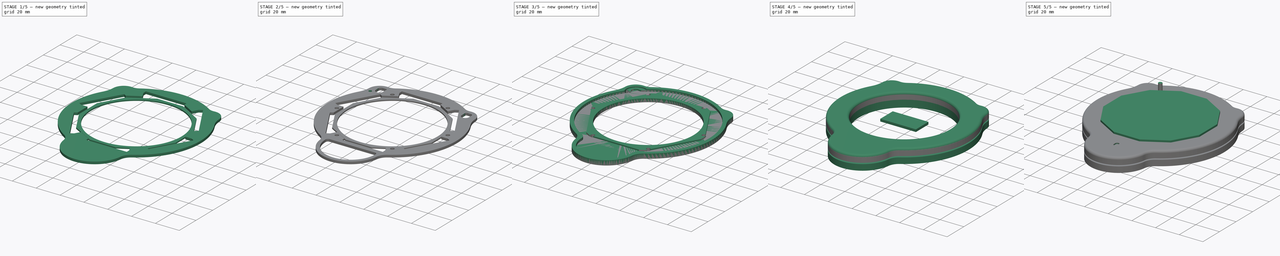
[diagram: build sequence overview — one tinted view per stage of 5, left to right]
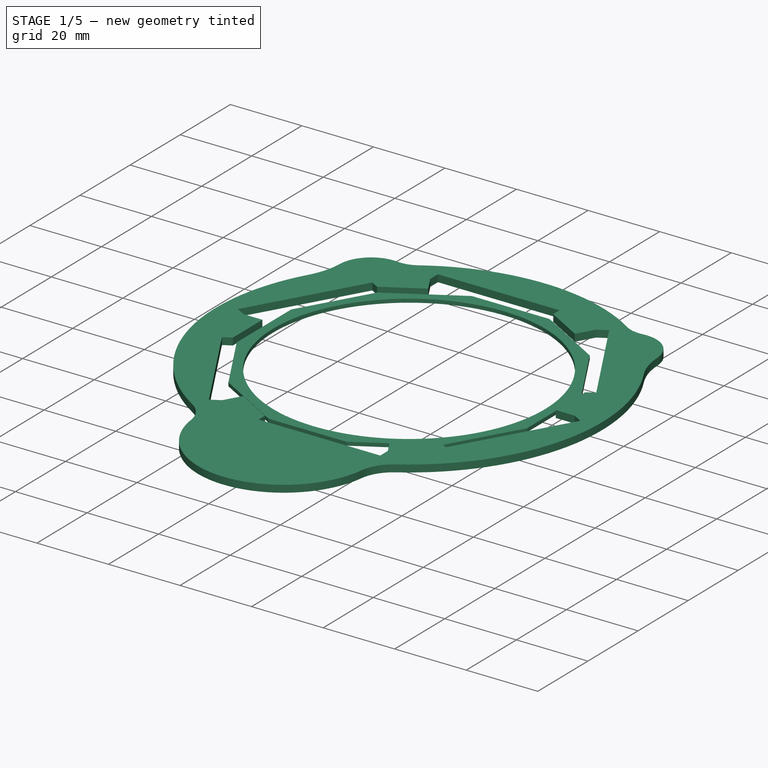
[diagram: stage 1 of 5 — iso view after this stage's code; geometry added in this stage tinted green]
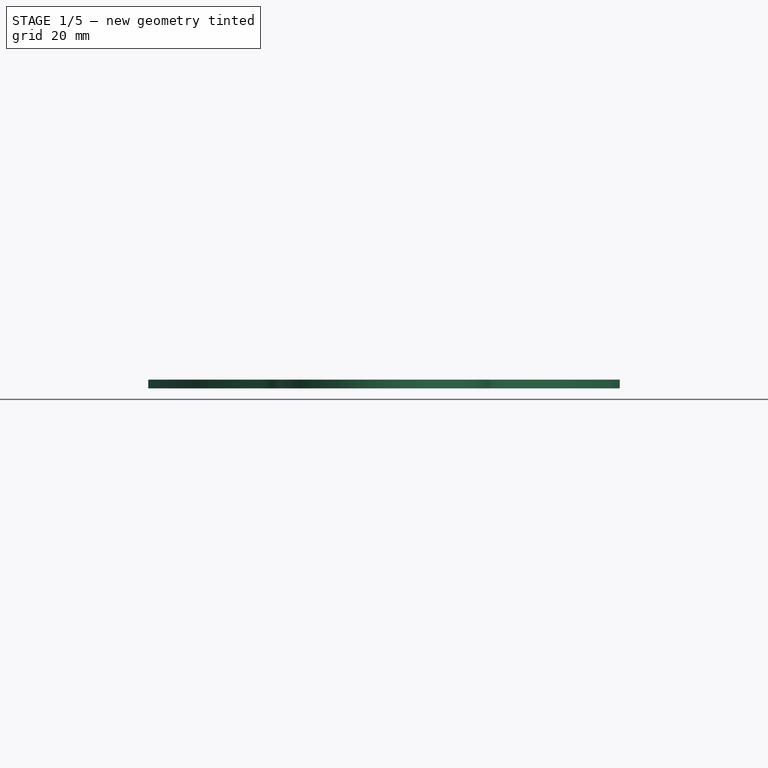
[diagram: stage 1 of 5 — front view after this stage's code; geometry added in this stage tinted green]
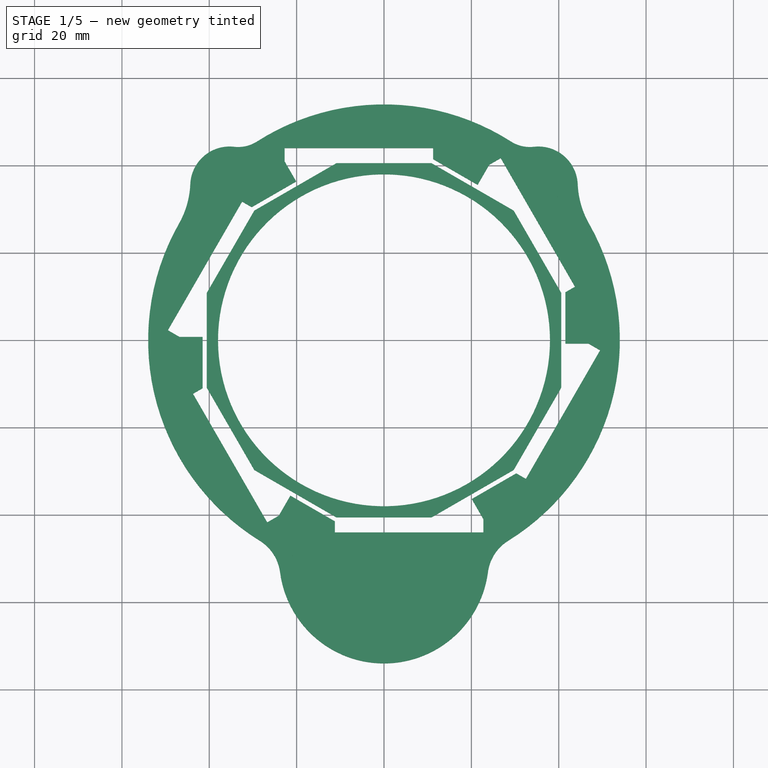
[diagram: stage 1 of 5 — top view after this stage's code; geometry added in this stage tinted green]
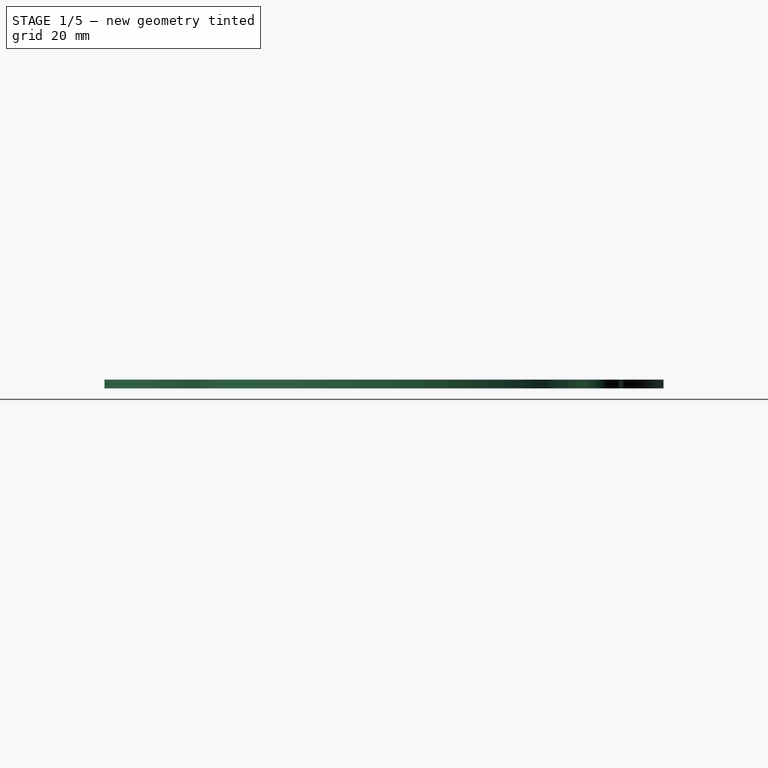
[diagram: stage 1 of 5 — right view after this stage's code; geometry added in this stage tinted green]
FCSTD DOCUMENT  (FreeCAD 0.18R15684 (Git))
Label: amulet
License: All rights reserved
LicenseURL: http://en.wikipedia.org/wiki/All_rights_reserved
objects: PartDesign::Pocket×67, PartDesign::Body×36, Sketcher::SketchObject×33, PartDesign::Pad×25, TechDraw::DrawSVGTemplate×20, TechDraw::DrawViewPart×20, TechDraw::DrawPage×20, PartDesign::PolarPattern×18, App::Part×15, PartDesign::Mirrored×15, PartDesign::FeatureBase×12, App::MeasureDistance×5, App::DocumentObjectGroup×4, Part::Feature×3, PartDesign::Fillet×2, Spreadsheet::Sheet×1, PartDesign::Hole×1, TechDraw::DrawViewSymbol×1
note: 305 computed .brp shape members not serialized (recipe doc carries the construction recipe); baked Part::Feature solids carry a one-line shape summary decoded from their .brp

FEATURE [PartDesign::Pad] Pad002
  Length = 2
  Length2 = 100
  Profile = -> Sketch
  Type = 0
  expr: Length = base_values.layer_thickness_alu
FEATURE [PartDesign::Body] Body014
  BaseFeature = -> COMPOUND176_copy_mp_cp001
  Group = -> [Clone018]
  Origin = -> Origin031
  Placement = pos=(0,44,0) rot=(0,1,0;3.14159rad)
  Tip = -> Clone018
  expr: Placement.Base.y = base_values.pcb_radius
FEATURE [App::Part] Part008  label="Clone_5"
  Group = -> [Body014]
  License = CC BY 3.0
  LicenseURL = http://creativecommons.org/licenses/by/3.0/
  Origin = -> Origin025
  Placement = pos=(0,0,0) rot=(0,0,1;5.23599rad)
FEATURE [App::Part] Part003  label="LEDBoard_4x4_HD"
  Group = -> [Body009,Part004,Part005,Part006,Part007,Part008,Part009]
  License = CC BY 3.0
  LicenseURL = http://creativecommons.org/licenses/by/3.0/
  Origin = -> Origin013
  Placement = pos=(0,0,4) rot=(0,0,1;0rad)
FEATURE [Sketcher::SketchObject] Sketch018  label="ledboard_minimal_cutout"
  MapMode = 5
  Support = -> [XY_Plane001]
  expr: Constraints[15] = 10.75 + base_values.tolerance
  expr: Constraints[9] = base_values.pcb_radius
  expr: Constraints[4] = 1.6000000000000001 + 0.94999999999999996 + base_values.tolerance
  expr: Constraints[5] = 33 + 2 * base_values.tolerance
  sketch-geometry (7):
    g0: LineSegment StartX=-22.75 StartY=44 StartZ=0 EndX=11.25 EndY=44 EndZ=0
    g1: LineSegment StartX=11.25 StartY=44 StartZ=0 EndX=11.25 EndY=40.95 EndZ=0
    g2: LineSegment StartX=11.25 StartY=40.95 StartZ=0 EndX=-10.75 EndY=40.95 EndZ=0
    g3: LineSegment [constr] StartX=0 StartY=44 StartZ=0 EndX=0 EndY=0 EndZ=0
    g4: LineSegment StartX=-10.75 StartY=40.95 StartZ=0 EndX=-19.75 EndY=35.7538 EndZ=0
    g5: LineSegment StartX=-22.75 StartY=40.95 StartZ=0 EndX=-22.75 EndY=44 EndZ=0
    g6: LineSegment StartX=-22.75 StartY=40.95 StartZ=0 EndX=-19.75 EndY=35.7538 EndZ=0
  constraints (22):
    c: Coincident(g0,g1)
    c: Horizontal(g0)
    c: Horizontal(g2)
    c: Vertical(g1)
    c: DistanceY(g2,g0) = 3.05
    c: DistanceX(g0,g0) = 34
    c: Vertical(g3)
    c: Coincident(g3,g-1)
    c: PointOnObject(g3,g0)
    c: DistanceY(g3,g3) = 44
    c: DistanceX(g0,g3) = 22.75
    c: DistanceX(g2,g2) = 22
    c: Coincident(g2,g4)
    c: Vertical(g5)
    c: Coincident(g5,g0)
    c: DistanceX(g3,g0) = 11.25
    c: Coincident(g1,g2)
    c: PointOnObject(g5,g2)
    c: Angle(g4,g2) = 2.61799
    c: Coincident(g6,g4)
    c: Perpendicular(g4,g6)
    c: Coincident(g6,g5)
FEATURE [Sketcher::SketchObject] Sketch019  label="inner_cutout_contour_Sketch"
  MapMode = 5
  Support = -> [XY_Plane001]
  expr: Constraints[38] = base_values.plexiglas_max_diameter / 2 + 2 * base_values.tolerance
  expr: Constraints[1] = base_values.plexiglas_min_diameter / 2
  sketch-geometry (14):
    g0: Circle [constr] CenterX=0 CenterY=0 CenterZ=0 NormalX=0 NormalY=0 NormalZ=1 AngleXU=0 Radius=40
    g1: LineSegment StartX=41.5348 StartY=-11.1292 StartZ=0 EndX=41.5348 EndY=11.1292 EndZ=0
    g2: LineSegment StartX=41.5348 StartY=11.1292 StartZ=0 EndX=30.4056 EndY=30.4056 EndZ=0
    g3: LineSegment StartX=30.4056 StartY=30.4056 StartZ=0 EndX=11.1292 EndY=41.5348 EndZ=0
    g4: LineSegment StartX=11.1292 StartY=41.5348 StartZ=0 EndX=-11.1292 EndY=41.5348 EndZ=0
    g5: LineSegment StartX=-11.1292 StartY=41.5348 StartZ=0 EndX=-30.4056 EndY=30.4056 EndZ=0
    g6: LineSegment StartX=-30.4056 StartY=30.4056 StartZ=0 EndX=-41.5348 EndY=11.1292 EndZ=0
    g7: LineSegment StartX=-41.5348 StartY=11.1292 StartZ=0 EndX=-41.5348 EndY=-11.1292 EndZ=0
    g8: LineSegment StartX=-41.5348 StartY=-11.1292 StartZ=0 EndX=-30.4056 EndY=-30.4056 EndZ=0
    g9: LineSegment StartX=-30.4056 StartY=-30.4056 StartZ=0 EndX=-11.1292 EndY=-41.5348 EndZ=0
    g10: LineSegment StartX=-11.1292 StartY=-41.5348 StartZ=0 EndX=11.1292 EndY=-41.5348 EndZ=0
    g11: LineSegment StartX=11.1292 StartY=-41.5348 StartZ=0 EndX=30.4056 EndY=-30.4056 EndZ=0
    g12: LineSegment StartX=30.4056 StartY=-30.4056 StartZ=0 EndX=41.5348 EndY=-11.1292 EndZ=0
    g13: Circle [constr] CenterX=0 CenterY=0 CenterZ=0 NormalX=0 NormalY=0 NormalZ=1 AngleXU=0 Radius=43
  constraints (31):
    c: Coincident(g0,g-1)
    c: Radius(g0) = 40
    c: Coincident(g1,g2)
    c: Coincident(g2,g3)
    c: Coincident(g3,g4)
    c: Coincident(g4,g5)
    c: Coincident(g5,g6)
    c: Coincident(g6,g7)
    c: Coincident(g7,g8)
    c: Coincident(g8,g9)
    c: Coincident(g9,g10)
    c: Coincident(g10,g11)
    c: Coincident(g11,g12)
    c: Coincident(g12,g1)
    c: Equal(g1, g2-g12) x11
    c: PointOnObject(g1,g13)
    c: PointOnObject(g2,g13)
    c: PointOnObject(g3,g13)
    c: PointOnObject(g4,g13)
    c: PointOnObject(g5,g13)
    c: PointOnObject(g6,g13)
    c: PointOnObject(g7,g13)
    c: PointOnObject(g8,g13)
    c: PointOnObject(g9,g13)
    c: PointOnObject(g10,g13)
    c: PointOnObject(g11,g13)
    c: PointOnObject(g12,g13)
    c: Horizontal(g4)
    c: Radius(g13) = 43
    c: Distance(g10) = 22.2584
    c: Coincident(g13,g-1)
FEATURE [PartDesign::Pocket] Pocket015
  BaseFeature = -> Pad002
  Length = 5
  Length2 = 100
  Profile = -> Sketch019
  Reversed = true
  Type = 1
FEATURE [PartDesign::Pocket] Pocket016
  BaseFeature = -> Pocket015
  Length = 5
  Length2 = 100
  Profile = -> Sketch018
  Reversed = true
  Type = 1
FEATURE [PartDesign::PolarPattern] PolarPattern
  Angle = 360
  Axis = -> Sketch018 [N_Axis]
  BaseFeature = -> Pocket016
  Occurrences = 6
  Originals = -> [Pocket016]
FEATURE [PartDesign::Pad] Pad009
  Length = 2
  Length2 = 100
  Profile = -> Sketch
  Type = 0
  expr: Length = base_values.layer_thickness_alu
FEATURE [PartDesign::Pocket] Pocket022
  BaseFeature = -> Pad009
  Length = 5
  Length2 = 100
  Profile = -> Sketch019
  Reversed = true
  Type = 1
FEATURE [PartDesign::Pocket] Pocket023
  BaseFeature = -> Pocket022
  Length = 5
  Length2 = 100
  Profile = -> Sketch018
  Reversed = true
  Type = 1
FEATURE [PartDesign::PolarPattern] PolarPattern007
  Angle = 360
  Axis = -> Sketch018 [N_Axis]
  BaseFeature = -> Pocket023
  Occurrences = 6
  Originals = -> [Pocket023]
FEATURE [PartDesign::Pocket] Pocket024
  BaseFeature = -> PolarPattern007
  Length = 5
  Length2 = 100
  Profile = -> Sketch004
  Reversed = true
  Type = 1
FEATURE [PartDesign::PolarPattern] PolarPattern008
  Angle = 360
  Axis = -> Sketch004 [N_Axis]
  BaseFeature = -> Pocket024
  Occurrences = 6
  Originals = -> [Pocket024]
FEATURE [PartDesign::Pad] Pad010
  Length = 2
  Length2 = 100
  Profile = -> Sketch
  Type = 0
  expr: Length = base_values.layer_thickness_alu
FEATURE [PartDesign::Pocket] Pocket025
  BaseFeature = -> Pad010
  Length = 5
  Length2 = 100
  Profile = -> Sketch019
  Reversed = true
  Type = 1
FEATURE [PartDesign::Pocket] Pocket026
  BaseFeature = -> Pocket025
  Length = 5
  Length2 = 100
  Profile = -> Sketch018
  Reversed = true
  Type = 1
FEATURE [PartDesign::PolarPattern] PolarPattern009
  Angle = 360
  Axis = -> Sketch018 [N_Axis]
  BaseFeature = -> Pocket026
  Occurrences = 6
  Originals = -> [Pocket026]
FEATURE [PartDesign::Pocket] Pocket027
  BaseFeature = -> PolarPattern009
  Length = 5
  Length2 = 100
  Profile = -> Sketch004
  Reversed = true
  Type = 1
FEATURE [PartDesign::PolarPattern] PolarPattern010
  Angle = 360
  Axis = -> Sketch004 [N_Axis]
  BaseFeature = -> Pocket027
  Occurrences = 6
  Originals = -> [Pocket027]
FEATURE [PartDesign::Pocket] Pocket037
  BaseFeature = -> PolarPattern008
  Length = 5
  Length2 = 100
  Profile = -> Sketch024
  Reversed = true
  Type = 1
FEATURE [PartDesign::Mirrored] Mirrored004
  BaseFeature = -> Pocket037
  MirrorPlane = -> Sketch024 [V_Axis]
  Originals = -> [Pocket037]
FEATURE [PartDesign::Pocket] Pocket038
  BaseFeature = -> PolarPattern010
  Length = 5
  Length2 = 100
  Profile = -> Sketch024
  Reversed = true
  Type = 1
FEATURE [PartDesign::Mirrored] Mirrored005
  BaseFeature = -> Pocket038
  MirrorPlane = -> Sketch024 [V_Axis]
  Originals = -> [Pocket038]
FEATURE [PartDesign::Pocket] Pocket045
  BaseFeature = -> Mirrored004
  Length = 5
  Length2 = 100
  Profile = -> Sketch009
  Reversed = true
  Type = 1
FEATURE [PartDesign::Body] Body001  label="back_Body"
  Group = -> [Pad,Pocket,Hole,PolarPattern001,Pocket013,Pocket028,Pocket046,Pocket049,Mirrored006]
  Origin = -> Origin002
  Tip = -> Mirrored006
FEATURE [TechDraw::DrawViewPart] View003
  CoarseView = false
  Direction = (0,0,1)
  Focus = 100
  HardHidden = false
  IsoCount = 0
  IsoHidden = false
  IsoVisible = false
  LockPosition = false
  Perspective = false
  Rotation = 0
  ScaleType = 0
  SeamHidden = false
  SeamVisible = false
  SmoothHidden = false
  SmoothVisible = false
  Source = -> [Body001]
  X = 148.5
  Y = 105
FEATURE [TechDraw::DrawPage] Page003  label="back_Page"
  KeepUpdated = true
  ProjectionType = 0
  Template = -> Template003
  Views = -> [View003]
FEATURE [TechDraw::DrawSVGTemplate] Template007
  Height = 210
  Orientation = 1
  Width = 297
FEATURE [TechDraw::DrawSVGTemplate] Template008
  Height = 210
  Orientation = 1
  Width = 297
FEATURE [TechDraw::DrawSVGTemplate] Template009
  Height = 210
  Orientation = 1
  Width = 297
FEATURE [TechDraw::DrawViewPart] View010
  CoarseView = false
  Direction = (0,0,1)
  Focus = 100
  HardHidden = false
  IsoCount = 0
  IsoHidden = false
  IsoVisible = false
  LockPosition = false
  Perspective = false
  Rotation = 0
  ScaleType = 0
  SeamHidden = false
  SeamVisible = false
  SmoothHidden = false
  SmoothVisible = false
  Source = -> [Pad007]
  X = 148.5
  Y = 105
FEATURE [TechDraw::DrawPage] Page007  label="paper_separator_Page"
  KeepUpdated = true
  ProjectionType = 0
  Template = -> Template007
  Views = -> [View010]
FEATURE [PartDesign::Pocket] Pocket050
  BaseFeature = -> Mirrored005
  Length = 5
  Length2 = 100
  Profile = -> Sketch009
  Reversed = true
  Type = 1
FEATURE [PartDesign::Body] Body003  label="alu_layer_2_front_Body"
  Group = -> [Pad002,Pocket015,Pocket016,PolarPattern,Pocket034,PolarPattern012,Pocket036,Mirrored003,Pocket008,Pocket075,Mirrored014]
  Origin = -> Origin004
  Placement = pos=(0,0,3) rot=(0,0,1;0rad)
  Tip = -> Mirrored014
FEATURE [TechDraw::DrawViewPart] View
  CoarseView = false
  Direction = (0,0,1)
  Focus = 100
  HardHidden = false
  IsoCount = 0
  IsoHidden = false
  IsoVisible = false
  LockPosition = false
  Perspective = false
  Rotation = 0
  ScaleType = 0
  SeamHidden = false
  SeamVisible = false
  SmoothHidden = false
  SmoothVisible = false
  Source = -> [Body003]
  X = 148.5
  Y = 105
FEATURE [TechDraw::DrawPage] Page  label="alu_layer_2_Page"
  KeepUpdated = true
  ProjectionType = 0
  Template = -> Template
  Views = -> [View]
FEATURE [PartDesign::Pocket] Pocket077
  BaseFeature = -> Pocket045
  Length = 5
  Length2 = 100
  Profile = -> Sketch244
  Reversed = true
  Type = 1
FEATURE [PartDesign::Mirrored] Mirrored016
  BaseFeature = -> Pocket077
  MirrorPlane = -> Sketch244 [V_Axis]
  Originals = -> [Pocket077]
FEATURE [PartDesign::Body] Body021  label="alu_layer_1_Body"
  Group = -> [Pad009,Pocket022,Pocket023,PolarPattern007,Pocket024,PolarPattern008,Pocket037,Mirrored004,Pocket045,Pocket077,Mirrored016]
  Origin = -> Origin042
  Placement = pos=(0,0,5) rot=(0,0,1;0rad)
  Tip = -> Mirrored016
FEATURE [TechDraw::DrawViewPart] View013
  CoarseView = false
  Direction = (0,0,1)
  Focus = 100
  HardHidden = false
  IsoCount = 0
  IsoHidden = false
  IsoVisible = false
  LockPosition = false
  Perspective = false
  Rotation = 0
  ScaleType = 0
  SeamHidden = false
  SeamVisible = false
  SmoothHidden = false
  SmoothVisible = false
  Source = -> [Body021]
  X = 148.5
  Y = 105
FEATURE [TechDraw::DrawPage] Page009  label="alu_layer_1_Page"
  KeepUpdated = true
  ProjectionType = 0
  Template = -> Template009
  Views = -> [View013]
FEATURE [PartDesign::Pocket] Pocket078
  BaseFeature = -> Pocket050
  Length = 5
  Length2 = 100
  Profile = -> Sketch244
  Reversed = true
  Type = 1
FEATURE [PartDesign::Mirrored] Mirrored017
  BaseFeature = -> Pocket078
  MirrorPlane = -> Sketch244 [V_Axis]
  Originals = -> [Pocket078]
FEATURE [PartDesign::Body] Body022  label="alu_layer_0_Body"
  Group = -> [Pad010,Pocket025,Pocket026,PolarPattern009,Pocket027,PolarPattern010,Pocket038,Mirrored005,Pocket050,Pocket078,Mirrored017]
  Origin = -> Origin043
  Placement = pos=(0,0,7) rot=(0,0,1;0rad)
  Tip = -> Mirrored017
FEATURE [App::Part] Part012  label="alu_layers"
  Group = -> [Body020,Body004,Body003,Body021,Body022]
  Origin = -> Origin041
FEATURE [TechDraw::DrawViewPart] View012
  CoarseView = false
  Direction = (0,0,1)
  Focus = 100
  HardHidden = false
  IsoCount = 0
  IsoHidden = false
  IsoVisible = false
  LockPosition = false
  Perspective = false
  Rotation = 0
  ScaleType = 0
  SeamHidden = false
  SeamVisible = false
  SmoothHidden = false
  SmoothVisible = false
  Source = -> [Body022]
  X = 148.5
  Y = 105
FEATURE [TechDraw::DrawPage] Page010  label="alu_layer_0_Page"
  KeepUpdated = true
  ProjectionType = 0
  Template = -> Template010
  Views = -> [View012]
FEATURE [PartDesign::Pad] Pad026
  Length = 1
  Length2 = 100
  Profile = -> Sketch035
  Type = 0
FEATURE [PartDesign::Pocket] Pocket079
  BaseFeature = -> Pad026
  Length = 5
  Length2 = 100
  Profile = -> Sketch001
  Reversed = true
  Type = 1
FEATURE [PartDesign::Body] Body036  label="back_layer_1_Body"
  Group = -> [Pad026,Pocket079]
  Origin = -> Origin063
  Placement = pos=(0,0,-1) rot=(0,0,1;0rad)
  Tip = -> Pocket079
FEATURE [App::Part] Part015  label="back_layers"
  Group = -> [Body033,Body034,Body035,Body036]
  Origin = -> Origin052
FEATURE [TechDraw::DrawSVGTemplate] Template019
  Height = 210
  Orientation = 1
  Width = 297
FEATURE [TechDraw::DrawViewPart] View022
  CoarseView = false
  Direction = (0,0,1)
  Focus = 100
  HardHidden = false
  IsoCount = 0
  IsoHidden = false
  IsoVisible = false
  LockPosition = false
  Perspective = false
  Rotation = 0
  ScaleType = 0
  SeamHidden = false
  SeamVisible = false
  SmoothHidden = false
  SmoothVisible = false
  Source = -> [Body036]
  X = 148.5
  Y = 105
FEATURE [TechDraw::DrawPage] Page019  label="back_layer_1_Page"
  KeepUpdated = true
  ProjectionType = 0
  Template = -> Template019
  Views = -> [View022]
FEATURE [App::DocumentObjectGroup] Group003  label="export_back_layers"
  Group = -> [Page016,Page017,Page018,Page019]
FEATURE [App::DocumentObjectGroup] Group  label="drawing_export"
  Group = -> [Page,Page001,Page002,Page003,Page004,Page005,Page007,Page008,Page009,Page010,Group002,Group003]
FEATURE [App::Part] Part  label="amulet"
  Group = -> [Body,Spreadsheet,Group,Template,Page,Template001,Page001,Template002,Page002,Template003,Page003,Template004,Page004,Template005,Page005,Part010,Part011,Part012,Template007,Page007,Template008,Page008,Template009,Page009,Template010,Page010,Part014,Part015,View016,View017,View018,Page014,Page011,Template013,Template011,Page015,Page012,Page013,Template015,Template014,View015,View014,Template012,+17 more]
  License = CC BY 3.0
  LicenseURL = http://creativecommons.org/licenses/by/3.0/
  Origin = -> Origin
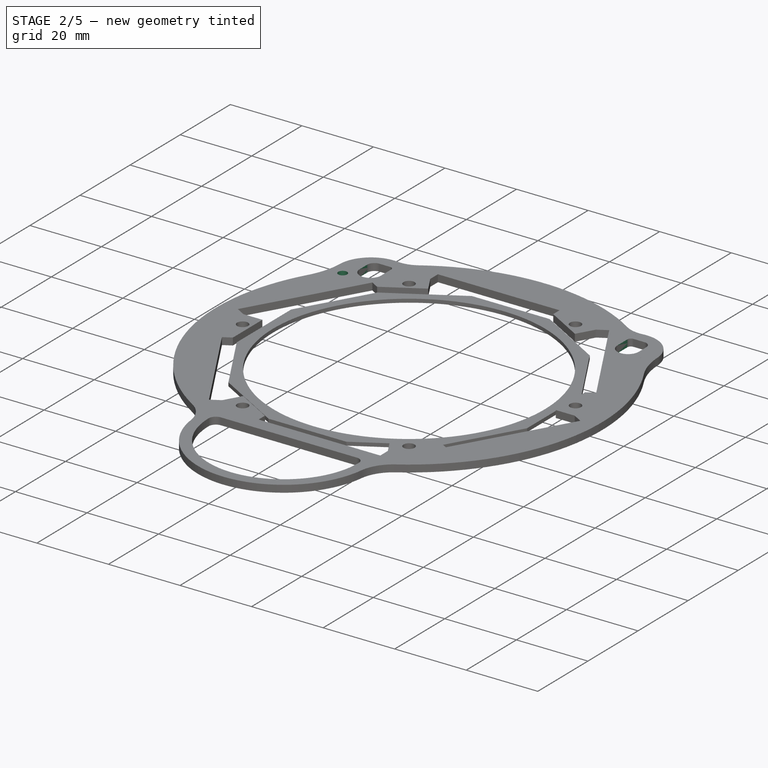
[diagram: stage 2 of 5 — iso view after this stage's code; geometry added in this stage tinted green]
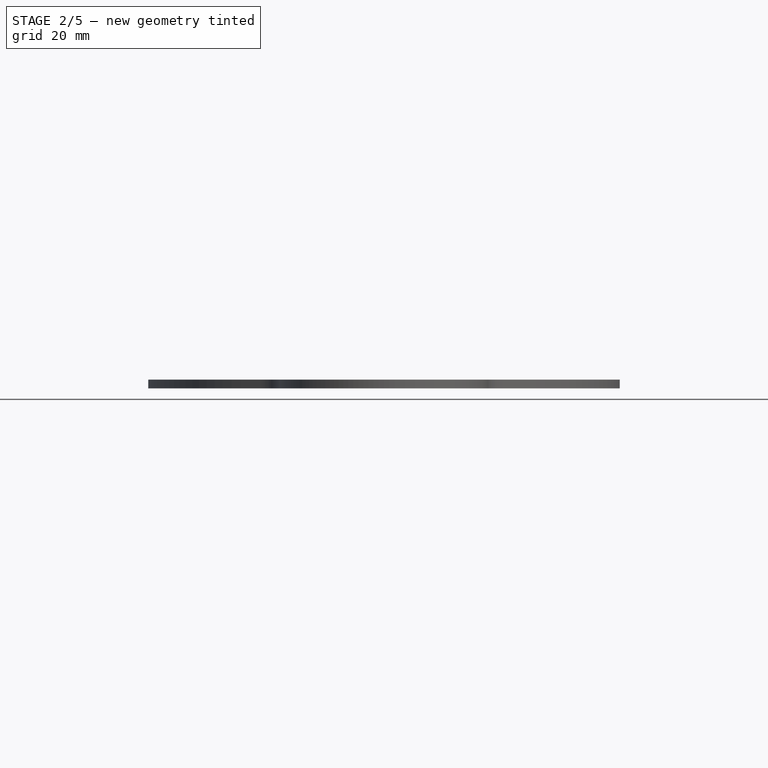
[diagram: stage 2 of 5 — front view after this stage's code; geometry added in this stage tinted green]
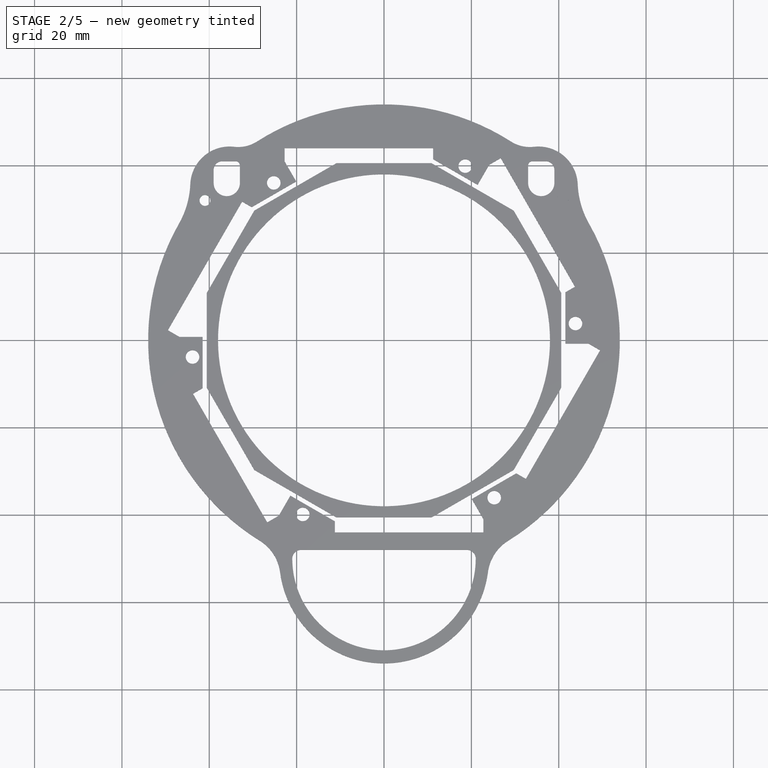
[diagram: stage 2 of 5 — top view after this stage's code; geometry added in this stage tinted green]
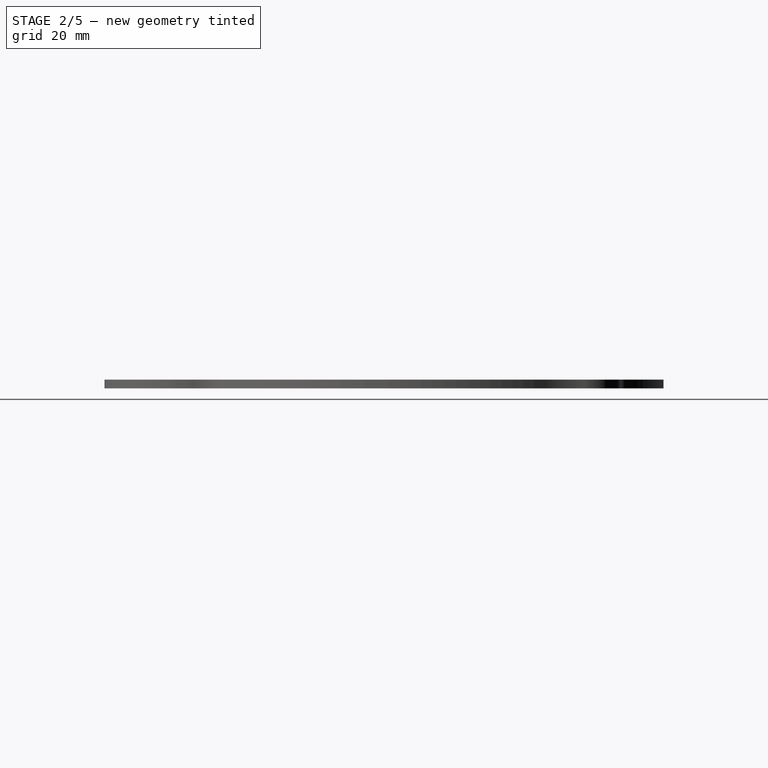
[diagram: stage 2 of 5 — right view after this stage's code; geometry added in this stage tinted green]
FEATURE [PartDesign::Pad] Pad003
  Length = 2
  Length2 = 100
  Profile = -> Sketch
  Type = 0
  expr: Length = base_values.layer_thickness_alu
FEATURE [PartDesign::Pocket] Pocket018
  BaseFeature = -> Pad003
  Length = 5
  Length2 = 100
  Profile = -> Sketch019
  Reversed = true
  Type = 1
FEATURE [PartDesign::Pocket] Pocket017
  BaseFeature = -> Pocket018
  Length = 5
  Length2 = 100
  Profile = -> Sketch018
  Reversed = true
  Type = 1
FEATURE [PartDesign::PolarPattern] PolarPattern003
  Angle = 360
  Axis = -> Sketch018 [N_Axis]
  BaseFeature = -> Pocket017
  Occurrences = 6
  Originals = -> [Pocket017]
FEATURE [PartDesign::Pocket] Pocket005
  BaseFeature = -> PolarPattern003
  Length = 5
  Length2 = 100
  Profile = -> Sketch004
  Reversed = true
  Type = 1
FEATURE [PartDesign::PolarPattern] PolarPattern004
  Angle = 360
  Axis = -> Sketch004 [N_Axis]
  BaseFeature = -> Pocket005
  Occurrences = 6
  Originals = -> [Pocket005]
FEATURE [PartDesign::Pocket] Pocket007
  BaseFeature = -> PolarPattern004
  Length = 5
  Length2 = 100
  Profile = -> Sketch009
  Reversed = true
  Type = 1
FEATURE [PartDesign::Pocket] Pocket011
  BaseFeature = -> Pocket007
  Length = 0.5
  Length2 = 2
  Midplane = true
  Profile = -> Sketch012
  Reversed = true
  Type = 1
FEATURE [PartDesign::Mirrored] Mirrored
  BaseFeature = -> Pocket011
  MirrorPlane = -> Sketch012 [V_Axis]
  Originals = -> [Pocket011]
FEATURE [PartDesign::Pad] Pad008
  Length = 2
  Length2 = 100
  Profile = -> Sketch
  Type = 0
  expr: Length = base_values.layer_thickness_alu
FEATURE [PartDesign::Pocket] Pocket019
  BaseFeature = -> Pad008
  Length = 5
  Length2 = 100
  Profile = -> Sketch019
  Reversed = true
  Type = 1
FEATURE [PartDesign::Pocket] Pocket020
  BaseFeature = -> Pocket019
  Length = 5
  Length2 = 100
  Profile = -> Sketch018
  Reversed = true
  Type = 1
FEATURE [PartDesign::PolarPattern] PolarPattern005
  Angle = 360
  Axis = -> Sketch018 [N_Axis]
  BaseFeature = -> Pocket020
  Occurrences = 6
  Originals = -> [Pocket020]
FEATURE [PartDesign::Pocket] Pocket021
  BaseFeature = -> PolarPattern005
  Length = 5
  Length2 = 100
  Profile = -> Sketch004
  Reversed = true
  Type = 1
FEATURE [PartDesign::PolarPattern] PolarPattern006
  Angle = 360
  Axis = -> Sketch004 [N_Axis]
  BaseFeature = -> Pocket021
  Occurrences = 6
  Originals = -> [Pocket021]
FEATURE [Sketcher::SketchObject] Sketch022  label="electronic_top_pocket_Sketch"
  MapMode = 5
  Support = -> [XY_Plane001]
  expr: Constraints[22] = base_values.pcb_radius + 2
  expr: Constraints[19] = base_values.pcb_radius + 2
  expr: Constraints[26] = base_values.pcb_radius - 3
  expr: Constraints[0] = base_values.inner_cutout_diameter / 2
  sketch-geometry (17):
    g0: Circle CenterX=0 CenterY=0 CenterZ=0 NormalX=0 NormalY=0 NormalZ=1 AngleXU=0 Radius=51
    g1: LineSegment StartX=20.8567 StartY=41 StartZ=0 EndX=-20.8567 EndY=41 EndZ=0
    g2: LineSegment StartX=-20.8567 StartY=41 StartZ=0 EndX=-25.0787 EndY=38.5624 EndZ=0
    g3: LineSegment StartX=-25.0787 StartY=38.5624 StartZ=0 EndX=-45.9354 EndY=2.43761 EndZ=0
    g4: LineSegment StartX=-45.9354 StartY=2.43761 StartZ=0 EndX=-45.9354 EndY=-2.43761 EndZ=0
    g5: LineSegment StartX=-45.9354 StartY=-2.43761 StartZ=0 EndX=-25.0787 EndY=-38.5624 EndZ=0
    g6: LineSegment StartX=-25.0787 StartY=-38.5624 StartZ=0 EndX=-20.8567 EndY=-41 EndZ=0
    g7: LineSegment StartX=-20.8567 StartY=-41 StartZ=0 EndX=20.8567 EndY=-41 EndZ=0
    g8: LineSegment StartX=20.8567 StartY=-41 StartZ=0 EndX=25.0787 EndY=-38.5624 EndZ=0
    g9: LineSegment StartX=25.0787 StartY=-38.5624 StartZ=0 EndX=45.9354 EndY=-2.43761 EndZ=0
    g10: LineSegment StartX=45.9354 StartY=-2.43761 StartZ=0 EndX=45.9354 EndY=2.43761 EndZ=0
    g11: LineSegment StartX=45.9354 StartY=2.43761 StartZ=0 EndX=25.0787 EndY=38.5624 EndZ=0
    g12: LineSegment StartX=25.0787 StartY=38.5624 StartZ=0 EndX=20.8567 EndY=41 EndZ=0
    g13: Circle [constr] CenterX=0 CenterY=0 CenterZ=0 NormalX=0 NormalY=0 NormalZ=1 AngleXU=0 Radius=46
    g14: Circle [constr] CenterX=0 CenterY=0 CenterZ=0 NormalX=0 NormalY=0 NormalZ=1 AngleXU=0 Radius=46
    g15: LineSegment [constr] StartX=0 StartY=0 StartZ=0 EndX=0 EndY=41 EndZ=0
    g16: LineSegment [constr] StartX=-23.1237 StartY=45.4565 StartZ=0 EndX=-20.8567 EndY=41 EndZ=0
  constraints (49):
    c: Radius(g0) = 51
    c: Horizontal(g1)
    c: Coincident(g1,g2)
    c: Coincident(g2,g3)
    c: Coincident(g3,g4)
    c: Coincident(g4,g5)
    c: Coincident(g5,g6)
    c: Coincident(g6,g7)
    c: Horizontal(g7)
    c: Coincident(g7,g8)
    c: Coincident(g8,g9)
    c: Coincident(g9,g10)
    c: Coincident(g10,g11)
    c: Coincident(g11,g12)
    c: Coincident(g12,g1)
    c: Coincident(g13,g0)
    c: PointOnObject(g1,g13)
    c: PointOnObject(g2,g13)
    c: Coincident(g0,g-1)
    c: Radius(g13) = 46
    c: Coincident(g14,g0)
    c: PointOnObject(g1,g14)
    c: Radius(g14) = 46
    c: Coincident(g15,g0)
    c: Vertical(g15)
    c: PointOnObject(g15,g1)
    c: DistanceY(g15,g15) = 41
    c: Equal(g1,g3)
    c: Equal(g3,g5)
    c: Equal(g5,g7)
    c: Equal(g7,g9)
    c: Equal(g9,g11)
    c: PointOnObject(g11,g14)
    c: PointOnObject(g10,g13)
    c: PointOnObject(g9,g14)
    c: PointOnObject(g8,g13)
    c: PointOnObject(g7,g14)
    c: PointOnObject(g6,g13)
    c: PointOnObject(g5,g14)
    c: PointOnObject(g4,g13)
    c: PointOnObject(g3,g14)
    c: Equal(g2,g4)
    c: Equal(g4,g6)
    c: Equal(g6,g8)
    c: Equal(g8,g10)
    c: PointOnObject(g16,g0)
    c: Perpendicular(g16,g0,g16) = 4.71239
    c: Coincident(g16,g1)
    c: Distance(g16) = 5
FEATURE [PartDesign::Pocket] Pocket034
  BaseFeature = -> PolarPattern
  Length = 5
  Length2 = 100
  Profile = -> Sketch004
  Reversed = true
  Type = 1
FEATURE [PartDesign::PolarPattern] PolarPattern012
  Angle = 360
  Axis = -> Sketch004 [N_Axis]
  BaseFeature = -> Pocket034
  Occurrences = 6
  Originals = -> [Pocket034]
FEATURE [Sketcher::SketchObject] Sketch024  label="rope_feedthrough_cutout_Sketch"
  MapMode = 5
  Support = -> [XY_Plane001]
  sketch-geometry (7):
    g0: LineSegment StartX=-37 StartY=41 StartZ=0 EndX=-34 EndY=41 EndZ=0
    g1: LineSegment StartX=-33 StartY=40 StartZ=0 EndX=-33 EndY=36 EndZ=0
    g2: LineSegment [constr] StartX=-33 StartY=36 StartZ=0 EndX=-39 EndY=36 EndZ=0
    g3: LineSegment StartX=-39 StartY=36 StartZ=0 EndX=-39 EndY=39 EndZ=0
    g4: ArcOfCircle CenterX=-36 CenterY=36 CenterZ=0 NormalX=0 NormalY=0 NormalZ=1 AngleXU=0 Radius=3 StartAngle=3.14159 EndAngle=6.28319
    g5: ArcOfCircle CenterX=-37 CenterY=39 CenterZ=0 NormalX=0 NormalY=0 NormalZ=1 AngleXU=0 Radius=2 StartAngle=1.5708 EndAngle=3.14159
    g6: ArcOfCircle CenterX=-34 CenterY=40 CenterZ=0 NormalX=0 NormalY=0 NormalZ=1 AngleXU=0 Radius=1 StartAngle=0 EndAngle=1.5708
  constraints (17):
    c: Coincident(g2,g3)
    c: Coincident(g1,g2)
    c: Perpendicular(g3,g0)
    c: Perpendicular(g0,g1)
    c: Tangent(g4,g1) = 1.5708
    c: Tangent(g4,g3) = 1.5708
    c: Vertical(g1)
    c: DistanceX(g4) = -36
    c: DistanceY(g4) = 36
    c: Tangent(g0,g5) = 1.5708
    c: Tangent(g3,g5) = 1.5708
    c: Distance(g3,g1) = 6
    c: Radius(g5) = 2
    c: Tangent(g0,g6) = 1.5708
    c: Tangent(g1,g6) = 1.5708
    c: DistanceY(g1,g0) = 5
    c: Radius(g6) = 1
FEATURE [PartDesign::Pocket] Pocket035
  BaseFeature = -> PolarPattern006
  Length = 5
  Length2 = 100
  Profile = -> Sketch012
  Reversed = true
  Type = 1
FEATURE [PartDesign::Mirrored] Mirrored002
  BaseFeature = -> Pocket035
  MirrorPlane = -> Sketch012 [V_Axis]
  Originals = -> [Pocket035]
FEATURE [PartDesign::Pocket] Pocket036
  BaseFeature = -> PolarPattern012
  Length = 5
  Length2 = 100
  Profile = -> Sketch024
  Reversed = true
  Type = 1
FEATURE [PartDesign::Mirrored] Mirrored003
  BaseFeature = -> Pocket036
  MirrorPlane = -> Sketch024 [V_Axis]
  Originals = -> [Pocket036]
FEATURE [PartDesign::Pocket] Pocket008
  BaseFeature = -> Mirrored003
  Length = 5
  Length2 = 100
  Profile = -> Sketch009
  Reversed = true
  Type = 1
FEATURE [PartDesign::Pocket] Pocket044
  BaseFeature = -> Mirrored002
  Length = 5
  Length2 = 100
  Profile = -> Sketch009
  Reversed = true
  Type = 1
FEATURE [PartDesign::Body] Body034  label="back_layer_0_out_Body"
  Group = -> [Pad024,Pocket065,Pocket066,Pocket071,Mirrored010,Pocket072,Mirrored011]
  Origin = -> Origin060
  Placement = pos=(0,0,-4) rot=(0,0,1;0rad)
  Tip = -> Mirrored011
FEATURE [TechDraw::DrawViewPart] View020
  CoarseView = false
  Direction = (0,0,1)
  Focus = 100
  HardHidden = false
  IsoCount = 0
  IsoHidden = false
  IsoVisible = false
  LockPosition = false
  Perspective = false
  Rotation = 0
  ScaleType = 0
  SeamHidden = false
  SeamVisible = false
  SmoothHidden = false
  SmoothVisible = false
  Source = -> [Body034]
  X = 148.5
  Y = 105
FEATURE [TechDraw::DrawPage] Page017  label="back_layer_0_out_Page"
  KeepUpdated = true
  ProjectionType = 0
  Template = -> Template017
  Views = -> [View020]
FEATURE [PartDesign::Pocket] Pocket073
  BaseFeature = -> Pocket044
  Length = 5
  Length2 = 100
  Profile = -> Sketch244
  Reversed = true
  Type = 1
FEATURE [PartDesign::Body] Body020  label="alu_layer_4_back_Body"
  Group = -> [Pad008,Pocket019,Pocket020,PolarPattern005,Pocket021,PolarPattern006,Pocket035,Mirrored002,Pocket044,Pocket073,Mirrored012]
  Origin = -> Origin040
  Placement = pos=(0,0,-1) rot=(0,0,1;0rad)
  Tip = -> Mirrored012
FEATURE [TechDraw::DrawViewPart] View011
  CoarseView = false
  Direction = (0,0,1)
  Focus = 100
  HardHidden = false
  IsoCount = 0
  IsoHidden = false
  IsoVisible = false
  LockPosition = false
  Perspective = false
  Rotation = 0
  ScaleType = 0
  SeamHidden = false
  SeamVisible = false
  SmoothHidden = false
  SmoothVisible = false
  Source = -> [Body020]
  X = 148.5
  Y = 105
FEATURE [TechDraw::DrawPage] Page008  label="alu_layer_4_Page"
  KeepUpdated = true
  ProjectionType = 0
  Template = -> Template008
  Views = -> [View011]
FEATURE [PartDesign::Pocket] Pocket074
  BaseFeature = -> Mirrored
  Length = 5
  Length2 = 100
  Profile = -> Sketch244
  Reversed = true
  Type = 1
FEATURE [PartDesign::Mirrored] Mirrored013
  BaseFeature = -> Pocket074
  MirrorPlane = -> Sketch244 [V_Axis]
  Originals = -> [Pocket074]
FEATURE [PartDesign::Body] Body004  label="alu_layer_3_Body"
  Group = -> [Pad003,Pocket018,Pocket017,PolarPattern003,Pocket005,PolarPattern004,Pocket007,Pocket011,Mirrored,Pocket074,Mirrored013]
  Origin = -> Origin005
  Placement = pos=(0,0,1) rot=(0,0,1;0rad)
  Tip = -> Mirrored013
FEATURE [TechDraw::DrawViewPart] View008
  CoarseView = false
  Direction = (0,0,1)
  Focus = 100
  HardHidden = false
  IsoCount = 0
  IsoHidden = false
  IsoVisible = false
  LockPosition = false
  Perspective = false
  Rotation = 0
  ScaleType = 0
  SeamHidden = false
  SeamVisible = false
  SmoothHidden = false
  SmoothVisible = false
  Source = -> [Body004]
  X = 148.5
  Y = 105
FEATURE [TechDraw::DrawPage] Page001  label="alu_layer_3_Page"
  KeepUpdated = true
  ProjectionType = 0
  Template = -> Template001
  Views = -> [View008]
FEATURE [Sketcher::SketchObject] Sketch246  label="rope_clamp_screw_thread_Sketch"
  MapMode = 5
  Support = -> [XY_Plane001]
  sketch-geometry (2):
    g0: Circle CenterX=-40.9766 CenterY=32.0144 CenterZ=0 NormalX=0 NormalY=0 NormalZ=1 AngleXU=0 Radius=1.25
    g1: LineSegment [constr] StartX=-40.9766 StartY=32.0144 StartZ=0 EndX=0 EndY=0 EndZ=0
  constraints (5):
    c: Diameter(g0) = 2.5
    c: Coincident(g1,g0)
    c: Coincident(g1,g-1)
    c: Angle(g-2,g1) = 0.907571
    c: Distance(g1) = 52
FEATURE [PartDesign::Body] Body  label="base_Body"
  Group = -> [Sketch,Sketch001,Sketch002,Sketch004,Sketch006,Sketch009,Sketch010,Sketch011,Sketch012,Sketch015,Sketch016,Sketch018,Sketch019,Sketch020,Sketch021,Sketch022,Sketch024,Sketch025,Sketch028,Sketch029,Sketch032,Sketch033,Sketch034,Sketch035,Sketch244,Sketch245,Sketch246]
  Origin = -> Origin001
FEATURE [PartDesign::Pocket] Pocket075
  BaseFeature = -> Pocket008
  Length = 5
  Length2 = 100
  Profile = -> Sketch246
  Reversed = true
  Type = 1
FEATURE [PartDesign::Mirrored] Mirrored014
  BaseFeature = -> Pocket075
  MirrorPlane = -> Sketch246 [V_Axis]
  Originals = -> [Pocket075]
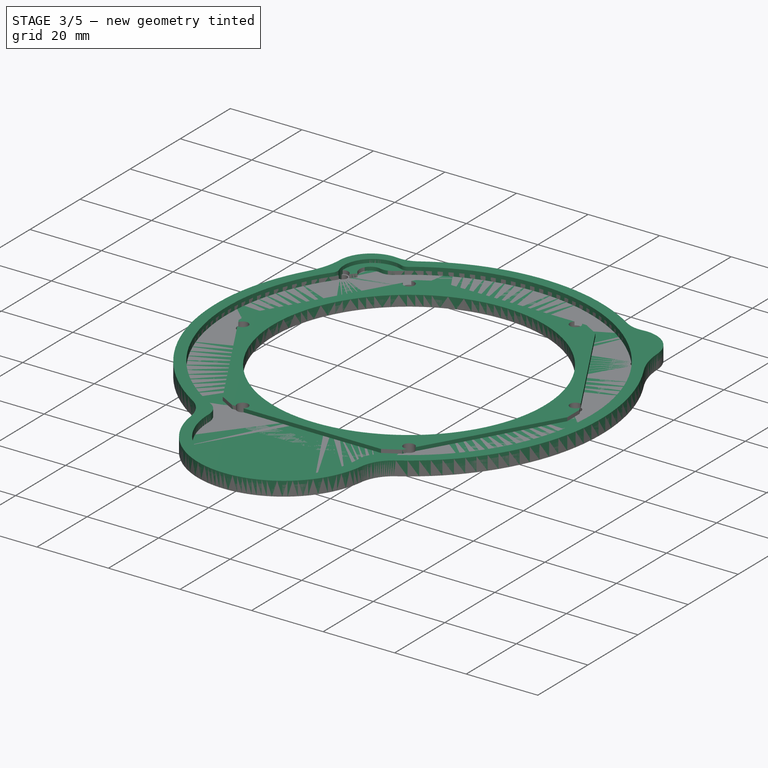
[diagram: stage 3 of 5 — iso view after this stage's code; geometry added in this stage tinted green]
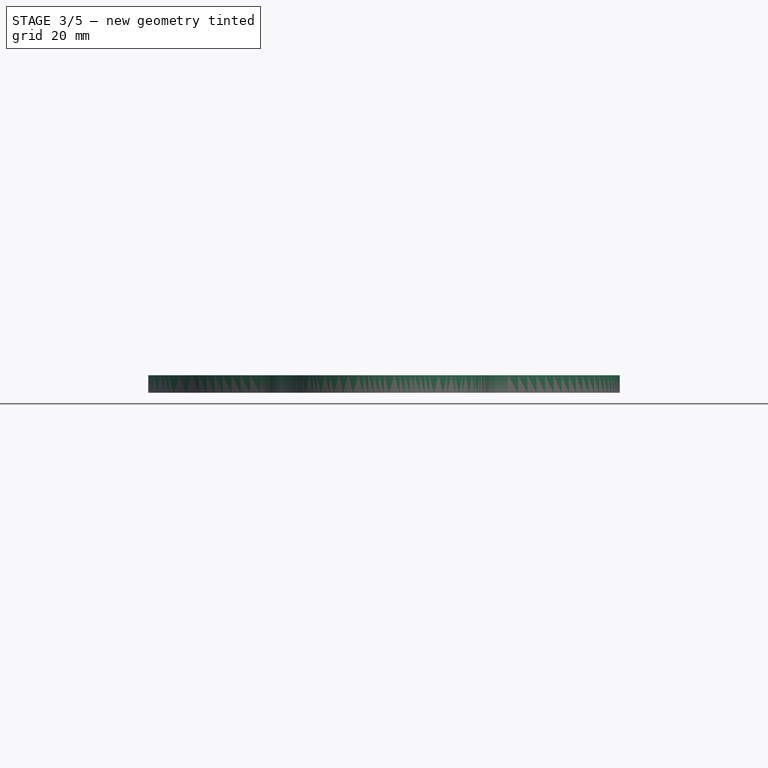
[diagram: stage 3 of 5 — front view after this stage's code; geometry added in this stage tinted green]
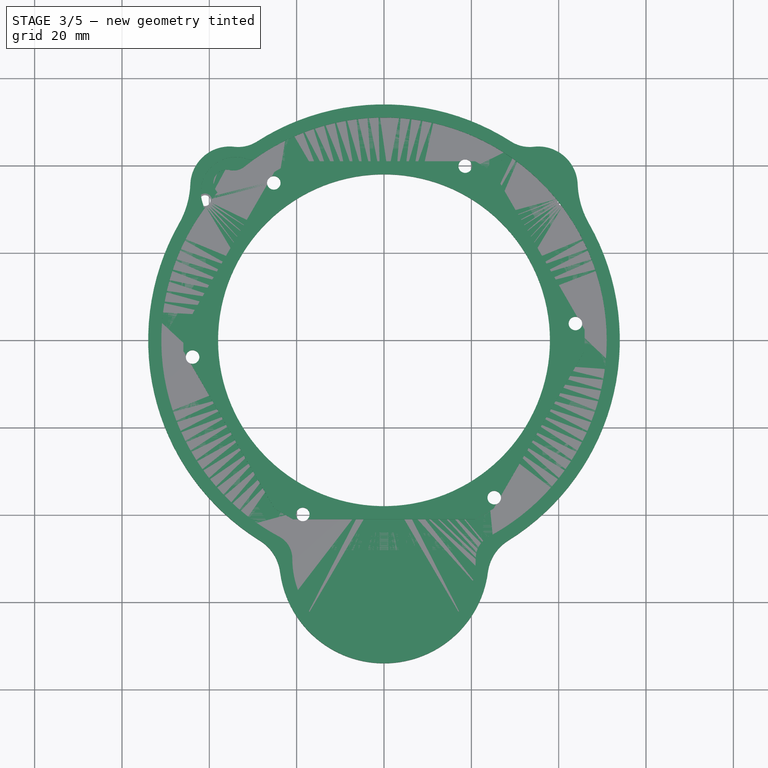
[diagram: stage 3 of 5 — top view after this stage's code; geometry added in this stage tinted green]
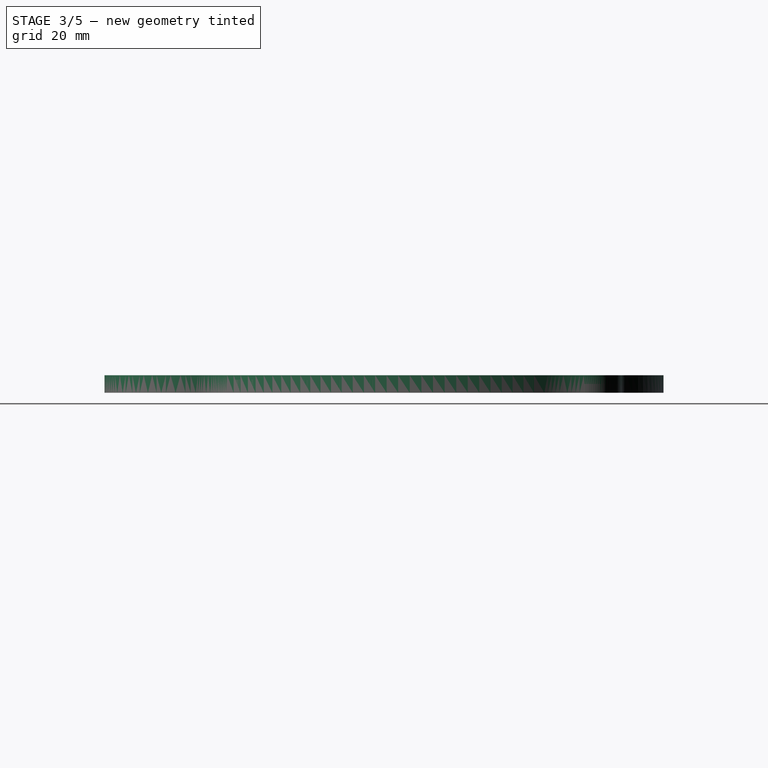
[diagram: stage 3 of 5 — right view after this stage's code; geometry added in this stage tinted green]
FEATURE [PartDesign::Body] Body029  label="front_layer_1_in_Body"
  Group = -> [Pad019,Pocket056,Pocket054,PolarPattern016]
  Origin = -> Origin055
  Placement = pos=(0,0,10) rot=(0,0,1;0rad)
  Tip = -> PolarPattern016
FEATURE [PartDesign::Pad] Pad020
  Length = 4
  Length2 = 100
  Profile = -> Sketch
  Type = 0
FEATURE [PartDesign::Pocket] Pocket057
  BaseFeature = -> Pad020
  Length = 5
  Length2 = 100
  Profile = -> Sketch033
  Reversed = true
  Type = 1
FEATURE [PartDesign::Pocket] Pocket058
  BaseFeature = -> Pocket057
  Length = 5
  Length2 = 100
  Profile = -> Sketch028
  Reversed = true
  Type = 1
FEATURE [Sketcher::SketchObject] Sketch034  label="rope_feedthrough_top_Sketch"
  MapMode = 5
  Support = -> [XY_Plane001]
  expr: Constraints[6] = base_values.inner_cutout_diameter / 2
  sketch-geometry (9):
    g0: ArcOfCircle CenterX=-33.9411 CenterY=33.9411 CenterZ=0 NormalX=0 NormalY=0 NormalZ=1 AngleXU=0 Radius=8 StartAngle=1.22091 EndAngle=3.49148
    g1: ArcOfCircle CenterX=-30.5132 CenterY=43.3352 CenterZ=0 NormalX=0 NormalY=0 NormalZ=1 AngleXU=0 Radius=2 StartAngle=4.3625 EndAngle=5.32587
    g2: ArcOfCircle CenterX=-43.3352 CenterY=30.5132 CenterZ=0 NormalX=0 NormalY=0 NormalZ=1 AngleXU=0 Radius=2 StartAngle=5.6697 EndAngle=6.63307
    g3: ArcOfCircle CenterX=0 CenterY=0 CenterZ=0 NormalX=0 NormalY=0 NormalZ=1 AngleXU=0 Radius=51 StartAngle=2.52811 EndAngle=2.61799
    g4: ArcOfCircle CenterX=0 CenterY=0 CenterZ=0 NormalX=0 NormalY=0 NormalZ=1 AngleXU=0 Radius=51 StartAngle=2.0944 EndAngle=2.18428
    g5: LineSegment StartX=-25.5 StartY=44.1673 StartZ=0 EndX=-23.5 EndY=40.7032 EndZ=0
    g6: LineSegment StartX=-44.1673 StartY=25.5 StartZ=0 EndX=-40.7032 EndY=23.5 EndZ=0
    g7: LineSegment StartX=-40.7032 StartY=23.5 StartZ=0 EndX=-23.5 EndY=40.7032 EndZ=0
    g8: LineSegment [constr] StartX=-33.9411 StartY=33.9411 StartZ=0 EndX=0 EndY=0 EndZ=0
  constraints (25):
    c: Tangent(g2,g3) = 1.5708
    c: Tangent(g0,g2) = 1.5708
    c: Tangent(g1,g4) = 1.5708
    c: Tangent(g0,g1) = 1.5708
    c: Equal(g1,g2)
    c: Radius(g1) = 2
    c: Radius(g3) = 51
    c: Equal(g3,g4)
    c: Coincident(g3,g4)
    c: Coincident(g3,g-1)
    c: Coincident(g5,g4)
    c: Coincident(g6,g3)
    c: Perpendicular(g3,g6)
    c: Coincident(g7,g6)
    c: Coincident(g7,g5)
    c: Perpendicular(g4,g5)
    c: Equal(g5,g6)
    c: Distance(g6) = 4
    c: Coincident(g8,g0)
    c: Distance(g8) = 48
    c: Coincident(g3,g8)
    c: Angle(g8,g6) = 0.261799
    c: Angle(g5,g8) = 0.261799
    c: Angle(g-2,g8) = 0.785398
    c: Radius(g0) = 8
FEATURE [PartDesign::Pocket] Pocket059
  BaseFeature = -> Pocket058
  Length = 5
  Length2 = 100
  Profile = -> Sketch034
  Reversed = true
  Type = 1
FEATURE [PartDesign::Body] Body030  label="front_layer_1_out_Body"
  Group = -> [Pad020,Pocket057,Pocket058,Pocket059,Mirrored007]
  Origin = -> Origin056
  Placement = pos=(0,0,9) rot=(0,0,1;0rad)
  Tip = -> Mirrored007
FEATURE [PartDesign::Pad] Pad021
  Length = 1
  Length2 = 100
  Profile = -> Sketch032
  Type = 0
FEATURE [PartDesign::Pocket] Pocket061
  BaseFeature = -> Pad021
  Length = 5
  Length2 = 100
  Profile = -> Sketch001
  Reversed = true
  Type = 1
FEATURE [PartDesign::Pocket] Pocket060
  BaseFeature = -> Pocket061
  Length = 5
  Length2 = 100
  Profile = -> Sketch004
  Reversed = true
  Type = 1
FEATURE [PartDesign::PolarPattern] PolarPattern017
  Angle = 360
  Axis = -> Sketch004 [N_Axis]
  BaseFeature = -> Pocket060
  Occurrences = 6
  Originals = -> [Pocket060]
FEATURE [PartDesign::Body] Body031  label="front_layer_2_Body"
  Group = -> [Pad021,Pocket061,Pocket060,PolarPattern017]
  Origin = -> Origin057
  Placement = pos=(0,0,9) rot=(0,0,1;0rad)
  Tip = -> PolarPattern017
FEATURE [Sketcher::SketchObject] Sketch035  label="inner_cutout_contour_wTollerance_Sketch"
  MapMode = 5
  Support = -> [XY_Plane001]
  expr: Constraints[42] = base_values.outer_diameter
  expr: Constraints[38] = base_values.plexiglas_max_diameter / 2
  expr: Constraints[1] = base_values.plexiglas_min_diameter / 2
  sketch-geometry (15):
    g0: Circle [constr] CenterX=0 CenterY=0 CenterZ=0 NormalX=0 NormalY=0 NormalZ=1 AngleXU=0 Radius=40
    g1: LineSegment StartX=40.5689 StartY=-10.8704 StartZ=0 EndX=40.5689 EndY=10.8704 EndZ=0
    g2: LineSegment StartX=40.5689 StartY=10.8704 StartZ=0 EndX=29.6985 EndY=29.6985 EndZ=0
    g3: LineSegment StartX=29.6985 StartY=29.6985 StartZ=0 EndX=10.8704 EndY=40.5689 EndZ=0
    g4: LineSegment StartX=10.8704 StartY=40.5689 StartZ=0 EndX=-10.8704 EndY=40.5689 EndZ=0
    g5: LineSegment StartX=-10.8704 StartY=40.5689 StartZ=0 EndX=-29.6985 EndY=29.6985 EndZ=0
    g6: LineSegment StartX=-29.6985 StartY=29.6985 StartZ=0 EndX=-40.5689 EndY=10.8704 EndZ=0
    g7: LineSegment StartX=-40.5689 StartY=10.8704 StartZ=0 EndX=-40.5689 EndY=-10.8704 EndZ=0
    g8: LineSegment StartX=-40.5689 StartY=-10.8704 StartZ=0 EndX=-29.6985 EndY=-29.6985 EndZ=0
    g9: LineSegment StartX=-29.6985 StartY=-29.6985 StartZ=0 EndX=-10.8704 EndY=-40.5689 EndZ=0
    g10: LineSegment StartX=-10.8704 StartY=-40.5689 StartZ=0 EndX=10.8704 EndY=-40.5689 EndZ=0
    g11: LineSegment StartX=10.8704 StartY=-40.5689 StartZ=0 EndX=29.6985 EndY=-29.6985 EndZ=0
    g12: LineSegment StartX=29.6985 StartY=-29.6985 StartZ=0 EndX=40.5689 EndY=-10.8704 EndZ=0
    g13: Circle [constr] CenterX=0 CenterY=0 CenterZ=0 NormalX=0 NormalY=0 NormalZ=1 AngleXU=0 Radius=42
    g14: Circle [constr] CenterX=0 CenterY=0 CenterZ=0 NormalX=0 NormalY=0 NormalZ=1 AngleXU=0 Radius=108
  constraints (33):
    c: Coincident(g0,g-1)
    c: Radius(g0) = 40
    c: Coincident(g1,g2)
    c: Coincident(g2,g3)
    c: Coincident(g3,g4)
    c: Coincident(g4,g5)
    c: Coincident(g5,g6)
    c: Coincident(g6,g7)
    c: Coincident(g7,g8)
    c: Coincident(g8,g9)
    c: Coincident(g9,g10)
    c: Coincident(g10,g11)
    c: Coincident(g11,g12)
    c: Coincident(g12,g1)
    c: Equal(g1, g2-g12) x11
    c: PointOnObject(g1,g13)
    c: PointOnObject(g2,g13)
    c: PointOnObject(g3,g13)
    c: PointOnObject(g4,g13)
    c: PointOnObject(g5,g13)
    c: PointOnObject(g6,g13)
    c: PointOnObject(g7,g13)
    c: PointOnObject(g8,g13)
    c: PointOnObject(g9,g13)
    c: PointOnObject(g10,g13)
    c: PointOnObject(g11,g13)
    c: PointOnObject(g12,g13)
    c: Horizontal(g4)
    c: Radius(g13) = 42
    c: Distance(g10) = 21.7408
    c: Coincident(g13,g-1)
    c: Coincident(g14,g-1)
    c: Radius(g14) = 108
FEATURE [PartDesign::Pad] Pad022
  Length = 1
  Length2 = 100
  Profile = -> Sketch035
  Type = 0
FEATURE [PartDesign::Pocket] Pocket062
  BaseFeature = -> Pad022
  Length = 5
  Length2 = 100
  Profile = -> Sketch001
  Reversed = true
  Type = 1
FEATURE [PartDesign::Body] Body032  label="front_layer_3_Body"
  Group = -> [Pad022,Pocket062]
  Origin = -> Origin058
  Placement = pos=(0,0,8) rot=(0,0,1;0rad)
  Tip = -> Pocket062
FEATURE [TechDraw::DrawSVGTemplate] Template011 .. Template015  x5 (patterned run collapsed; names and placements below)
  Height = 210
  Orientation = 1
  Width = 297
FEATURE [TechDraw::DrawViewPart] View014
  CoarseView = false
  Direction = (0,0,1)
  Focus = 100
  HardHidden = false
  IsoCount = 0
  IsoHidden = false
  IsoVisible = false
  LockPosition = true
  Perspective = false
  Rotation = 0
  ScaleType = 0
  SeamHidden = false
  SeamVisible = false
  SmoothHidden = false
  SmoothVisible = false
  Source = -> [Body028]
  X = 148.5
  Y = 105
FEATURE [TechDraw::DrawViewPart] View015
  CoarseView = false
  Direction = (0,0,1)
  Focus = 100
  HardHidden = false
  IsoCount = 0
  IsoHidden = false
  IsoVisible = false
  LockPosition = false
  Perspective = false
  Rotation = 0
  ScaleType = 0
  SeamHidden = false
  SeamVisible = false
  SmoothHidden = false
  SmoothVisible = false
  Source = -> [Body029]
  X = 148.5
  Y = 105
FEATURE [TechDraw::DrawPage] Page012  label="front_layer_1_in_Page"
  KeepUpdated = true
  ProjectionType = 0
  Template = -> Template012
  Views = -> [View015]
FEATURE [TechDraw::DrawViewPart] View016
  CoarseView = false
  Direction = (0,0,1)
  Focus = 100
  HardHidden = false
  IsoCount = 0
  IsoHidden = false
  IsoVisible = false
  LockPosition = false
  Perspective = false
  Rotation = 0
  ScaleType = 0
  SeamHidden = false
  SeamVisible = false
  SmoothHidden = false
  SmoothVisible = false
  Source = -> [Body030]
  X = 148.5
  Y = 105
FEATURE [TechDraw::DrawPage] Page013  label="front_layer_1_out_Page"
  KeepUpdated = true
  ProjectionType = 0
  Template = -> Template013
  Views = -> [View016]
FEATURE [TechDraw::DrawViewPart] View017
  CoarseView = false
  Direction = (0,0,1)
  Focus = 100
  HardHidden = false
  IsoCount = 0
  IsoHidden = false
  IsoVisible = false
  LockPosition = false
  Perspective = false
  Rotation = 0
  ScaleType = 0
  SeamHidden = false
  SeamVisible = false
  SmoothHidden = false
  SmoothVisible = false
  Source = -> [Body031]
  X = 148.5
  Y = 105
FEATURE [TechDraw::DrawPage] Page014  label="front_layer_2_Page"
  KeepUpdated = true
  ProjectionType = 0
  Template = -> Template014
  Views = -> [View017]
FEATURE [TechDraw::DrawViewPart] View018
  CoarseView = false
  Direction = (0,0,1)
  Focus = 100
  HardHidden = false
  IsoCount = 0
  IsoHidden = false
  IsoVisible = false
  LockPosition = false
  Perspective = false
  Rotation = 0
  ScaleType = 0
  SeamHidden = false
  SeamVisible = false
  SmoothHidden = false
  SmoothVisible = false
  Source = -> [Body032]
  X = 148.5
  Y = 105
FEATURE [TechDraw::DrawPage] Page015  label="front_layer_3_Page"
  KeepUpdated = true
  ProjectionType = 0
  Template = -> Template015
  Views = -> [View018]
FEATURE [TechDraw::DrawSVGTemplate] Template016
  Height = 210
  Orientation = 1
  Width = 297
FEATURE [TechDraw::DrawSVGTemplate] Template017
  Height = 210
  Orientation = 1
  Width = 297
FEATURE [TechDraw::DrawSVGTemplate] Template018
  Height = 210
  Orientation = 1
  Width = 297
FEATURE [PartDesign::Pad] Pad023
  Length = 3
  Length2 = 100
  Profile = -> Sketch032
  Type = 0
FEATURE [PartDesign::Pocket] Pocket063
  BaseFeature = -> Pad023
  Length = 5
  Length2 = 100
  Profile = -> Sketch001
  Reversed = true
  Type = 1
FEATURE [PartDesign::Pocket] Pocket064
  BaseFeature = -> Pocket063
  Length = 5
  Length2 = 100
  Profile = -> Sketch004
  Reversed = true
  Type = 1
FEATURE [PartDesign::PolarPattern] PolarPattern018
  Angle = 360
  Axis = -> Sketch004 [N_Axis]
  BaseFeature = -> Pocket064
  Occurrences = 6
  Originals = -> [Pocket064]
FEATURE [PartDesign::Body] Body033  label="back_layer_0_in_Body"
  Group = -> [Pad023,Pocket063,Pocket064,PolarPattern018]
  Origin = -> Origin059
  Placement = pos=(0,0,-4) rot=(0,0,1;0rad)
  Tip = -> PolarPattern018
FEATURE [TechDraw::DrawViewPart] View019
  CoarseView = false
  Direction = (0,0,1)
  Focus = 100
  HardHidden = false
  IsoCount = 0
  IsoHidden = false
  IsoVisible = false
  LockPosition = false
  Perspective = false
  Rotation = 0
  ScaleType = 0
  SeamHidden = false
  SeamVisible = false
  SmoothHidden = false
  SmoothVisible = false
  Source = -> [Body033]
  X = 148.5
  Y = 105
FEATURE [TechDraw::DrawPage] Page016  label="back_layer_0_in_Page"
  KeepUpdated = true
  ProjectionType = 0
  Template = -> Template016
  Views = -> [View019]
FEATURE [PartDesign::Pad] Pad024
  Length = 3
  Length2 = 100
  Profile = -> Sketch
  Type = 0
FEATURE [PartDesign::Pocket] Pocket065
  BaseFeature = -> Pad024
  Length = 5
  Length2 = 100
  Profile = -> Sketch033
  Reversed = true
  Type = 1
FEATURE [PartDesign::Pocket] Pocket066
  BaseFeature = -> Pocket065
  Length = 5
  Length2 = 100
  Profile = -> Sketch028
  Reversed = true
  Type = 1
FEATURE [PartDesign::Pad] Pad025
  Length = 2
  Length2 = 100
  Profile = -> Sketch
  Type = 0
FEATURE [PartDesign::Pocket] Pocket068
  BaseFeature = -> Pad025
  Length = 5
  Length2 = 100
  Profile = -> Sketch001
  Reversed = true
  Type = 1
FEATURE [PartDesign::Pocket] Pocket069
  BaseFeature = -> Pocket068
  Length = 5
  Length2 = 100
  Profile = -> Sketch004
  Reversed = true
  Type = 1
FEATURE [PartDesign::PolarPattern] PolarPattern019
  Angle = 360
  Axis = -> Sketch004 [N_Axis]
  BaseFeature = -> Pocket069
  Occurrences = 6
  Originals = -> [Pocket069]
FEATURE [Sketcher::SketchObject] Sketch243  label="pattern_front"
  Placement = pos=(-50,50,14) rot=(0,0,1;0rad)
  sketch-geometry (473):
    g0: BSplineCurve PolesCount=4 KnotsCount=2 Degree=3 IsPeriodic=0
    g1: BSplineCurve PolesCount=4 KnotsCount=2 Degree=3 IsPeriodic=0
    g2: BSplineCurve PolesCount=4 KnotsCount=2 Degree=3 IsPeriodic=0
    g3: BSplineCurve PolesCount=4 KnotsCount=2 Degree=3 IsPeriodic=0
    g4: BSplineCurve PolesCount=4 KnotsCount=2 Degree=3 IsPeriodic=0
    g5: BSplineCurve PolesCount=4 KnotsCount=2 Degree=3 IsPeriodic=0
    g6: BSplineCurve PolesCount=4 KnotsCount=2 Degree=3 IsPeriodic=0
    g7: BSplineCurve PolesCount=4 KnotsCount=2 Degree=3 IsPeriodic=0
    g8: BSplineCurve PolesCount=4 KnotsCount=2 Degree=3 IsPeriodic=0
    g9: BSplineCurve PolesCount=4 KnotsCount=2 Degree=3 IsPeriodic=0
    g10: BSplineCurve PolesCount=4 KnotsCount=2 Degree=3 IsPeriodic=0
    g11: BSplineCurve PolesCount=4 KnotsCount=2 Degree=3 IsPeriodic=0
    g12: BSplineCurve PolesCount=4 KnotsCount=2 Degree=3 IsPeriodic=0
    g13: BSplineCurve PolesCount=4 KnotsCount=2 Degree=3 IsPeriodic=0
    g14: BSplineCurve PolesCount=4 KnotsCount=2 Degree=3 IsPeriodic=0
    g15: BSplineCurve PolesCount=4 KnotsCount=2 Degree=3 IsPeriodic=0
    g16: BSplineCurve PolesCount=4 KnotsCount=2 Degree=3 IsPeriodic=0
    g17: BSplineCurve PolesCount=4 KnotsCount=2 Degree=3 IsPeriodic=0
    g18: BSplineCurve PolesCount=4 KnotsCount=2 Degree=3 IsPeriodic=0
    g19: BSplineCurve PolesCount=4 KnotsCount=2 Degree=3 IsPeriodic=0
    g20: BSplineCurve PolesCount=4 KnotsCount=2 Degree=3 IsPeriodic=0
    g21: BSplineCurve PolesCount=4 KnotsCount=2 Degree=3 IsPeriodic=0
    g22: BSplineCurve PolesCount=4 KnotsCount=2 Degree=3 IsPeriodic=0
    g23: BSplineCurve PolesCount=4 KnotsCount=2 Degree=3 IsPeriodic=0
    g24: BSplineCurve PolesCount=4 KnotsCount=2 Degree=3 IsPeriodic=0
    g25: BSplineCurve PolesCount=4 KnotsCount=2 Degree=3 IsPeriodic=0
    g26: BSplineCurve PolesCount=4 KnotsCount=2 Degree=3 IsPeriodic=0
    g27: BSplineCurve PolesCount=4 KnotsCount=2 Degree=3 IsPeriodic=0
    g28: BSplineCurve PolesCount=4 KnotsCount=2 Degree=3 IsPeriodic=0
    g29: BSplineCurve PolesCount=4 KnotsCount=2 Degree=3 IsPeriodic=0
    g30: BSplineCurve PolesCount=4 KnotsCount=2 Degree=3 IsPeriodic=0
    g31: BSplineCurve PolesCount=4 KnotsCount=2 Degree=3 IsPeriodic=0
    g32: BSplineCurve PolesCount=4 KnotsCount=2 Degree=3 IsPeriodic=0
    g33: BSplineCurve PolesCount=4 KnotsCount=2 Degree=3 IsPeriodic=0
    g34: BSplineCurve PolesCount=4 KnotsCount=2 Degree=3 IsPeriodic=0
    g35: BSplineCurve PolesCount=4 KnotsCount=2 Degree=3 IsPeriodic=0
    g36: BSplineCurve PolesCount=4 KnotsCount=2 Degree=3 IsPeriodic=0
    g37: BSplineCurve PolesCount=4 KnotsCount=2 Degree=3 IsPeriodic=0
    g38: BSplineCurve PolesCount=4 KnotsCount=2 Degree=3 IsPeriodic=0
    g39: BSplineCurve PolesCount=4 KnotsCount=2 Degree=3 IsPeriodic=0
    g40: BSplineCurve PolesCount=4 KnotsCount=2 Degree=3 IsPeriodic=0
    g41: BSplineCurve PolesCount=4 KnotsCount=2 Degree=3 IsPeriodic=0
    g42: BSplineCurve PolesCount=4 KnotsCount=2 Degree=3 IsPeriodic=0
    g43: BSplineCurve PolesCount=4 KnotsCount=2 Degree=3 IsPeriodic=0
    g44: BSplineCurve PolesCount=4 KnotsCount=2 Degree=3 IsPeriodic=0
    g45: BSplineCurve PolesCount=4 KnotsCount=2 Degree=3 IsPeriodic=0
    g46: BSplineCurve PolesCount=4 KnotsCount=2 Degree=3 IsPeriodic=0
    g47: BSplineCurve PolesCount=4 KnotsCount=2 Degree=3 IsPeriodic=0
    g48: BSplineCurve PolesCount=4 KnotsCount=2 Degree=3 IsPeriodic=0
    g49: BSplineCurve PolesCount=4 KnotsCount=2 Degree=3 IsPeriodic=0
    g50: BSplineCurve PolesCount=4 KnotsCount=2 Degree=3 IsPeriodic=0
    g51: BSplineCurve PolesCount=4 KnotsCount=2 Degree=3 IsPeriodic=0
    g52: BSplineCurve PolesCount=4 KnotsCount=2 Degree=3 IsPeriodic=0
    g53: BSplineCurve PolesCount=4 KnotsCount=2 Degree=3 IsPeriodic=0
    g54: BSplineCurve PolesCount=4 KnotsCount=2 Degree=3 IsPeriodic=0
    g55: BSplineCurve PolesCount=4 KnotsCount=2 Degree=3 IsPeriodic=0
    g56: BSplineCurve PolesCount=4 KnotsCount=2 Degree=3 IsPeriodic=0
    g57: BSplineCurve PolesCount=4 KnotsCount=2 Degree=3 IsPeriodic=0
    g58: BSplineCurve PolesCount=4 KnotsCount=2 Degree=3 IsPeriodic=0
    g59: BSplineCurve PolesCount=4 KnotsCount=2 Degree=3 IsPeriodic=0
    g60: BSplineCurve PolesCount=4 KnotsCount=2 Degree=3 IsPeriodic=0
    g61: BSplineCurve PolesCount=4 KnotsCount=2 Degree=3 IsPeriodic=0
    g62: BSplineCurve PolesCount=4 KnotsCount=2 Degree=3 IsPeriodic=0
    g63: BSplineCurve PolesCount=4 KnotsCount=2 Degree=3 IsPeriodic=0
    g64: BSplineCurve PolesCount=4 KnotsCount=2 Degree=3 IsPeriodic=0
    g65: BSplineCurve PolesCount=4 KnotsCount=2 Degree=3 IsPeriodic=0
    g66: BSplineCurve PolesCount=4 KnotsCount=2 Degree=3 IsPeriodic=0
    g67: BSplineCurve PolesCount=4 KnotsCount=2 Degree=3 IsPeriodic=0
    g68: BSplineCurve PolesCount=4 KnotsCount=2 Degree=3 IsPeriodic=0
    g69: BSplineCurve PolesCount=4 KnotsCount=2 Degree=3 IsPeriodic=0
    g70: BSplineCurve PolesCount=4 KnotsCount=2 Degree=3 IsPeriodic=0
    g71: BSplineCurve PolesCount=4 KnotsCount=2 Degree=3 IsPeriodic=0
    g72: BSplineCurve PolesCount=4 KnotsCount=2 Degree=3 IsPeriodic=0
    g73: BSplineCurve PolesCount=4 KnotsCount=2 Degree=3 IsPeriodic=0
    g74: BSplineCurve PolesCount=4 KnotsCount=2 Degree=3 IsPeriodic=0
    g75: BSplineCurve PolesCount=4 KnotsCount=2 Degree=3 IsPeriodic=0
    g76: BSplineCurve PolesCount=4 KnotsCount=2 Degree=3 IsPeriodic=0
    g77: BSplineCurve PolesCount=4 KnotsCount=2 Degree=3 IsPeriodic=0
    g78: BSplineCurve PolesCount=4 KnotsCount=2 Degree=3 IsPeriodic=0
    g79: BSplineCurve PolesCount=4 KnotsCount=2 Degree=3 IsPeriodic=0
    g80: BSplineCurve PolesCount=4 KnotsCount=2 Degree=3 IsPeriodic=0
    g81: BSplineCurve PolesCount=4 KnotsCount=2 Degree=3 IsPeriodic=0
    g82: BSplineCurve PolesCount=4 KnotsCount=2 Degree=3 IsPeriodic=0
    g83: BSplineCurve PolesCount=4 KnotsCount=2 Degree=3 IsPeriodic=0
    g84: BSplineCurve PolesCount=4 KnotsCount=2 Degree=3 IsPeriodic=0
    g85: BSplineCurve PolesCount=4 KnotsCount=2 Degree=3 IsPeriodic=0
    g86: BSplineCurve PolesCount=4 KnotsCount=2 Degree=3 IsPeriodic=0
    g87: BSplineCurve PolesCount=4 KnotsCount=2 Degree=3 IsPeriodic=0
    g88: BSplineCurve PolesCount=4 KnotsCount=2 Degree=3 IsPeriodic=0
    g89: BSplineCurve PolesCount=4 KnotsCount=2 Degree=3 IsPeriodic=0
    g90: BSplineCurve PolesCount=4 KnotsCount=2 Degree=3 IsPeriodic=0
    g91: BSplineCurve PolesCount=4 KnotsCount=2 Degree=3 IsPeriodic=0
    g92: BSplineCurve PolesCount=4 KnotsCount=2 Degree=3 IsPeriodic=0
    g93: BSplineCurve PolesCount=4 KnotsCount=2 Degree=3 IsPeriodic=0
    g94: BSplineCurve PolesCount=4 KnotsCount=2 Degree=3 IsPeriodic=0
    g95: BSplineCurve PolesCount=4 KnotsCount=2 Degree=3 IsPeriodic=0
    g96: BSplineCurve PolesCount=4 KnotsCount=2 Degree=3 IsPeriodic=0
    g97: BSplineCurve PolesCount=4 KnotsCount=2 Degree=3 IsPeriodic=0
    g98: BSplineCurve PolesCount=4 KnotsCount=2 Degree=3 IsPeriodic=0
    g99: BSplineCurve PolesCount=4 KnotsCount=2 Degree=3 IsPeriodic=0
    g100: BSplineCurve PolesCount=4 KnotsCount=2 Degree=3 IsPeriodic=0
    g101: BSplineCurve PolesCount=4 KnotsCount=2 Degree=3 IsPeriodic=0
    g102: BSplineCurve PolesCount=4 KnotsCount=2 Degree=3 IsPeriodic=0
    g103: BSplineCurve PolesCount=4 KnotsCount=2 Degree=3 IsPeriodic=0
    g104: BSplineCurve PolesCount=4 KnotsCount=2 Degree=3 IsPeriodic=0
    g105: BSplineCurve PolesCount=4 KnotsCount=2 Degree=3 IsPeriodic=0
    g106: BSplineCurve PolesCount=4 KnotsCount=2 Degree=3 IsPeriodic=0
    g107: BSplineCurve PolesCount=4 KnotsCount=2 Degree=3 IsPeriodic=0
    g108: BSplineCurve PolesCount=4 KnotsCount=2 Degree=3 IsPeriodic=0
    g109: BSplineCurve PolesCount=4 KnotsCount=2 Degree=3 IsPeriodic=0
    g110: BSplineCurve PolesCount=4 KnotsCount=2 Degree=3 IsPeriodic=0
    g111: BSplineCurve PolesCount=4 KnotsCount=2 Degree=3 IsPeriodic=0
    g112: BSplineCurve PolesCount=4 KnotsCount=2 Degree=3 IsPeriodic=0
    g113: BSplineCurve PolesCount=4 KnotsCount=2 Degree=3 IsPeriodic=0
    g114: BSplineCurve PolesCount=4 KnotsCount=2 Degree=3 IsPeriodic=0
    g115: BSplineCurve PolesCount=4 KnotsCount=2 Degree=3 IsPeriodic=0
    g116: BSplineCurve PolesCount=4 KnotsCount=2 Degree=3 IsPeriodic=0
    g117: BSplineCurve PolesCount=4 KnotsCount=2 Degree=3 IsPeriodic=0
    g118: BSplineCurve PolesCount=4 KnotsCount=2 Degree=3 IsPeriodic=0
    g119: BSplineCurve PolesCount=4 KnotsCount=2 Degree=3 IsPeriodic=0
    g120: BSplineCurve PolesCount=4 KnotsCount=2 Degree=3 IsPeriodic=0
    g121: BSplineCurve PolesCount=4 KnotsCount=2 Degree=3 IsPeriodic=0
    g122: BSplineCurve PolesCount=4 KnotsCount=2 Degree=3 IsPeriodic=0
    g123: BSplineCurve PolesCount=4 KnotsCount=2 Degree=3 IsPeriodic=0
    g124: BSplineCurve PolesCount=4 KnotsCount=2 Degree=3 IsPeriodic=0
    g125: BSplineCurve PolesCount=4 KnotsCount=2 Degree=3 IsPeriodic=0
    g126: BSplineCurve PolesCount=4 KnotsCount=2 Degree=3 IsPeriodic=0
    g127: BSplineCurve PolesCount=4 KnotsCount=2 Degree=3 IsPeriodic=0
    g128: BSplineCurve PolesCount=4 KnotsCount=2 Degree=3 IsPeriodic=0
    g129: BSplineCurve PolesCount=4 KnotsCount=2 Degree=3 IsPeriodic=0
    g130: BSplineCurve PolesCount=4 KnotsCount=2 Degree=3 IsPeriodic=0
    g131: BSplineCurve PolesCount=4 KnotsCount=2 Degree=3 IsPeriodic=0
    g132: BSplineCurve PolesCount=4 KnotsCount=2 Degree=3 IsPeriodic=0
    g133: BSplineCurve PolesCount=4 KnotsCount=2 Degree=3 IsPeriodic=0
    g134: BSplineCurve PolesCount=4 KnotsCount=2 Degree=3 IsPeriodic=0
    g135: BSplineCurve PolesCount=4 KnotsCount=2 Degree=3 IsPeriodic=0
    g136: BSplineCurve PolesCount=4 KnotsCount=2 Degree=3 IsPeriodic=0
    g137: BSplineCurve PolesCount=4 KnotsCount=2 Degree=3 IsPeriodic=0
    g138: BSplineCurve PolesCount=4 KnotsCount=2 Degree=3 IsPeriodic=0
    g139: BSplineCurve PolesCount=4 KnotsCount=2 Degree=3 IsPeriodic=0
    g140: BSplineCurve PolesCount=4 KnotsCount=2 Degree=3 IsPeriodic=0
    g141: BSplineCurve PolesCount=4 KnotsCount=2 Degree=3 IsPeriodic=0
    g142: BSplineCurve PolesCount=4 KnotsCount=2 Degree=3 IsPeriodic=0
    g143: BSplineCurve PolesCount=4 KnotsCount=2 Degree=3 IsPeriodic=0
    g144: BSplineCurve PolesCount=4 KnotsCount=2 Degree=3 IsPeriodic=0
    g145: BSplineCurve PolesCount=4 KnotsCount=2 Degree=3 IsPeriodic=0
    g146: BSplineCurve PolesCount=4 KnotsCount=2 Degree=3 IsPeriodic=0
    g147: BSplineCurve PolesCount=4 KnotsCount=2 Degree=3 IsPeriodic=0
    g148: BSplineCurve PolesCount=4 KnotsCount=2 Degree=3 IsPeriodic=0
    g149: BSplineCurve PolesCount=4 KnotsCount=2 Degree=3 IsPeriodic=0
    g150: BSplineCurve PolesCount=4 KnotsCount=2 Degree=3 IsPeriodic=0
    g151: BSplineCurve PolesCount=4 KnotsCount=2 Degree=3 IsPeriodic=0
    g152: BSplineCurve PolesCount=4 KnotsCount=2 Degree=3 IsPeriodic=0
    g153: BSplineCurve PolesCount=4 KnotsCount=2 Degree=3 IsPeriodic=0
    g154: BSplineCurve PolesCount=4 KnotsCount=2 Degree=3 IsPeriodic=0
    g155: BSplineCurve PolesCount=4 KnotsCount=2 Degree=3 IsPeriodic=0
    g156: BSplineCurve PolesCount=4 KnotsCount=2 Degree=3 IsPeriodic=0
    g157: BSplineCurve PolesCount=4 KnotsCount=2 Degree=3 IsPeriodic=0
    g158: BSplineCurve PolesCount=4 KnotsCount=2 Degree=3 IsPeriodic=0
    g159: BSplineCurve PolesCount=4 KnotsCount=2 Degree=3 IsPeriodic=0
    g160: BSplineCurve PolesCount=4 KnotsCount=2 Degree=3 IsPeriodic=0
    g161: BSplineCurve PolesCount=4 KnotsCount=2 Degree=3 IsPeriodic=0
    g162: BSplineCurve PolesCount=4 KnotsCount=2 Degree=3 IsPeriodic=0
    g163: BSplineCurve PolesCount=4 KnotsCount=2 Degree=3 IsPeriodic=0
    g164: BSplineCurve PolesCount=4 KnotsCount=2 Degree=3 IsPeriodic=0
    g165: BSplineCurve PolesCount=4 KnotsCount=2 Degree=3 IsPeriodic=0
    g166: BSplineCurve PolesCount=4 KnotsCount=2 Degree=3 IsPeriodic=0
    g167: BSplineCurve PolesCount=4 KnotsCount=2 Degree=3 IsPeriodic=0
    g168: BSplineCurve PolesCount=4 KnotsCount=2 Degree=3 IsPeriodic=0
    g169: BSplineCurve PolesCount=4 KnotsCount=2 Degree=3 IsPeriodic=0
    g170: BSplineCurve PolesCount=4 KnotsCount=2 Degree=3 IsPeriodic=0
    g171: BSplineCurve PolesCount=4 KnotsCount=2 Degree=3 IsPeriodic=0
    g172: BSplineCurve PolesCount=4 KnotsCount=2 Degree=3 IsPeriodic=0
    g173: BSplineCurve PolesCount=4 KnotsCount=2 Degree=3 IsPeriodic=0
    g174: BSplineCurve PolesCount=4 KnotsCount=2 Degree=3 IsPeriodic=0
    g175: BSplineCurve PolesCount=4 KnotsCount=2 Degree=3 IsPeriodic=0
    g176: BSplineCurve PolesCount=4 KnotsCount=2 Degree=3 IsPeriodic=0
    g177: BSplineCurve PolesCount=4 KnotsCount=2 Degree=3 IsPeriodic=0
    g178: BSplineCurve PolesCount=4 KnotsCount=2 Degree=3 IsPeriodic=0
    g179: BSplineCurve PolesCount=4 KnotsCount=2 Degree=3 IsPeriodic=0
    g180: BSplineCurve PolesCount=4 KnotsCount=2 Degree=3 IsPeriodic=0
    g181: BSplineCurve PolesCount=4 KnotsCount=2 Degree=3 IsPeriodic=0
    g182: BSplineCurve PolesCount=4 KnotsCount=2 Degree=3 IsPeriodic=0
    g183: BSplineCurve PolesCount=4 KnotsCount=2 Degree=3 IsPeriodic=0
    g184: BSplineCurve PolesCount=4 KnotsCount=2 Degree=3 IsPeriodic=0
    g185: BSplineCurve PolesCount=4 KnotsCount=2 Degree=3 IsPeriodic=0
    g186: BSplineCurve PolesCount=4 KnotsCount=2 Degree=3 IsPeriodic=0
    g187: BSplineCurve PolesCount=4 KnotsCount=2 Degree=3 IsPeriodic=0
    g188: BSplineCurve PolesCount=4 KnotsCount=2 Degree=3 IsPeriodic=0
    g189: BSplineCurve PolesCount=4 KnotsCount=2 Degree=3 IsPeriodic=0
    g190: BSplineCurve PolesCount=4 KnotsCount=2 Degree=3 IsPeriodic=0
    g191: BSplineCurve PolesCount=4 KnotsCount=2 Degree=3 IsPeriodic=0
    g192: BSplineCurve PolesCount=4 KnotsCount=2 Degree=3 IsPeriodic=0
    g193: BSplineCurve PolesCount=4 KnotsCount=2 Degree=3 IsPeriodic=0
    g194: BSplineCurve PolesCount=4 KnotsCount=2 Degree=3 IsPeriodic=0
    g195: BSplineCurve PolesCount=4 KnotsCount=2 Degree=3 IsPeriodic=0
    g196: BSplineCurve PolesCount=4 KnotsCount=2 Degree=3 IsPeriodic=0
    g197: BSplineCurve PolesCount=4 KnotsCount=2 Degree=3 IsPeriodic=0
    g198: BSplineCurve PolesCount=4 KnotsCount=2 Degree=3 IsPeriodic=0
    g199: BSplineCurve PolesCount=4 KnotsCount=2 Degree=3 IsPeriodic=0
    g200: BSplineCurve PolesCount=4 KnotsCount=2 Degree=3 IsPeriodic=0
    g201: BSplineCurve PolesCount=4 KnotsCount=2 Degree=3 IsPeriodic=0
    g202: BSplineCurve PolesCount=4 KnotsCount=2 Degree=3 IsPeriodic=0
    g203: BSplineCurve PolesCount=4 KnotsCount=2 Degree=3 IsPeriodic=0
    g204: BSplineCurve PolesCount=4 KnotsCount=2 Degree=3 IsPeriodic=0
    g205: BSplineCurve PolesCount=4 KnotsCount=2 Degree=3 IsPeriodic=0
    g206: BSplineCurve PolesCount=4 KnotsCount=2 Degree=3 IsPeriodic=0
    g207: BSplineCurve PolesCount=4 KnotsCount=2 Degree=3 IsPeriodic=0
    g208: BSplineCurve PolesCount=4 KnotsCount=2 Degree=3 IsPeriodic=0
    g209: BSplineCurve PolesCount=4 KnotsCount=2 Degree=3 IsPeriodic=0
    g210: BSplineCurve PolesCount=4 KnotsCount=2 Degree=3 IsPeriodic=0
    g211: BSplineCurve PolesCount=4 KnotsCount=2 Degree=3 IsPeriodic=0
    g212: BSplineCurve PolesCount=4 KnotsCount=2 Degree=3 IsPeriodic=0
    g213: BSplineCurve PolesCount=4 KnotsCount=2 Degree=3 IsPeriodic=0
    g214: BSplineCurve PolesCount=4 KnotsCount=2 Degree=3 IsPeriodic=0
    g215: BSplineCurve PolesCount=4 KnotsCount=2 Degree=3 IsPeriodic=0
    g216: BSplineCurve PolesCount=4 KnotsCount=2 Degree=3 IsPeriodic=0
    g217: BSplineCurve PolesCount=4 KnotsCount=2 Degree=3 IsPeriodic=0
    g218: BSplineCurve PolesCount=4 KnotsCount=2 Degree=3 IsPeriodic=0
    g219: BSplineCurve PolesCount=4 KnotsCount=2 Degree=3 IsPeriodic=0
    g220: BSplineCurve PolesCount=4 KnotsCount=2 Degree=3 IsPeriodic=0
    g221: BSplineCurve PolesCount=4 KnotsCount=2 Degree=3 IsPeriodic=0
    g222: BSplineCurve PolesCount=4 KnotsCount=2 Degree=3 IsPeriodic=0
    g223: BSplineCurve PolesCount=4 KnotsCount=2 Degree=3 IsPeriodic=0
    g224: BSplineCurve PolesCount=4 KnotsCount=2 Degree=3 IsPeriodic=0
    g225: BSplineCurve PolesCount=4 KnotsCount=2 Degree=3 IsPeriodic=0
    g226: BSplineCurve PolesCount=4 KnotsCount=2 Degree=3 IsPeriodic=0
    g227: BSplineCurve PolesCount=4 KnotsCount=2 Degree=3 IsPeriodic=0
    g228: BSplineCurve PolesCount=4 KnotsCount=2 Degree=3 IsPeriodic=0
    g229: BSplineCurve PolesCount=4 KnotsCount=2 Degree=3 IsPeriodic=0
    g230: BSplineCurve PolesCount=4 KnotsCount=2 Degree=3 IsPeriodic=0
    g231: BSplineCurve PolesCount=4 KnotsCount=2 Degree=3 IsPeriodic=0
    g232: BSplineCurve PolesCount=4 KnotsCount=2 Degree=3 IsPeriodic=0
    g233: BSplineCurve PolesCount=4 KnotsCount=2 Degree=3 IsPeriodic=0
    g234: BSplineCurve PolesCount=4 KnotsCount=2 Degree=3 IsPeriodic=0
    g235: BSplineCurve PolesCount=4 KnotsCount=2 Degree=3 IsPeriodic=0
    g236: BSplineCurve PolesCount=4 KnotsCount=2 Degree=3 IsPeriodic=0
    g237: BSplineCurve PolesCount=4 KnotsCount=2 Degree=3 IsPeriodic=0
    g238: BSplineCurve PolesCount=4 KnotsCount=2 Degree=3 IsPeriodic=0
    g239: BSplineCurve PolesCount=4 KnotsCount=2 Degree=3 IsPeriodic=0
    g240: BSplineCurve PolesCount=4 KnotsCount=2 Degree=3 IsPeriodic=0
    g241: BSplineCurve PolesCount=4 KnotsCount=2 Degree=3 IsPeriodic=0
    g242: BSplineCurve PolesCount=4 KnotsCount=2 Degree=3 IsPeriodic=0
    g243: BSplineCurve PolesCount=4 KnotsCount=2 Degree=3 IsPeriodic=0
    g244: BSplineCurve PolesCount=4 KnotsCount=2 Degree=3 IsPeriodic=0
    g245: BSplineCurve PolesCount=4 KnotsCount=2 Degree=3 IsPeriodic=0
    g246: BSplineCurve PolesCount=4 KnotsCount=2 Degree=3 IsPeriodic=0
    g247: BSplineCurve PolesCount=4 KnotsCount=2 Degree=3 IsPeriodic=0
    g248: BSplineCurve PolesCount=4 KnotsCount=2 Degree=3 IsPeriodic=0
    g249: BSplineCurve PolesCount=4 KnotsCount=2 Degree=3 IsPeriodic=0
    g250: BSplineCurve PolesCount=4 KnotsCount=2 Degree=3 IsPeriodic=0
    g251: BSplineCurve PolesCount=4 KnotsCount=2 Degree=3 IsPeriodic=0
    g252: BSplineCurve PolesCount=4 KnotsCount=2 Degree=3 IsPeriodic=0
    g253: BSplineCurve PolesCount=4 KnotsCount=2 Degree=3 IsPeriodic=0
    g254: BSplineCurve PolesCount=4 KnotsCount=2 Degree=3 IsPeriodic=0
    g255: BSplineCurve PolesCount=4 KnotsCount=2 Degree=3 IsPeriodic=0
    g256: BSplineCurve PolesCount=4 KnotsCount=2 Degree=3 IsPeriodic=0
    g257: BSplineCurve PolesCount=4 KnotsCount=2 Degree=3 IsPeriodic=0
    g258: BSplineCurve PolesCount=4 KnotsCount=2 Degree=3 IsPeriodic=0
    g259: BSplineCurve PolesCount=4 KnotsCount=2 Degree=3 IsPeriodic=0
    g260: BSplineCurve PolesCount=4 KnotsCount=2 Degree=3 IsPeriodic=0
    g261: BSplineCurve PolesCount=4 KnotsCount=2 Degree=3 IsPeriodic=0
    g262: BSplineCurve PolesCount=4 KnotsCount=2 Degree=3 IsPeriodic=0
    g263: BSplineCurve PolesCount=4 KnotsCount=2 Degree=3 IsPeriodic=0
    g264: BSplineCurve PolesCount=4 KnotsCount=2 Degree=3 IsPeriodic=0
    g265: BSplineCurve PolesCount=4 KnotsCount=2 Degree=3 IsPeriodic=0
    g266: BSplineCurve PolesCount=4 KnotsCount=2 Degree=3 IsPeriodic=0
    g267: BSplineCurve PolesCount=4 KnotsCount=2 Degree=3 IsPeriodic=0
    g268: BSplineCurve PolesCount=4 KnotsCount=2 Degree=3 IsPeriodic=0
    g269: BSplineCurve PolesCount=4 KnotsCount=2 Degree=3 IsPeriodic=0
    g270: BSplineCurve PolesCount=4 KnotsCount=2 Degree=3 IsPeriodic=0
    g271: BSplineCurve PolesCount=4 KnotsCount=2 Degree=3 IsPeriodic=0
    g272: BSplineCurve PolesCount=4 KnotsCount=2 Degree=3 IsPeriodic=0
    g273: BSplineCurve PolesCount=4 KnotsCount=2 Degree=3 IsPeriodic=0
    g274: BSplineCurve PolesCount=4 KnotsCount=2 Degree=3 IsPeriodic=0
    g275: BSplineCurve PolesCount=4 KnotsCount=2 Degree=3 IsPeriodic=0
    g276: BSplineCurve PolesCount=4 KnotsCount=2 Degree=3 IsPeriodic=0
    g277: BSplineCurve PolesCount=4 KnotsCount=2 Degree=3 IsPeriodic=0
    g278: BSplineCurve PolesCount=4 KnotsCount=2 Degree=3 IsPeriodic=0
    g279: BSplineCurve PolesCount=4 KnotsCount=2 Degree=3 IsPeriodic=0
    g280: BSplineCurve PolesCount=4 KnotsCount=2 Degree=3 IsPeriodic=0
    g281: BSplineCurve PolesCount=4 KnotsCount=2 Degree=3 IsPeriodic=0
    g282: BSplineCurve PolesCount=4 KnotsCount=2 Degree=3 IsPeriodic=0
    g283: BSplineCurve PolesCount=4 KnotsCount=2 Degree=3 IsPeriodic=0
    g284: BSplineCurve PolesCount=4 KnotsCount=2 Degree=3 IsPeriodic=0
    g285: BSplineCurve PolesCount=4 KnotsCount=2 Degree=3 IsPeriodic=0
    g286: BSplineCurve PolesCount=4 KnotsCount=2 Degree=3 IsPeriodic=0
    g287: BSplineCurve PolesCount=4 KnotsCount=2 Degree=3 IsPeriodic=0
    g288: BSplineCurve PolesCount=4 KnotsCount=2 Degree=3 IsPeriodic=0
    g289: BSplineCurve PolesCount=4 KnotsCount=2 Degree=3 IsPeriodic=0
    g290: BSplineCurve PolesCount=4 KnotsCount=2 Degree=3 IsPeriodic=0
    g291: BSplineCurve PolesCount=4 KnotsCount=2 Degree=3 IsPeriodic=0
    g292: BSplineCurve PolesCount=4 KnotsCount=2 Degree=3 IsPeriodic=0
    g293: BSplineCurve PolesCount=4 KnotsCount=2 Degree=3 IsPeriodic=0
    g294: BSplineCurve PolesCount=4 KnotsCount=2 Degree=3 IsPeriodic=0
    g295: BSplineCurve PolesCount=4 KnotsCount=2 Degree=3 IsPeriodic=0
    g296: BSplineCurve PolesCount=4 KnotsCount=2 Degree=3 IsPeriodic=0
    g297: BSplineCurve PolesCount=4 KnotsCount=2 Degree=3 IsPeriodic=0
    g298: BSplineCurve PolesCount=4 KnotsCount=2 Degree=3 IsPeriodic=0
    g299: BSplineCurve PolesCount=4 KnotsCount=2 Degree=3 IsPeriodic=0
    g300: BSplineCurve PolesCount=4 KnotsCount=2 Degree=3 IsPeriodic=0
    g301: BSplineCurve PolesCount=4 KnotsCount=2 Degree=3 IsPeriodic=0
    g302: BSplineCurve PolesCount=4 KnotsCount=2 Degree=3 IsPeriodic=0
    g303: BSplineCurve PolesCount=4 KnotsCount=2 Degree=3 IsPeriodic=0
    g304: BSplineCurve PolesCount=4 KnotsCount=2 Degree=3 IsPeriodic=0
    g305: BSplineCurve PolesCount=4 KnotsCount=2 Degree=3 IsPeriodic=0
    g306: BSplineCurve PolesCount=4 KnotsCount=2 Degree=3 IsPeriodic=0
    g307: BSplineCurve PolesCount=4 KnotsCount=2 Degree=3 IsPeriodic=0
    g308: BSplineCurve PolesCount=4 KnotsCount=2 Degree=3 IsPeriodic=0
    g309: BSplineCurve PolesCount=4 KnotsCount=2 Degree=3 IsPeriodic=0
    g310: BSplineCurve PolesCount=4 KnotsCount=2 Degree=3 IsPeriodic=0
    g311: BSplineCurve PolesCount=4 KnotsCount=2 Degree=3 IsPeriodic=0
    g312: BSplineCurve PolesCount=4 KnotsCount=2 Degree=3 IsPeriodic=0
    g313: BSplineCurve PolesCount=4 KnotsCount=2 Degree=3 IsPeriodic=0
    g314: BSplineCurve PolesCount=4 KnotsCount=2 Degree=3 IsPeriodic=0
    g315: BSplineCurve PolesCount=4 KnotsCount=2 Degree=3 IsPeriodic=0
    g316: BSplineCurve PolesCount=4 KnotsCount=2 Degree=3 IsPeriodic=0
    g317: BSplineCurve PolesCount=4 KnotsCount=2 Degree=3 IsPeriodic=0
    g318: BSplineCurve PolesCount=4 KnotsCount=2 Degree=3 IsPeriodic=0
    g319: BSplineCurve PolesCount=4 KnotsCount=2 Degree=3 IsPeriodic=0
    g320: BSplineCurve PolesCount=4 KnotsCount=2 Degree=3 IsPeriodic=0
    g321: BSplineCurve PolesCount=4 KnotsCount=2 Degree=3 IsPeriodic=0
    g322: BSplineCurve PolesCount=4 KnotsCount=2 Degree=3 IsPeriodic=0
    g323: BSplineCurve PolesCount=4 KnotsCount=2 Degree=3 IsPeriodic=0
    g324: BSplineCurve PolesCount=4 KnotsCount=2 Degree=3 IsPeriodic=0
    g325: BSplineCurve PolesCount=4 KnotsCount=2 Degree=3 IsPeriodic=0
    g326: BSplineCurve PolesCount=4 KnotsCount=2 Degree=3 IsPeriodic=0
    g327: BSplineCurve PolesCount=4 KnotsCount=2 Degree=3 IsPeriodic=0
    g328: BSplineCurve PolesCount=4 KnotsCount=2 Degree=3 IsPeriodic=0
    g329: BSplineCurve PolesCount=4 KnotsCount=2 Degree=3 IsPeriodic=0
    g330: BSplineCurve PolesCount=4 KnotsCount=2 Degree=3 IsPeriodic=0
    g331: BSplineCurve PolesCount=4 KnotsCount=2 Degree=3 IsPeriodic=0
    g332: BSplineCurve PolesCount=4 KnotsCount=2 Degree=3 IsPeriodic=0
    g333: BSplineCurve PolesCount=4 KnotsCount=2 Degree=3 IsPeriodic=0
    g334: BSplineCurve PolesCount=4 KnotsCount=2 Degree=3 IsPeriodic=0
    g335: BSplineCurve PolesCount=4 KnotsCount=2 Degree=3 IsPeriodic=0
    g336: BSplineCurve PolesCount=4 KnotsCount=2 Degree=3 IsPeriodic=0
    g337: BSplineCurve PolesCount=4 KnotsCount=2 Degree=3 IsPeriodic=0
    g338: BSplineCurve PolesCount=4 KnotsCount=2 Degree=3 IsPeriodic=0
    g339: BSplineCurve PolesCount=4 KnotsCount=2 Degree=3 IsPeriodic=0
    g340: BSplineCurve PolesCount=4 KnotsCount=2 Degree=3 IsPeriodic=0
    g341: BSplineCurve PolesCount=4 KnotsCount=2 Degree=3 IsPeriodic=0
    g342: BSplineCurve PolesCount=4 KnotsCount=2 Degree=3 IsPeriodic=0
    g343: BSplineCurve PolesCount=4 KnotsCount=2 Degree=3 IsPeriodic=0
    g344: BSplineCurve PolesCount=4 KnotsCount=2 Degree=3 IsPeriodic=0
    g345: BSplineCurve PolesCount=4 KnotsCount=2 Degree=3 IsPeriodic=0
    g346: BSplineCurve PolesCount=4 KnotsCount=2 Degree=3 IsPeriodic=0
    g347: BSplineCurve PolesCount=4 KnotsCount=2 Degree=3 IsPeriodic=0
    g348: BSplineCurve PolesCount=4 KnotsCount=2 Degree=3 IsPeriodic=0
    g349: BSplineCurve PolesCount=4 KnotsCount=2 Degree=3 IsPeriodic=0
    g350: BSplineCurve PolesCount=4 KnotsCount=2 Degree=3 IsPeriodic=0
    g351: BSplineCurve PolesCount=4 KnotsCount=2 Degree=3 IsPeriodic=0
    g352: BSplineCurve PolesCount=4 KnotsCount=2 Degree=3 IsPeriodic=0
    g353: BSplineCurve PolesCount=4 KnotsCount=2 Degree=3 IsPeriodic=0
    g354: BSplineCurve PolesCount=4 KnotsCount=2 Degree=3 IsPeriodic=0
    g355: BSplineCurve PolesCount=4 KnotsCount=2 Degree=3 IsPeriodic=0
    g356: BSplineCurve PolesCount=4 KnotsCount=2 Degree=3 IsPeriodic=0
    g357: BSplineCurve PolesCount=4 KnotsCount=2 Degree=3 IsPeriodic=0
    g358: BSplineCurve PolesCount=4 KnotsCount=2 Degree=3 IsPeriodic=0
    g359: BSplineCurve PolesCount=4 KnotsCount=2 Degree=3 IsPeriodic=0
    g360: BSplineCurve PolesCount=4 KnotsCount=2 Degree=3 IsPeriodic=0
    g361: BSplineCurve PolesCount=4 KnotsCount=2 Degree=3 IsPeriodic=0
    g362: BSplineCurve PolesCount=4 KnotsCount=2 Degree=3 IsPeriodic=0
    g363: BSplineCurve PolesCount=4 KnotsCount=2 Degree=3 IsPeriodic=0
    g364: BSplineCurve PolesCount=4 KnotsCount=2 Degree=3 IsPeriodic=0
    g365: BSplineCurve PolesCount=4 KnotsCount=2 Degree=3 IsPeriodic=0
    g366: BSplineCurve PolesCount=4 KnotsCount=2 Degree=3 IsPeriodic=0
    g367: BSplineCurve PolesCount=4 KnotsCount=2 Degree=3 IsPeriodic=0
    g368: BSplineCurve PolesCount=4 KnotsCount=2 Degree=3 IsPeriodic=0
    g369: BSplineCurve PolesCount=4 KnotsCount=2 Degree=3 IsPeriodic=0
    g370: BSplineCurve PolesCount=4 KnotsCount=2 Degree=3 IsPeriodic=0
    g371: BSplineCurve PolesCount=4 KnotsCount=2 Degree=3 IsPeriodic=0
    g372: BSplineCurve PolesCount=4 KnotsCount=2 Degree=3 IsPeriodic=0
    g373: BSplineCurve PolesCount=4 KnotsCount=2 Degree=3 IsPeriodic=0
    g374: BSplineCurve PolesCount=4 KnotsCount=2 Degree=3 IsPeriodic=0
    g375: BSplineCurve PolesCount=4 KnotsCount=2 Degree=3 IsPeriodic=0
    g376: BSplineCurve PolesCount=4 KnotsCount=2 Degree=3 IsPeriodic=0
    g377: BSplineCurve PolesCount=4 KnotsCount=2 Degree=3 IsPeriodic=0
    g378: BSplineCurve PolesCount=4 KnotsCount=2 Degree=3 IsPeriodic=0
    g379: BSplineCurve PolesCount=4 KnotsCount=2 Degree=3 IsPeriodic=0
    g380: BSplineCurve PolesCount=4 KnotsCount=2 Degree=3 IsPeriodic=0
    g381: BSplineCurve PolesCount=4 KnotsCount=2 Degree=3 IsPeriodic=0
    g382: BSplineCurve PolesCount=4 KnotsCount=2 Degree=3 IsPeriodic=0
    g383: BSplineCurve PolesCount=4 KnotsCount=2 Degree=3 IsPeriodic=0
    g384: BSplineCurve PolesCount=4 KnotsCount=2 Degree=3 IsPeriodic=0
    g385: BSplineCurve PolesCount=4 KnotsCount=2 Degree=3 IsPeriodic=0
    g386: BSplineCurve PolesCount=4 KnotsCount=2 Degree=3 IsPeriodic=0
    g387: BSplineCurve PolesCount=4 KnotsCount=2 Degree=3 IsPeriodic=0
    g388: BSplineCurve PolesCount=4 KnotsCount=2 Degree=3 IsPeriodic=0
    g389: BSplineCurve PolesCount=4 KnotsCount=2 Degree=3 IsPeriodic=0
    g390: BSplineCurve PolesCount=4 KnotsCount=2 Degree=3 IsPeriodic=0
    g391: BSplineCurve PolesCount=4 KnotsCount=2 Degree=3 IsPeriodic=0
    g392: BSplineCurve PolesCount=4 KnotsCount=2 Degree=3 IsPeriodic=0
    g393: BSplineCurve PolesCount=4 KnotsCount=2 Degree=3 IsPeriodic=0
    g394: BSplineCurve PolesCount=4 KnotsCount=2 Degree=3 IsPeriodic=0
    g395: BSplineCurve PolesCount=4 KnotsCount=2 Degree=3 IsPeriodic=0
    g396: BSplineCurve PolesCount=4 KnotsCount=2 Degree=3 IsPeriodic=0
    g397: BSplineCurve PolesCount=4 KnotsCount=2 Degree=3 IsPeriodic=0
    g398: BSplineCurve PolesCount=4 KnotsCount=2 Degree=3 IsPeriodic=0
    g399: BSplineCurve PolesCount=4 KnotsCount=2 Degree=3 IsPeriodic=0
    ... +73 more geometry lines
  constraints (230):
    c: Coincident(g1,g2)
    c: Coincident(g2,g3)
    c: Coincident(g4,g5)
    c: Coincident(g5,g6)
    c: Coincident(g8,g9)
    c: Coincident(g9,g10)
    c: Coincident(g11,g12)
    c: Coincident(g12,g13)
    c: Coincident(g15,g16)
    c: Coincident(g16,g17)
    c: Coincident(g19,g20)
    c: Coincident(g20,g21)
    c: Coincident(g22,g23)
    c: Coincident(g26,g27)
    c: Coincident(g27,g28)
    c: Coincident(g29,g30)
    c: Coincident(g32,g33)
    c: Coincident(g35,g36)
    c: Coincident(g37,g38)
    c: Coincident(g38,g39)
    c: Coincident(g41,g42)
    c: Coincident(g42,g43)
    c: Coincident(g48,g49)
    c: Coincident(g50,g51)
    c: Coincident(g51,g52)
    c: Coincident(g53,g54)
    c: Coincident(g55,g56)
    c: Coincident(g56,g57)
    c: Coincident(g58,g59)
    c: Coincident(g59,g60)
    c: Coincident(g62,g63)
    c: Coincident(g63,g64)
    c: Coincident(g67,g68)
    c: Coincident(g70,g71)
    c: Coincident(g71,g72)
    c: Coincident(g74,g75)
    c: Coincident(g75,g76)
    c: Coincident(g77,g78)
    c: Coincident(g81,g82)
    c: Coincident(g83,g84)
    c: Coincident(g84,g85)
    c: Coincident(g86,g87)
    c: Coincident(g87,g88)
    c: Coincident(g89,g90)
    c: Coincident(g90,g91)
    c: Coincident(g92,g93)
    c: Coincident(g96,g97)
    c: Coincident(g98,g99)
    c: Coincident(g99,g100)
    c: Coincident(g103,g104)
    c: Coincident(g104,g105)
    c: Coincident(g107,g108)
    c: Coincident(g108,g109)
    c: Coincident(g111,g112)
    c: Coincident(g112,g113)
    c: Coincident(g114,g115)
    c: Coincident(g115,g116)
    c: Coincident(g118,g119)
    c: Coincident(g120,g121)
    c: Coincident(g124,g125)
    c: Coincident(g125,g126)
    c: Coincident(g128,g129)
    c: Coincident(g129,g130)
    c: Coincident(g131,g132)
    c: Coincident(g132,g133)
    c: Coincident(g134,g135)
    c: Coincident(g135,g136)
    c: Coincident(g137,g138)
    c: Coincident(g138,g139)
    c: Coincident(g140,g141)
    c: Coincident(g144,g145)
    c: Coincident(g145,g146)
    c: Coincident(g147,g148)
    c: Coincident(g148,g149)
    c: Coincident(g154,g155)
    c: Coincident(g156,g157)
    c: Coincident(g157,g158)
    c: Coincident(g160,g161)
    c: Coincident(g162,g163)
    c: Coincident(g163,g164)
    c: Coincident(g165,g166)
    c: Coincident(g166,g167)
    c: Coincident(g168,g169)
    c: Coincident(g169,g170)
    c: Coincident(g172,g173)
    c: Coincident(g173,g174)
    c: Coincident(g175,g176)
    c: Coincident(g179,g180)
    c: Coincident(g183,g184)
    c: Coincident(g184,g185)
    c: Coincident(g187,g188)
    c: Coincident(g188,g189)
    c: Coincident(g190,g191)
    c: Coincident(g194,g195)
    c: Coincident(g195,g196)
    c: Coincident(g197,g198)
    c: Coincident(g198,g199)
    c: Coincident(g201,g202)
    c: Coincident(g202,g203)
    c: Coincident(g206,g207)
    c: Coincident(g208,g209)
    c: Coincident(g209,g210)
    c: Coincident(g211,g212)
    c: Coincident(g213,g214)
    c: Coincident(g214,g215)
    c: Coincident(g216,g217)
    c: Coincident(g217,g218)
    c: Coincident(g220,g221)
    c: Coincident(g221,g222)
    c: Coincident(g222,g223)
    c: Coincident(g225,g226)
    c: Coincident(g226,g227)
    c: Coincident(g228,g229)
    c: Coincident(g229,g230)
    c: Coincident(g233,g234)
    c: Coincident(g234,g235)
    c: Coincident(g236,g237)
    c: Coincident(g237,g238)
    c: Coincident(g240,g241)
    c: Coincident(g241,g242)
    c: Coincident(g242,g243)
    c: Coincident(g245,g246)
    c: Coincident(g246,g247)
    c: Coincident(g251,g252)
    c: Coincident(g253,g254)
    c: Coincident(g254,g255)
    c: Coincident(g257,g258)
    c: Coincident(g258,g259)
    c: Coincident(g259,g260)
    c: Coincident(g262,g263)
    c: Coincident(g263,g264)
    c: Coincident(g265,g266)
    c: Coincident(g267,g268)
    c: Coincident(g268,g269)
    c: Coincident(g271,g272)
    c: Coincident(g273,g274)
    c: Coincident(g274,g275)
    c: Coincident(g277,g278)
    c: Coincident(g278,g279)
    c: Coincident(g281,g282)
    c: Coincident(g282,g283)
    c: Coincident(g284,g285)
    c: Coincident(g289,g290)
    c: Coincident(g290,g291)
    c: Coincident(g293,g294)
    c: Coincident(g294,g295)
    c: Coincident(g297,g298)
    c: Coincident(g298,g299)
    c: Coincident(g300,g301)
    c: Coincident(g303,g304)
    c: Coincident(g305,g306)
    c: Coincident(g307,g308)
    c: Coincident(g308,g309)
    c: Coincident(g311,g312)
    c: Coincident(g312,g313)
    c: Coincident(g316,g317)
    c: Coincident(g319,g320)
    c: Coincident(g320,g321)
    c: Coincident(g322,g323)
    c: Coincident(g323,g324)
    c: Coincident(g327,g328)
    c: Coincident(g329,g330)
    c: Coincident(g330,g331)
    c: Coincident(g333,g334)
    c: Coincident(g334,g335)
    c: Coincident(g337,g338)
    c: Coincident(g339,g340)
    c: Coincident(g340,g341)
    c: Coincident(g343,g344)
    c: Coincident(g344,g345)
    c: Coincident(g348,g349)
    c: Coincident(g349,g350)
    c: Coincident(g351,g352)
    c: Coincident(g352,g353)
    c: Coincident(g356,g357)
    c: Coincident(g358,g359)
    c: Coincident(g359,g360)
    c: Coincident(g361,g362)
    c: Coincident(g362,g363)
    c: Coincident(g364,g365)
    c: Coincident(g365,g366)
    c: Coincident(g366,g367)
    c: Coincident(g370,g371)
    c: Coincident(g371,g372)
    c: Coincident(g373,g374)
    c: Coincident(g374,g375)
    c: Coincident(g377,g378)
    c: Coincident(g381,g382)
    c: Coincident(g382,g383)
    c: Coincident(g385,g386)
    c: Coincident(g386,g387)
    c: Coincident(g388,g389)
    c: Coincident(g392,g393)
    c: Coincident(g393,g394)
    c: Coincident(g396,g397)
    c: Coincident(g397,g398)
    c: Coincident(g400,g401)
    c: Coincident(g401,g402)
    c: Coincident(g403,g404)
    c: Coincident(g406,g407)
    c: Coincident(g408,g409)
    c: Coincident(g410,g411)
    c: Coincident(g411,g412)
    c: Coincident(g414,g415)
    c: Coincident(g415,g416)
    c: Coincident(g419,g420)
    c: Coincident(g423,g424)
    c: Coincident(g425,g426)
    c: Coincident(g426,g427)
    c: Coincident(g429,g430)
    c: Coincident(g430,g431)
    c: Coincident(g433,g434)
    c: Coincident(g434,g435)
    c: Coincident(g436,g437)
    c: Coincident(g437,g438)
    c: Coincident(g441,g442)
    c: Coincident(g443,g444)
    c: Coincident(g444,g445)
    c: Coincident(g447,g448)
    c: Coincident(g448,g449)
    c: Coincident(g451,g452)
    c: Coincident(g453,g454)
    c: Coincident(g457,g458)
    c: Coincident(g459,g460)
    c: Coincident(g460,g461)
    c: Coincident(g463,g464)
    c: Coincident(g464,g465)
    c: Coincident(g466,g467)
    c: Coincident(g467,g468)
    c: Coincident(g470,g471)
FEATURE [App::Part] Part014  label="front_layers"
  Group = -> [Body028,Body029,Body030,Body031,Body032,Sketch243]
  Origin = -> Origin051
FEATURE [TechDraw::DrawViewSymbol] Symbol001  label="Engraving_Symbol"
  LockPosition = false
  Rotation = 0
  Scale = 1.07
  ScaleType = 2
  Symbol = <blob: 61235 chars omitted>
  X = 148.5
  Y = 115
FEATURE [TechDraw::DrawPage] Page011  label="front_layer_0_Page"
  KeepUpdated = true
  ProjectionType = 0
  Template = -> Template011
  Views = -> [View014,Symbol001]
FEATURE [App::DocumentObjectGroup] Group002  label="front_layers_export"
  Group = -> [Page011,Page012,Page013,Page014,Page015]
FEATURE [PartDesign::Body] Clone013Body
  Origin = -> Origin062
FEATURE [Sketcher::SketchObject] Sketch244  label="rope_clamp_screw_hole_Sketch"
  MapMode = 5
  Support = -> [XY_Plane001]
  sketch-geometry (2):
    g0: Circle CenterX=-40.9766 CenterY=32.0144 CenterZ=0 NormalX=0 NormalY=0 NormalZ=1 AngleXU=0 Radius=1.6
    g1: LineSegment [constr] StartX=-40.9766 StartY=32.0144 StartZ=0 EndX=0 EndY=0 EndZ=0
  constraints (5):
    c: Diameter(g0) = 3.2
    c: Coincident(g1,g0)
    c: Coincident(g1,g-1)
    c: Angle(g-2,g1) = 0.907571
    c: Distance(g1) = 52
FEATURE [PartDesign::Pocket] Pocket070
  BaseFeature = -> PolarPattern019
  Length = 5
  Length2 = 100
  Profile = -> Sketch244
  Reversed = true
  Type = 1
FEATURE [PartDesign::Mirrored] Mirrored009
  BaseFeature = -> Pocket070
  MirrorPlane = -> Sketch244 [V_Axis]
  Originals = -> [Pocket070]
FEATURE [PartDesign::Body] Body035  label="back_layer_2_Body"
  Group = -> [Pad025,Pocket068,Pocket069,PolarPattern019,Pocket070,Mirrored009]
  Origin = -> Origin061
  Placement = pos=(0,0,-6) rot=(0,0,1;0rad)
  Tip = -> Mirrored009
FEATURE [TechDraw::DrawViewPart] View021
  CoarseView = false
  Direction = (0,0,1)
  Focus = 100
  HardHidden = false
  IsoCount = 0
  IsoHidden = false
  IsoVisible = false
  LockPosition = false
  Perspective = false
  Rotation = 0
  ScaleType = 0
  SeamHidden = false
  SeamVisible = false
  SmoothHidden = false
  SmoothVisible = false
  Source = -> [Body035]
  X = 148.5
  Y = 105
FEATURE [TechDraw::DrawPage] Page018  label="back_layer_2_Page"
  KeepUpdated = true
  ProjectionType = 0
  Template = -> Template018
  Views = -> [View021]
FEATURE [Sketcher::SketchObject] Sketch245  label="rope_feedthrough_bottom_Sketch"
  MapMode = 5
  Support = -> [XY_Plane001]
  expr: Constraints[15] = base_values.inner_cutout_diameter / 2
  sketch-geometry (7):
    g0: ArcOfCircle CenterX=-36.0624 CenterY=36.0624 CenterZ=0 NormalX=0 NormalY=0 NormalZ=1 AngleXU=0 Radius=3 StartAngle=1.33836 EndAngle=3.92699
    g1: ArcOfCircle CenterX=-34.45 CenterY=42.8742 CenterZ=0 NormalX=0 NormalY=0 NormalZ=1 AngleXU=0 Radius=4 StartAngle=4.47995 EndAngle=5.38927
    g2: ArcOfCircle CenterX=0 CenterY=0 CenterZ=0 NormalX=0 NormalY=0 NormalZ=1 AngleXU=0 Radius=51 StartAngle=2.11185 EndAngle=2.24768
    g3: LineSegment StartX=-26.2669 StartY=43.7155 StartZ=0 EndX=-24.7218 EndY=41.144 EndZ=0
    g4: LineSegment StartX=-38.1838 StartY=33.9411 StartZ=0 EndX=-36.0624 EndY=31.8198 EndZ=0
    g5: LineSegment StartX=-36.0624 StartY=31.8198 StartZ=0 EndX=-24.7218 EndY=41.144 EndZ=0
    g6: LineSegment [constr] StartX=-36.0624 StartY=36.0624 StartZ=0 EndX=0 EndY=0 EndZ=0
  constraints (19):
    c: Tangent(g1,g2) = 1.5708
    c: Tangent(g0,g1) = 1.5708
    c: Radius(g1) = 4
    c: Coincident(g3,g2)
    c: Coincident(g5,g4)
    c: Coincident(g5,g3)
    c: Perpendicular(g2,g3)
    c: Equal(g3,g4)
    c: Distance(g4) = 3
    c: Coincident(g6,g0)
    c: Distance(g6) = 51
    c: Angle(g6,g4) = 0
    c: Angle(g3,g6) = 0.244346
    c: Angle(g-2,g6) = 0.785398
    c: Radius(g0) = 3
    c: Radius(g2) = 51
    c: Tangent(g0,g4) = -1.5708
    c: Coincident(g6,g2)
    c: Coincident(g6,g-1)
FEATURE [PartDesign::Pocket] Pocket071
  BaseFeature = -> Pocket066
  Length = 5
  Length2 = 100
  Profile = -> Sketch245
  Reversed = true
  Type = 1
FEATURE [PartDesign::Mirrored] Mirrored010
  BaseFeature = -> Pocket071
  MirrorPlane = -> Sketch245 [V_Axis]
  Originals = -> [Pocket071]
FEATURE [PartDesign::Pocket] Pocket072
  BaseFeature = -> Mirrored010
  Length = 5
  Length2 = 100
  Profile = -> Sketch244
  Reversed = true
  Type = 1
FEATURE [PartDesign::Mirrored] Mirrored011
  BaseFeature = -> Pocket072
  MirrorPlane = -> Sketch244 [V_Axis]
  Originals = -> [Pocket072]
FEATURE [PartDesign::Mirrored] Mirrored012
  BaseFeature = -> Pocket073
  MirrorPlane = -> Sketch244 [V_Axis]
  Originals = -> [Pocket073]
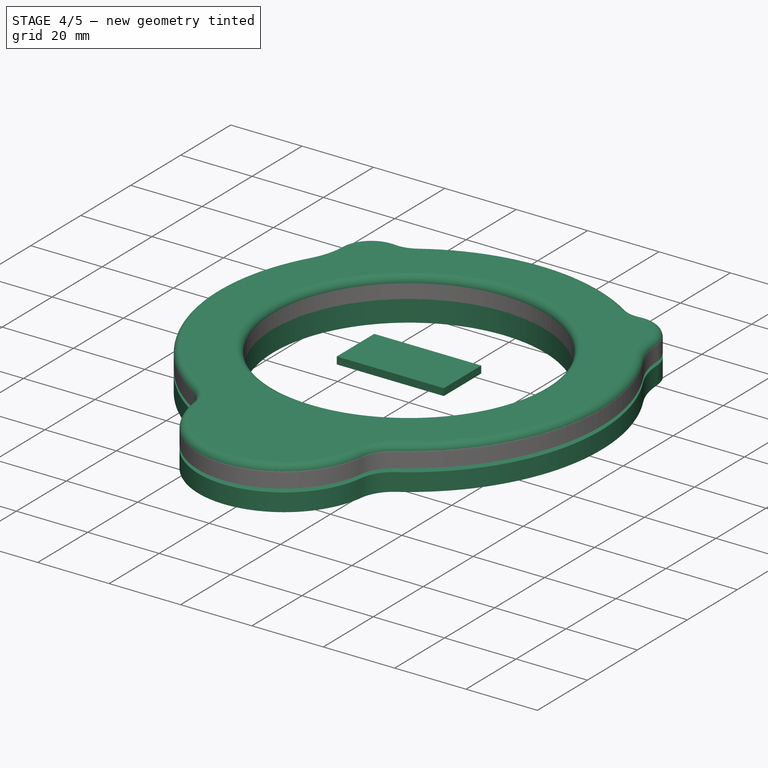
[diagram: stage 4 of 5 — iso view after this stage's code; geometry added in this stage tinted green]
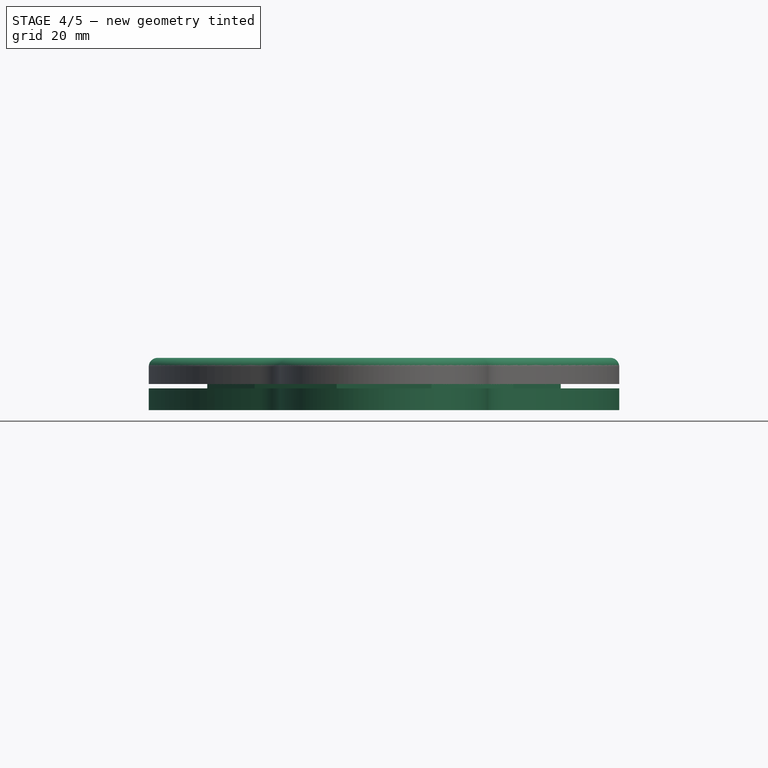
[diagram: stage 4 of 5 — front view after this stage's code; geometry added in this stage tinted green]
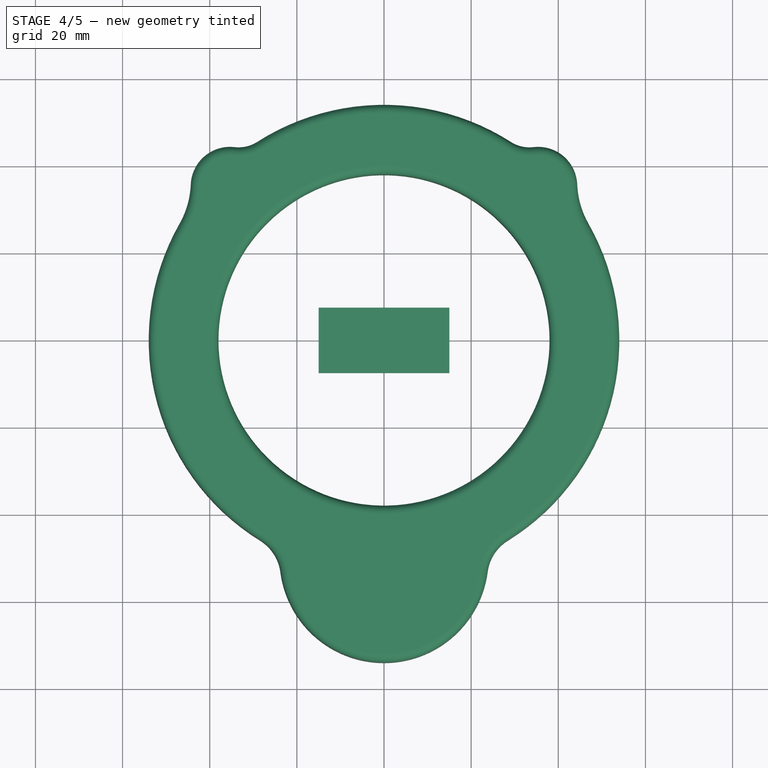
[diagram: stage 4 of 5 — top view after this stage's code; geometry added in this stage tinted green]
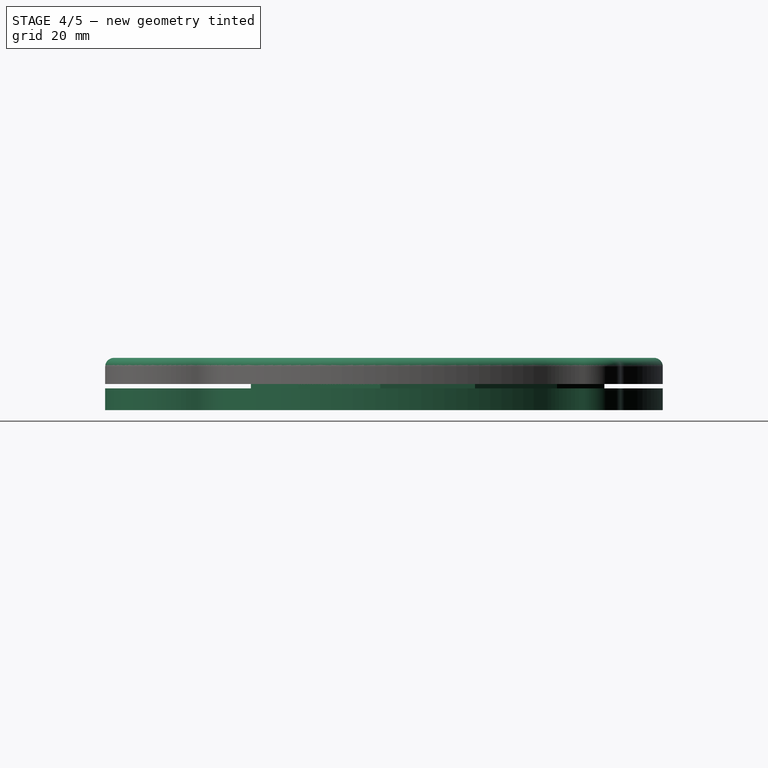
[diagram: stage 4 of 5 — right view after this stage's code; geometry added in this stage tinted green]
FEATURE [Sketcher::SketchObject] Sketch  label="outer_contour_Sketch"
  MapMode = 5
  Support = -> [XY_Plane001]
  expr: Constraints[39] = base_values.outer_diameter
  sketch-geometry (20):
    g0: ArcOfCircle CenterX=-35.3553 CenterY=35.3553 CenterZ=0 NormalX=0 NormalY=0 NormalZ=1 AngleXU=0 Radius=9 StartAngle=1.45489 EndAngle=3.09954
    g1: ArcOfCircle CenterX=35.3553 CenterY=35.3553 CenterZ=0 NormalX=0 NormalY=0 NormalZ=1 AngleXU=0 Radius=9 StartAngle=0.0420501 EndAngle=1.6867
    g2: ArcOfCircle CenterX=0 CenterY=-50 CenterZ=0 NormalX=0 NormalY=0 NormalZ=1 AngleXU=0 Radius=24 StartAngle=3.27137 EndAngle=6.15341
    g3: ArcOfCircle CenterX=33.7141 CenterY=-54.4 CenterZ=0 NormalX=0 NormalY=0 NormalZ=1 AngleXU=0 Radius=10 StartAngle=2.12561 EndAngle=3.01182
    g4: ArcOfCircle CenterX=-33.7141 CenterY=-54.4 CenterZ=0 NormalX=0 NormalY=0 NormalZ=1 AngleXU=0 Radius=10 StartAngle=0.129776 EndAngle=1.01599
    g5: ArcOfCircle CenterX=33.3894 CenterY=52.2413 CenterZ=0 NormalX=0 NormalY=0 NormalZ=1 AngleXU=0 Radius=8 StartAngle=4.14369 EndAngle=4.82829
    g6: ArcOfCircle CenterX=64.3297 CenterY=36.5744 CenterZ=0 NormalX=0 NormalY=0 NormalZ=1 AngleXU=0 Radius=20 StartAngle=3.18364 EndAngle=3.65856
    g7: ArcOfCircle CenterX=-33.3894 CenterY=52.2413 CenterZ=0 NormalX=0 NormalY=0 NormalZ=1 AngleXU=0 Radius=8 StartAngle=4.59648 EndAngle=5.28109
    g8: ArcOfCircle CenterX=-64.3297 CenterY=36.5744 CenterZ=0 NormalX=0 NormalY=0 NormalZ=1 AngleXU=0 Radius=20 StartAngle=5.76621 EndAngle=6.24114
    g9: ArcOfCircle CenterX=0 CenterY=0 CenterZ=0 NormalX=0 NormalY=0 NormalZ=1 AngleXU=0 Radius=54 StartAngle=1.0021 EndAngle=2.1395
    g10: ArcOfCircle CenterX=0 CenterY=0 CenterZ=0 NormalX=0 NormalY=0 NormalZ=1 AngleXU=0 Radius=54 StartAngle=2.62462 EndAngle=4.15758
    g11: ArcOfCircle CenterX=0 CenterY=0 CenterZ=0 NormalX=0 NormalY=0 NormalZ=1 AngleXU=0 Radius=54 StartAngle=5.2672 EndAngle=6.80016
    g12: ArcOfCircle [constr] CenterX=0 CenterY=0 CenterZ=0 NormalX=0 NormalY=0 NormalZ=1 AngleXU=0 Radius=54 StartAngle=0.516971 EndAngle=1.0021
    g13: ArcOfCircle [constr] CenterX=0 CenterY=0 CenterZ=0 NormalX=0 NormalY=0 NormalZ=1 AngleXU=0 Radius=54 StartAngle=2.1395 EndAngle=2.62462
    g14: ArcOfCircle [constr] CenterX=0 CenterY=0 CenterZ=0 NormalX=0 NormalY=0 NormalZ=1 AngleXU=0 Radius=54 StartAngle=4.15758 EndAngle=5.2672
    g15: LineSegment [constr] StartX=-35.3553 StartY=35.3553 StartZ=0 EndX=0 EndY=0 EndZ=0
    g16: LineSegment [constr] StartX=0 StartY=0 StartZ=0 EndX=35.3553 EndY=35.3553 EndZ=0
    g17: LineSegment [constr] StartX=-35.3553 StartY=35.3553 StartZ=0 EndX=35.3553 EndY=35.3553 EndZ=0
    g18: LineSegment [constr] StartX=-28.4463 StartY=-45.9 StartZ=0 EndX=28.4463 EndY=-45.9 EndZ=0
    g19: LineSegment [constr] StartX=-35.3553 StartY=35.3553 StartZ=0 EndX=-38.1838 EndY=38.1838 EndZ=0
  constraints (51):
    c: Tangent(g9,g5) = 1.5708
    c: Coincident(g5,g12)
    c: Coincident(g12,g6)
    c: Tangent(g11,g6) = 1.5708
    c: Tangent(g1,g6) = 1.5708
    c: Tangent(g1,g5) = 1.5708
    c: Tangent(g7,g9) = 1.5708
    c: Tangent(g0,g7) = 1.5708
    c: Coincident(g7,g13)
    c: Tangent(g0,g8) = 1.5708
    c: Tangent(g8,g10) = 1.5708
    c: Coincident(g8,g13)
    c: Tangent(g3,g11) = 1.5708
    c: Tangent(g2,g3) = 1.5708
    c: Tangent(g2,g4) = 1.5708
    c: Tangent(g10,g4) = 1.5708
    c: Coincident(g14,g4)
    c: Coincident(g14,g3)
    c: Equal(g5,g7)
    c: Radius(g7) = 8
    c: Coincident(g9,g10)
    c: Coincident(g9,g11)
    c: Coincident(g9,g12)
    c: Coincident(g9,g13)
    c: Coincident(g9,g-1)
    c: Coincident(g14,g9)
    c: Radius(g3) = 10
    c: PointOnObject(g2,g-2)
    c: Coincident(g15,g0)
    c: Coincident(g16,g1)
    c: Coincident(g15,g16)
    c: Coincident(g15,g9)
    c: Equal(g0,g1)
    c: Equal(g16,g15)
    c: Coincident(g17,g0)
    c: Horizontal(g17)
    c: Coincident(g1,g17)
    c: Angle(g16,g15) = 1.5708
    c: Radius(g0) = 9
    c: Diameter(g9) = 108
    c: Coincident(g18,g4)
    c: Horizontal(g18)
    c: Coincident(g18,g3)
    c: Radius(g2) = 24  'bottom_addon_outer_radius'
    c: Coincident(g19,g0)
    c: PointOnObject(g19,g13)
    c: Parallel(g19,g15)
    c: Distance(g19) = 4
    c: Equal(g8,g6)
    c: Radius(g8) = 20
    c: DistanceY(g2,g9) = 50  'bottom_addon_outer_center'
FEATURE [Sketcher::SketchObject] Sketch001  label="visible_area_contour_Sketch"
  MapMode = 5
  Support = -> [XY_Plane001]
  expr: Constraints[1] = base_values.visible_diameter / 2
  sketch-geometry (1):
    g0: Circle CenterX=0 CenterY=0 CenterZ=0 NormalX=0 NormalY=0 NormalZ=1 AngleXU=0 Radius=38
  constraints (2):
    c: Coincident(g0,g-1)
    c: Radius(g0) = 38
FEATURE [Spreadsheet::Sheet] Spreadsheet  label="base_values"
  cells = A1=outer_diameter; B1(outer_diameter)=108; A2=visible diameter; B2(visible_diameter)==outer_diameter - 2 * border_width; A3=border width; B3(border_width)=16; A4=inner_cutout_diameter; B4(inner_cutout_diameter)==outer_diameter - 2 * wall_thickness; A5=wall_thickness; B5(wall_thickness)=3; A6=plexiglas_overlap; B6(plexiglas_overlap)=2; A7=plexiglas_min_diameter; B7(plexiglas_min_diameter)==visible_diameter + plexiglas_overlap * 2; A8=plexiglas_max_diameter; B8(plexiglas_max_diameter)==outer_diameter - 2 * (wall_thickness + gap_for_leds); A9=gap_for_leds; B9(gap_for_leds)=9; A10=plexiglas_thickness; B10(plexiglas_thickness)=1.5; A11=bottom_tap radius; B11(bottom_tap_radius)=24; D11=bottom tap pos radius; E11(bottom_tap_pos_radius)=50; A12=tap_corner_radius; B12(tap_corner_radius)=5; A14=layer thickness; B14(layer_thickness)=4; D14=layer thickness alu; E14(layer_thickness_alu)=2; A15=layer thickness back; B15(layer_thickness_back)=6; A16=paper_thickness; B16(paper_thickness)=0.29999999999999999; A17=pcb radius; B17(pcb_radius)=44; D17=sensor radius; E17(sensor_radius)=53; A18=tolerance; B18(tolerance)=0.5; A19=mounting_hole_radius; B19(mounting_hole_radius)=44; A20=mounting_hole_angle; B20(mounting_hole_angle)=-35
FEATURE [PartDesign::Pad] Pad
  Length = 6
  Length2 = 100
  Profile = -> Sketch
  Reversed = true
  Type = 0
  expr: Length = base_values.layer_thickness_back
FEATURE [PartDesign::Pocket] Pocket
  BaseFeature = -> Pad
  Length = 5
  Length2 = 100
  Profile = -> Sketch001
  Type = 1
FEATURE [PartDesign::Pad] Pad001
  Length = 6
  Length2 = 100
  Profile = -> Sketch
  Type = 0
  expr: Length = base_values.layer_thickness_back
FEATURE [PartDesign::Pocket] Pocket001
  BaseFeature = -> Pad001
  Length = 5
  Length2 = 100
  Profile = -> Sketch001
  Reversed = true
  Type = 1
FEATURE [Sketcher::SketchObject] Sketch002  label="plexiglas_maxout_Sketch"
  MapMode = 5
  Support = -> [XY_Plane001]
  expr: Constraints[39] = base_values.plexiglas_max_diameter / 2
  expr: Constraints[1] = base_values.plexiglas_min_diameter / 2
  sketch-geometry (15):
    g0: Circle [constr] CenterX=0 CenterY=0 CenterZ=0 NormalX=0 NormalY=0 NormalZ=1 AngleXU=0 Radius=40
    g1: Circle [constr] CenterX=0 CenterY=0 CenterZ=0 NormalX=0 NormalY=0 NormalZ=1 AngleXU=0 Radius=80
    g2: LineSegment StartX=40.5689 StartY=-10.8704 StartZ=0 EndX=40.5689 EndY=10.8704 EndZ=0
    g3: LineSegment StartX=40.5689 StartY=10.8704 StartZ=0 EndX=29.6985 EndY=29.6985 EndZ=0
    g4: LineSegment StartX=29.6985 StartY=29.6985 StartZ=0 EndX=10.8704 EndY=40.5689 EndZ=0
    g5: LineSegment StartX=10.8704 StartY=40.5689 StartZ=0 EndX=-10.8704 EndY=40.5689 EndZ=0
    g6: LineSegment StartX=-10.8704 StartY=40.5689 StartZ=0 EndX=-29.6985 EndY=29.6985 EndZ=0
    g7: LineSegment StartX=-29.6985 StartY=29.6985 StartZ=0 EndX=-40.5689 EndY=10.8704 EndZ=0
    g8: LineSegment StartX=-40.5689 StartY=10.8704 StartZ=0 EndX=-40.5689 EndY=-10.8704 EndZ=0
    g9: LineSegment StartX=-40.5689 StartY=-10.8704 StartZ=0 EndX=-29.6985 EndY=-29.6985 EndZ=0
    g10: LineSegment StartX=-29.6985 StartY=-29.6985 StartZ=0 EndX=-10.8704 EndY=-40.5689 EndZ=0
    g11: LineSegment StartX=-10.8704 StartY=-40.5689 StartZ=0 EndX=10.8704 EndY=-40.5689 EndZ=0
    g12: LineSegment StartX=10.8704 StartY=-40.5689 StartZ=0 EndX=29.6985 EndY=-29.6985 EndZ=0
    g13: LineSegment StartX=29.6985 StartY=-29.6985 StartZ=0 EndX=40.5689 EndY=-10.8704 EndZ=0
    g14: Circle [constr] CenterX=0 CenterY=0 CenterZ=0 NormalX=0 NormalY=0 NormalZ=1 AngleXU=0 Radius=42
  constraints (33):
    c: Coincident(g0,g-1)
    c: Radius(g0) = 40
    c: Radius(g1) = 80
    c: Coincident(g2,g3)
    c: Coincident(g3,g4)
    c: Coincident(g4,g5)
    c: Coincident(g5,g6)
    c: Coincident(g6,g7)
    c: Coincident(g7,g8)
    c: Coincident(g8,g9)
    c: Coincident(g9,g10)
    c: Coincident(g10,g11)
    c: Coincident(g11,g12)
    c: Coincident(g12,g13)
    c: Coincident(g13,g2)
    c: Equal(g2, g3-g13) x11
    c: PointOnObject(g2,g14)
    c: PointOnObject(g3,g14)
    c: PointOnObject(g4,g14)
    c: PointOnObject(g5,g14)
    c: PointOnObject(g6,g14)
    c: PointOnObject(g7,g14)
    c: PointOnObject(g8,g14)
    c: PointOnObject(g9,g14)
    c: PointOnObject(g10,g14)
    c: PointOnObject(g11,g14)
    c: PointOnObject(g12,g14)
    c: PointOnObject(g13,g14)
    c: Horizontal(g5)
    c: Radius(g14) = 42
    c: Coincident(g14,g1)
    c: Coincident(g-1,g1)
    c: Distance(g11) = 21.7408
FEATURE [Sketcher::SketchObject] Sketch004  label="mounting_holes_Sketch"
  MapMode = 5
  Support = -> [XY_Plane001]
  expr: Constraints[56] = base_values.mounting_hole_radius
  expr: Constraints[33] = base_values.wall_thickness
  expr: Constraints[28] = base_values.mounting_hole_angle
  expr: Constraints[30] = base_values.outer_diameter / 2 - base_values.wall_thickness
  sketch-geometry (21):
    g0: LineSegment [constr] StartX=-43.8326 StartY=-3.83485 StartZ=0 EndX=-18.5952 EndY=-39.8775 EndZ=0
    g1: LineSegment [constr] StartX=-18.5952 StartY=-39.8775 StartZ=0 EndX=25.2374 EndY=-36.0427 EndZ=0
    g2: LineSegment [constr] StartX=25.2374 StartY=-36.0427 StartZ=0 EndX=43.8326 EndY=3.83485 EndZ=0
    g3: LineSegment [constr] StartX=43.8326 StartY=3.83485 StartZ=0 EndX=18.5952 EndY=39.8775 EndZ=0
    g4: LineSegment [constr] StartX=18.5952 StartY=39.8775 StartZ=0 EndX=-25.2374 EndY=36.0427 EndZ=0
    g5: LineSegment [constr] StartX=-25.2374 StartY=36.0427 StartZ=0 EndX=-43.8326 EndY=-3.83485 EndZ=0
    g6: Circle [constr] CenterX=0 CenterY=0 CenterZ=0 NormalX=0 NormalY=0 NormalZ=1 AngleXU=0 Radius=44
    g7: LineSegment [constr] StartX=0 StartY=0 StartZ=0 EndX=-25.2374 EndY=36.0427 EndZ=0
    g8: LineSegment [constr] StartX=0 StartY=0 StartZ=0 EndX=0 EndY=44 EndZ=0
    g9: Circle CenterX=-25.2374 CenterY=36.0427 CenterZ=0 NormalX=0 NormalY=0 NormalZ=1 AngleXU=0 Radius=1.55
    g10: LineSegment [constr] StartX=-29.2524 StartY=41.7768 StartZ=0 EndX=-25.2374 EndY=36.0427 EndZ=0
    g11: Circle [constr] CenterX=-25.2374 CenterY=36.0427 CenterZ=0 NormalX=0 NormalY=0 NormalZ=1 AngleXU=0 Radius=3.5
    g12: LineSegment [constr] StartX=-30.9731 StartY=44.2342 StartZ=0 EndX=-29.2524 EndY=41.7768 EndZ=0
    g13: LineSegment [constr] StartX=-22.6362 StartY=37.864 StartZ=0 EndX=-25.5141 EndY=39.206 EndZ=0
    g14: LineSegment [constr] StartX=-25.5141 StartY=39.206 StartZ=0 EndX=-28.1153 EndY=37.3847 EndZ=0
    g15: LineSegment [constr] StartX=-28.1153 StartY=37.3847 StartZ=0 EndX=-27.8385 EndY=34.2213 EndZ=0
    g16: LineSegment [constr] StartX=-27.8385 StartY=34.2213 StartZ=0 EndX=-24.9606 EndY=32.8793 EndZ=0
    g17: LineSegment [constr] StartX=-24.9606 StartY=32.8793 StartZ=0 EndX=-22.3594 EndY=34.7007 EndZ=0
    g18: LineSegment [constr] StartX=-22.3594 StartY=34.7007 StartZ=0 EndX=-22.6362 EndY=37.864 EndZ=0
    g19: Circle [constr] CenterX=-25.2374 CenterY=36.0427 CenterZ=0 NormalX=0 NormalY=0 NormalZ=1 AngleXU=0 Radius=3.17543
    g20: LineSegment [constr] StartX=-28.1153 StartY=37.3847 StartZ=0 EndX=-22.6362 EndY=37.864 EndZ=0
  constraints (49):
    c: Coincident(g0,g1)
    c: Coincident(g1,g2)
    c: Coincident(g2,g3)
    c: Coincident(g3,g4)
    c: Coincident(g4,g5)
    c: Coincident(g5,g0)
    c: Equal(g0, g1-g5) x5
    c: PointOnObject(g0,g6)
    c: PointOnObject(g1,g6)
    c: PointOnObject(g2,g6)
    c: PointOnObject(g3,g6)
    c: PointOnObject(g4,g6)
    c: PointOnObject(g5,g6)
    c: Coincident(g-1,g6)
    c: Coincident(g7,g-1)
    c: Coincident(g8,g-1)
    c: PointOnObject(g8,g6)
    c: Coincident(g7,g4)
    c: Coincident(g9,g4)
    c: Coincident(g10,g9)
    c: Parallel(g10,g7)
    c: Coincident(g11,g9)
    c: Diameter(g11) = 7
    c: Diameter(g9) = 3.1
    c: Angle(g7,g8) = -0.610865
    c: Vertical(g8)
    c: Distance(g-1,g10) = 51
    c: Coincident(g12,g10)
    c: Parallel(g12,g7)
    c: Distance(g12) = 3
    c: Coincident(g13,g14)
    c: Coincident(g14,g15)
    c: Coincident(g15,g16)
    c: Coincident(g16,g17)
    c: Coincident(g17,g18)
    c: Coincident(g18,g13)
    c: Equal(g13, g14-g18) x5
    c: PointOnObject(g13,g19)
    c: PointOnObject(g14,g19)
    c: PointOnObject(g15,g19)
    c: PointOnObject(g16,g19)
    c: PointOnObject(g17,g19)
    c: PointOnObject(g18,g19)
    c: Coincident(g20,g14)
    c: Coincident(g20,g13)
    c: Distance(g20) = 5.5
    c: Coincident(g19,g9)
    c: Perpendicular(g10,g14)
    c: Distance(g-1,g9) = 44
FEATURE [PartDesign::Hole] Hole
  BaseFeature = -> Pocket
  Depth = 25
  DepthType = 1
  Diameter = 3.3
  DrillPoint = 1
  DrillPointAngle = 118
  HoleCutCountersinkAngle = 90
  HoleCutDepth = 0
  HoleCutDiameter = 3
  HoleCutType = 0
  ModelActualThread = false
  Profile = -> Sketch004
  Tapered = false
  TaperedAngle = 90
  ThreadAngle = 60
  ThreadClass = 0
  ThreadCutOffInner = 0.0541266
  ThreadCutOffOuter = 0.108253
  ThreadDirection = 1
  ThreadFit = 0
  ThreadPitch = 0.5
  ThreadSize = 3
  ThreadType = 1
  Threaded = false
FEATURE [PartDesign::PolarPattern] PolarPattern001
  Angle = 360
  Axis = -> Sketch004 [N_Axis]
  BaseFeature = -> Hole
  Occurrences = 6
  Originals = -> [Hole]
FEATURE [PartDesign::Pocket] Pocket013
  BaseFeature = -> PolarPattern001
  Length = 4
  Length2 = 100
  Profile = -> Sketch016
  Type = 0
FEATURE [App::Part] Part010  label="plexiglas"
  Group = -> [Clone013,Clone009,Clone,Body005,Body006]
  License = CC BY 3.0
  LicenseURL = http://creativecommons.org/licenses/by/3.0/
  Origin = -> Origin032
FEATURE [Sketcher::SketchObject] Sketch020  label="layer_separator_contour_Sketch"
  MapMode = 5
  Support = -> [XY_Plane001]
  expr: Constraints[39] = base_values.plexiglas_max_diameter
  expr: Constraints[1] = base_values.visible_diameter
  sketch-geometry (14):
    g0: Circle CenterX=0 CenterY=0 CenterZ=0 NormalX=0 NormalY=0 NormalZ=1 AngleXU=0 Radius=38
    g1: LineSegment StartX=40.5689 StartY=-10.8704 StartZ=0 EndX=40.5689 EndY=10.8704 EndZ=0
    g2: LineSegment StartX=40.5689 StartY=10.8704 StartZ=0 EndX=29.6985 EndY=29.6985 EndZ=0
    g3: LineSegment StartX=29.6985 StartY=29.6985 StartZ=0 EndX=10.8704 EndY=40.5689 EndZ=0
    g4: LineSegment StartX=10.8704 StartY=40.5689 StartZ=0 EndX=-10.8704 EndY=40.5689 EndZ=0
    g5: LineSegment StartX=-10.8704 StartY=40.5689 StartZ=0 EndX=-29.6985 EndY=29.6985 EndZ=0
    g6: LineSegment StartX=-29.6985 StartY=29.6985 StartZ=0 EndX=-40.5689 EndY=10.8704 EndZ=0
    g7: LineSegment StartX=-40.5689 StartY=10.8704 StartZ=0 EndX=-40.5689 EndY=-10.8704 EndZ=0
    g8: LineSegment StartX=-40.5689 StartY=-10.8704 StartZ=0 EndX=-29.6985 EndY=-29.6985 EndZ=0
    g9: LineSegment StartX=-29.6985 StartY=-29.6985 StartZ=0 EndX=-10.8704 EndY=-40.5689 EndZ=0
    g10: LineSegment StartX=-10.8704 StartY=-40.5689 StartZ=0 EndX=10.8704 EndY=-40.5689 EndZ=0
    g11: LineSegment StartX=10.8704 StartY=-40.5689 StartZ=0 EndX=29.6985 EndY=-29.6985 EndZ=0
    g12: LineSegment StartX=29.6985 StartY=-29.6985 StartZ=0 EndX=40.5689 EndY=-10.8704 EndZ=0
    g13: Circle [constr] CenterX=0 CenterY=0 CenterZ=0 NormalX=0 NormalY=0 NormalZ=1 AngleXU=0 Radius=42
  constraints (30):
    c: Coincident(g0,g-1)
    c: Diameter(g0) = 76
    c: Coincident(g1,g2)
    c: Coincident(g2,g3)
    c: Coincident(g3,g4)
    c: Coincident(g4,g5)
    c: Coincident(g5,g6)
    c: Coincident(g6,g7)
    c: Coincident(g7,g8)
    c: Coincident(g8,g9)
    c: Coincident(g9,g10)
    c: Coincident(g10,g11)
    c: Coincident(g11,g12)
    c: Coincident(g12,g1)
    c: Equal(g1, g2-g12) x11
    c: PointOnObject(g1,g13)
    c: PointOnObject(g2,g13)
    c: PointOnObject(g3,g13)
    c: PointOnObject(g4,g13)
    c: PointOnObject(g5,g13)
    c: PointOnObject(g6,g13)
    c: PointOnObject(g7,g13)
    c: PointOnObject(g8,g13)
    c: PointOnObject(g9,g13)
    c: PointOnObject(g10,g13)
    c: PointOnObject(g11,g13)
    c: PointOnObject(g12,g13)
    c: Coincident(g13,g0)
    c: Horizontal(g10)
    c: Diameter(g13) = 84
FEATURE [PartDesign::Pad] Pad007
  Length = 0.3
  Length2 = 100
  Midplane = true
  Profile = -> Sketch020
  Type = 0
  expr: Length = base_values.paper_thickness
FEATURE [PartDesign::Body] Body019  label="layer_separator_TOP_L1_Body"
  BaseFeature = -> Body015
  Group = -> [Clone022]
  Origin = -> Origin038
  Placement = pos=(0,0,8) rot=(0,0,1;0rad)
  Tip = -> Clone022
FEATURE [App::Part] Part011  label="paper_separator"
  Group = -> [Body015,Body016,Body017,Body018,Body019]
  License = CC BY 3.0
  LicenseURL = http://creativecommons.org/licenses/by/3.0/
  Origin = -> Origin033
FEATURE [PartDesign::Fillet] Fillet
  Base = -> Pocket001 [Face5]
  BaseFeature = -> Pocket001
  Radius = 2
FEATURE [Sketcher::SketchObject] Sketch021  label="outer_pocket_area_Sketch"
  MapMode = 5
  Support = -> [XY_Plane001]
  expr: Constraints[42] = base_values.outer_diameter
  expr: Constraints[38] = base_values.plexiglas_max_diameter / 2
  expr: Constraints[1] = base_values.plexiglas_min_diameter / 2
  sketch-geometry (15):
    g0: Circle [constr] CenterX=0 CenterY=0 CenterZ=0 NormalX=0 NormalY=0 NormalZ=1 AngleXU=0 Radius=40
    g1: LineSegment StartX=40.5689 StartY=-10.8704 StartZ=0 EndX=40.5689 EndY=10.8704 EndZ=0
    g2: LineSegment StartX=40.5689 StartY=10.8704 StartZ=0 EndX=29.6985 EndY=29.6985 EndZ=0
    g3: LineSegment StartX=29.6985 StartY=29.6985 StartZ=0 EndX=10.8704 EndY=40.5689 EndZ=0
    g4: LineSegment StartX=10.8704 StartY=40.5689 StartZ=0 EndX=-10.8704 EndY=40.5689 EndZ=0
    g5: LineSegment StartX=-10.8704 StartY=40.5689 StartZ=0 EndX=-29.6985 EndY=29.6985 EndZ=0
    g6: LineSegment StartX=-29.6985 StartY=29.6985 StartZ=0 EndX=-40.5689 EndY=10.8704 EndZ=0
    g7: LineSegment StartX=-40.5689 StartY=10.8704 StartZ=0 EndX=-40.5689 EndY=-10.8704 EndZ=0
    g8: LineSegment StartX=-40.5689 StartY=-10.8704 StartZ=0 EndX=-29.6985 EndY=-29.6985 EndZ=0
    g9: LineSegment StartX=-29.6985 StartY=-29.6985 StartZ=0 EndX=-10.8704 EndY=-40.5689 EndZ=0
    g10: LineSegment StartX=-10.8704 StartY=-40.5689 StartZ=0 EndX=10.8704 EndY=-40.5689 EndZ=0
    g11: LineSegment StartX=10.8704 StartY=-40.5689 StartZ=0 EndX=29.6985 EndY=-29.6985 EndZ=0
    g12: LineSegment StartX=29.6985 StartY=-29.6985 StartZ=0 EndX=40.5689 EndY=-10.8704 EndZ=0
    g13: Circle [constr] CenterX=0 CenterY=0 CenterZ=0 NormalX=0 NormalY=0 NormalZ=1 AngleXU=0 Radius=42
    g14: Circle CenterX=0 CenterY=0 CenterZ=0 NormalX=0 NormalY=0 NormalZ=1 AngleXU=0 Radius=108
  constraints (33):
    c: Coincident(g0,g-1)
    c: Radius(g0) = 40
    c: Coincident(g1,g2)
    c: Coincident(g2,g3)
    c: Coincident(g3,g4)
    c: Coincident(g4,g5)
    c: Coincident(g5,g6)
    c: Coincident(g6,g7)
    c: Coincident(g7,g8)
    c: Coincident(g8,g9)
    c: Coincident(g9,g10)
    c: Coincident(g10,g11)
    c: Coincident(g11,g12)
    c: Coincident(g12,g1)
    c: Equal(g1, g2-g12) x11
    c: PointOnObject(g1,g13)
    c: PointOnObject(g2,g13)
    c: PointOnObject(g3,g13)
    c: PointOnObject(g4,g13)
    c: PointOnObject(g5,g13)
    c: PointOnObject(g6,g13)
    c: PointOnObject(g7,g13)
    c: PointOnObject(g8,g13)
    c: PointOnObject(g9,g13)
    c: PointOnObject(g10,g13)
    c: PointOnObject(g11,g13)
    c: PointOnObject(g12,g13)
    c: Horizontal(g4)
    c: Radius(g13) = 42
    c: Distance(g10) = 21.7408
    c: Coincident(g13,g-1)
    c: Coincident(g14,g-1)
    c: Radius(g14) = 108
FEATURE [PartDesign::Pocket] Pocket028
  BaseFeature = -> Pocket013
  Length = 1
  Length2 = 100
  Profile = -> Sketch021
  Type = 0
FEATURE [PartDesign::Pocket] Pocket030  label="mounting_nut_Pocket030"
  BaseFeature = -> Fillet
  Length = 3.5
  Length2 = 100
  Profile = -> Sketch006
  Reversed = true
  Type = 0
FEATURE [Sketcher::SketchObject] Sketch025  label="ledboard_top_cutout_Sketch"
  MapMode = 5
  Support = -> [XY_Plane001]
  expr: Constraints[15] = 10.75 + base_values.tolerance
  expr: Constraints[9] = base_values.pcb_radius
  expr: Constraints[4] = 1.6000000000000001 + 0.94999999999999996 + base_values.tolerance
  expr: Constraints[5] = 33 + 2 * base_values.tolerance
  sketch-geometry (6):
    g0: LineSegment StartX=-22.75 StartY=44 StartZ=0 EndX=11.25 EndY=44 EndZ=0
    g1: LineSegment StartX=11.25 StartY=44 StartZ=0 EndX=11.25 EndY=40.95 EndZ=0
    g2: LineSegment StartX=11.25 StartY=40.95 StartZ=0 EndX=-10.75 EndY=40.95 EndZ=0
    g3: LineSegment [constr] StartX=0 StartY=44 StartZ=0 EndX=0 EndY=0 EndZ=0
    g4: LineSegment StartX=-10.75 StartY=40.95 StartZ=0 EndX=-22.75 EndY=40.95 EndZ=0
    g5: LineSegment StartX=-22.75 StartY=40.95 StartZ=0 EndX=-22.75 EndY=44 EndZ=0
  constraints (19):
    c: Coincident(g0,g1)
    c: Horizontal(g0)
    c: Horizontal(g2)
    c: Vertical(g1)
    c: DistanceY(g2,g0) = 3.05
    c: DistanceX(g0,g0) = 34
    c: Vertical(g3)
    c: Coincident(g3,g-1)
    c: PointOnObject(g3,g0)
    c: DistanceY(g3,g3) = 44
    c: DistanceX(g0,g3) = 22.75
    c: DistanceX(g2,g2) = 22
    c: Coincident(g4,g5)
    c: Vertical(g5)
    c: Coincident(g5,g0)
    c: DistanceX(g3,g0) = 11.25
    c: Coincident(g1,g2)
    c: PointOnObject(g4,g2)
    c: Coincident(g4,g2)
FEATURE [PartDesign::PolarPattern] PolarPattern015
  Angle = 360
  Axis = -> Sketch006 [N_Axis]
  BaseFeature = -> Pocket030
  Occurrences = 6
  Originals = -> [Pocket030]
FEATURE [PartDesign::Pocket] Pocket033  label="mounting_holes_Pocket033"
  BaseFeature = -> PolarPattern015
  Length = 4.5
  Length2 = 100
  Profile = -> Sketch004
  Reversed = true
  Type = 0
FEATURE [PartDesign::PolarPattern] PolarPattern014
  Angle = 360
  Axis = -> Sketch004 [N_Axis]
  BaseFeature = -> Pocket033
  Occurrences = 6
  Originals = -> [Pocket033]
FEATURE [Sketcher::SketchObject] Sketch028  label="bottom_tap_cutout_tb_Sketch"
  MapMode = 5
  Support = -> [XY_Plane001]
  expr: Constraints[15] = base_values.outer_diameter / 2 - base_values.wall_thickness
  expr: Constraints[4] = base_values.pcb_radius + 4
  expr: Constraints[6] = base_values.bottom_tap_pos_radius
  expr: Constraints[5] = Spreadsheet.bottom_tap_radius - base_values.wall_thickness
  sketch-geometry (12):
    g0: LineSegment [constr] StartX=-19 StartY=-48 StartZ=0 EndX=19 EndY=-48 EndZ=0
    g1: LineSegment [constr] StartX=0 StartY=0 StartZ=0 EndX=0 EndY=-48 EndZ=0
    g2: ArcOfCircle CenterX=0 CenterY=-50 CenterZ=0 NormalX=0 NormalY=0 NormalZ=1 AngleXU=0 Radius=21 StartAngle=3.14159 EndAngle=6.28319
    g3: ArcOfCircle [constr] CenterX=-19 CenterY=-50 CenterZ=0 NormalX=0 NormalY=0 NormalZ=1 AngleXU=0 Radius=2 StartAngle=1.5708 EndAngle=3.14159
    g4: ArcOfCircle [constr] CenterX=19 CenterY=-50 CenterZ=0 NormalX=0 NormalY=0 NormalZ=1 AngleXU=0 Radius=2 StartAngle=0 EndAngle=1.5708
    g5: ArcOfCircle CenterX=0 CenterY=0 CenterZ=0 NormalX=0 NormalY=0 NormalZ=1 AngleXU=0 Radius=51 StartAngle=5.20235 EndAngle=5.32325
    g6: ArcOfCircle CenterX=0 CenterY=0 CenterZ=0 NormalX=0 NormalY=0 NormalZ=1 AngleXU=0 Radius=51 StartAngle=4.10152 EndAngle=4.22243
    g7: ArcOfCircle CenterX=0 CenterY=0 CenterZ=0 NormalX=0 NormalY=0 NormalZ=1 AngleXU=0 Radius=49 StartAngle=4.10152 EndAngle=5.32325
    g8: LineSegment StartX=28.1052 StartY=-40.1385 StartZ=0 EndX=29.2524 EndY=-41.7768 EndZ=0
    g9: LineSegment StartX=-29.2524 StartY=-41.7768 StartZ=0 EndX=-28.1052 EndY=-40.1385 EndZ=0
    g10: ArcOfCircle CenterX=-26.6667 CenterY=-50 CenterZ=0 NormalX=0 NormalY=0 NormalZ=1 AngleXU=0 Radius=5.66667 StartAngle=1e-16 EndAngle=1.08084
    g11: ArcOfCircle CenterX=26.6667 CenterY=-50 CenterZ=0 NormalX=0 NormalY=0 NormalZ=1 AngleXU=0 Radius=5.66667 StartAngle=2.06075 EndAngle=3.14159
  constraints (29):
    c: Horizontal(g0)
    c: Coincident(g1,g-1)
    c: Vertical(g1)
    c: Symmetric(g0,g0,g1)
    c: DistanceY(g1,g1) = 48
    c: Radius(g2) = 21
    c: DistanceY(g2,g-1) = 50
    c: PointOnObject(g2,g-2)
    c: Tangent(g4,g0) = 1.5708
    c: Tangent(g4,g2) = -1.5708
    c: Tangent(g3,g2) = -1.5708
    c: Tangent(g3,g0) = 1.5708
    c: Radius(g3) = 2
    c: Coincident(g5,g-1)
    c: Coincident(g6,g5)
    c: Radius(g5) = 51
    c: Coincident(g9,g7)
    c: Perpendicular(g9,g6) = 4.71239
    c: Coincident(g8,g7)
    c: Perpendicular(g8,g5) = 1.5708
    c: Tangent(g11,g5) = 1.5708
    c: Tangent(g2,g11) = 1.5708
    c: Tangent(g10,g2) = 1.5708
    c: Tangent(g6,g10) = 1.5708
    c: Equal(g9,g8)
    c: Distance(g8) = 2
    c: Coincident(g5,g7)
    c: Angle(g8,g-2) = 2.53073
    c: Angle(g-2,g9) = 2.53073
FEATURE [PartDesign::Pocket] Pocket046
  BaseFeature = -> Pocket028
  Length = 4
  Length2 = 100
  Profile = -> Sketch028
  Type = 0
FEATURE [PartDesign::Body] Body002  label="front_Body"
  Group = -> [Pad001,Pocket001,Fillet,Pocket030,PolarPattern015,Pocket033,PolarPattern014,Pocket039,PolarPattern013,Pocket032,Pocket029,Pocket042,Pocket043,Pocket048,Pocket047]
  Origin = -> Origin003
  Placement = pos=(0,0,8) rot=(0,0,1;0rad)
  Tip = -> Pocket047
FEATURE [TechDraw::DrawViewPart] View007
  CoarseView = false
  Direction = (0,0,1)
  Focus = 100
  HardHidden = false
  IsoCount = 0
  IsoHidden = false
  IsoVisible = false
  LockPosition = false
  Perspective = false
  Rotation = 0
  ScaleType = 0
  SeamHidden = false
  SeamVisible = false
  SmoothHidden = false
  SmoothVisible = false
  Source = -> [Body002]
  X = 147.794
  Y = 104.824
FEATURE [TechDraw::DrawPage] Page002  label="front_Page"
  KeepUpdated = true
  ProjectionType = 0
  Template = -> Template002
  Views = -> [View007]
FEATURE [PartDesign::Pad] Pad014
  Length = 1.9
  Length2 = 100
  Profile = -> Sketch029
  Type = 0
FEATURE [PartDesign::Body] Body025  label="sensor_pcb_Body025"
  Group = -> [Pad014]
  Origin = -> Origin047
  Placement = pos=(0,0,9.5) rot=(0,0,1;0rad)
FEATURE [Sketcher::SketchObject] Sketch030
  MapMode = 5
  Support = -> [XY_Plane048]
  sketch-geometry (4):
    g0: LineSegment StartX=-15 StartY=7.5 StartZ=0 EndX=15 EndY=7.5 EndZ=0
    g1: LineSegment StartX=15 StartY=7.5 StartZ=0 EndX=15 EndY=-7.5 EndZ=0
    g2: LineSegment StartX=15 StartY=-7.5 StartZ=0 EndX=-15 EndY=-7.5 EndZ=0
    g3: LineSegment StartX=-15 StartY=-7.5 StartZ=0 EndX=-15 EndY=7.5 EndZ=0
  constraints (11):
    c: Coincident(g0,g1)
    c: Coincident(g1,g2)
    c: Coincident(g2,g3)
    c: Coincident(g3,g0)
    c: Horizontal(g0)
    c: Horizontal(g2)
    c: Vertical(g1)
    c: Vertical(g3)
    c: Symmetric(g0,g2,g-1)
    c: DistanceX(g0,g0) = 30
    c: DistanceY(g1,g1) = 15
FEATURE [PartDesign::Pad] Pad015
  Length = 2
  Length2 = 100
  Profile = -> Sketch030
  Type = 0
FEATURE [PartDesign::Body] Body026  label="communication_pcb_Body026"
  Group = -> [Sketch030,Pad015]
  Origin = -> Origin048
  Placement = pos=(0,-56,-2) rot=(0,0,1;0rad)
  Tip = -> Pad015
FEATURE [Sketcher::SketchObject] Sketch031  label="bottom_tap_pcb_Sketch"
  MapMode = 5
  Support = -> [XY_Plane049]
  expr: Constraints[4] = base_values.pcb_radius + 4
  expr: Constraints[6] = base_values.bottom_tap_pos_radius
  expr: Constraints[5] = Spreadsheet.bottom_tap_radius - base_values.wall_thickness
  sketch-geometry (13):
    g0: LineSegment StartX=-19 StartY=-48 StartZ=0 EndX=19 EndY=-48 EndZ=0
    g1: LineSegment [constr] StartX=0 StartY=0 StartZ=0 EndX=0 EndY=-48 EndZ=0
    g2: ArcOfCircle [constr] CenterX=0 CenterY=-50 CenterZ=0 NormalX=0 NormalY=0 NormalZ=1 AngleXU=0 Radius=21 StartAngle=3.14159 EndAngle=6.28319
    g3: ArcOfCircle [constr] CenterX=-19 CenterY=-50 CenterZ=0 NormalX=0 NormalY=0 NormalZ=1 AngleXU=0 Radius=2 StartAngle=1.5708 EndAngle=3.14159
    g4: ArcOfCircle [constr] CenterX=19 CenterY=-50 CenterZ=0 NormalX=0 NormalY=0 NormalZ=1 AngleXU=0 Radius=2 StartAngle=-9e-16 EndAngle=1.5708
    g5: LineSegment StartX=-19 StartY=-48 StartZ=0 EndX=-19 EndY=-57 EndZ=0
    g6: LineSegment StartX=-19 StartY=-57 StartZ=0 EndX=-14 EndY=-65 EndZ=0
    g7: LineSegment StartX=14 StartY=-65 StartZ=0 EndX=19 EndY=-57 EndZ=0
    g8: LineSegment StartX=19 StartY=-57 StartZ=0 EndX=19 EndY=-48 EndZ=0
    g9: LineSegment StartX=-14 StartY=-65 StartZ=0 EndX=-7 EndY=-69 EndZ=0
    g10: LineSegment StartX=-7 StartY=-69 StartZ=0 EndX=7 EndY=-69 EndZ=0
    g11: LineSegment StartX=7 StartY=-69 StartZ=0 EndX=14 EndY=-65 EndZ=0
    g12: LineSegment [constr] StartX=-14 StartY=-65 StartZ=0 EndX=14 EndY=-65 EndZ=0
  constraints (36):
    c: Horizontal(g0)
    c: Coincident(g1,g-1)
    c: Vertical(g1)
    c: Symmetric(g0,g0,g1)
    c: DistanceY(g1,g1) = 48
    c: Radius(g2) = 21
    c: DistanceY(g2,g-1) = 50
    c: PointOnObject(g2,g-2)
    c: Tangent(g4,g0) = 1.5708
    c: Tangent(g4,g2) = -1.5708
    c: Tangent(g3,g2) = -1.5708
    c: Tangent(g3,g0) = 1.5708
    c: Radius(g3) = 2
    c: Coincident(g0,g5)
    c: Vertical(g5)
    c: Coincident(g5,g6)
    c: Coincident(g7,g8)
    c: Coincident(g8,g0)
    c: Vertical(g8)
    c: Equal(g7,g6)
    c: Equal(g5,g8)
    c: DistanceY(g8,g8) = 9
    c: Coincident(g6,g9)
    c: Coincident(g9,g10)
    c: Horizontal(g10)
    c: Coincident(g10,g11)
    c: Coincident(g11,g7)
    c: Equal(g11,g9)
    c: DistanceY(g10,g0) = 21
    c: DistanceY(g7,g0) = 17
    c: Coincident(g12,g6)
    c: Coincident(g12,g7)
    c: Horizontal(g12)
    c: DistanceX(g12,g12) = 28
    c: DistanceX(g0,g0) = 38
    c: DistanceX(g10,g10) = 14
FEATURE [PartDesign::Pad] Pad016
  Length = 2
  Length2 = 100
  Profile = -> Sketch031
  Type = 0
FEATURE [PartDesign::Body] Body027  label="controller_pcb_Body027"
  Group = -> [Sketch031,Pad016]
  Origin = -> Origin049
  Placement = pos=(0,0,1) rot=(0,0,1;0rad)
  Tip = -> Pad016
FEATURE [TechDraw::DrawSVGTemplate] Template006
  Height = 210
  Orientation = 1
  Width = 297
FEATURE [TechDraw::DrawViewPart] View009
  CoarseView = false
  Direction = (0,0,1)
  Focus = 100
  HardHidden = false
  IsoCount = 0
  IsoHidden = false
  IsoVisible = false
  LockPosition = false
  Perspective = false
  Rotation = 0
  ScaleType = 0
  SeamHidden = false
  SeamVisible = false
  SmoothHidden = false
  SmoothVisible = false
  Source = -> [Body027]
  X = 148.5
  Y = 105
FEATURE [TechDraw::DrawPage] Page006  label="controller_pcb_Page006"
  KeepUpdated = true
  ProjectionType = 0
  Template = -> Template006
  Views = -> [View009]
FEATURE [Part::Feature] SOLID005_fd_cp  label="lvds_4ch_link__receiver_mini_woheader"
  Placement = pos=(-7.5,-48.5,-3.5) rot=(0,0,1;0rad)
  shape: bbox 17.5 x 14 x 3.4 mm, 350 faces, 4 solids (baked)
FEATURE [App::Part] Part001  label="electronic"
  Group = -> [Part__Feature002,Body025,Body026,Body027,Template006,Page006,SOLID005_fd_cp]
  License = CC BY 3.0
  LicenseURL = http://creativecommons.org/licenses/by/3.0/
  Origin = -> Origin009
FEATURE [PartDesign::Pocket] Pocket049
  BaseFeature = -> Pocket046
  Length = 4
  Length2 = 100
  Profile = -> Sketch024
  Type = 0
FEATURE [PartDesign::Mirrored] Mirrored006
  BaseFeature = -> Pocket049
  MirrorPlane = -> Sketch024 [V_Axis]
  Originals = -> [Pocket049]
  Refine = true
FEATURE [TechDraw::DrawSVGTemplate] Template010
  Height = 210
  Orientation = 1
  Width = 297
FEATURE [App::MeasureDistance] Distance  label="Distance: 4,001 mm"
  Distance = 4.00133
  P1 = (29.6786,-29.71,0)
  P2 = (29.7557,-29.7785,-4)
FEATURE [App::MeasureDistance] Distance001  label="Distance: 2,000 mm"
  Distance = 2.0004
  P1 = (23.5922,-36.0823,-4)
  P2 = (23.5874,-36.0427,-6)
FEATURE [App::MeasureDistance] Distance002  label="Distance: 3,001 mm"
  Distance = 3.00088
  P1 = (23.9707,-44.9384,-4)
  P2 = (24.0261,-44.9854,-1)
FEATURE [App::MeasureDistance] Distance003  label="Distance: 3,994 mm"
  Distance = 3.99433
  P1 = (29.6985,-29.6985,8)
  P2 = (29.882,-30.2428,11.9528)
FEATURE [App::MeasureDistance] Distance004  label="Distance: 3,002 mm"
  Distance = 3.00179
  P1 = (30.8316,-40.397,12)
  P2 = (30.8013,-40.4962,9)
FEATURE [App::DocumentObjectGroup] Group001  label="helpers"
  Group = -> [Distance,Distance001,Distance002,Distance003,Distance004]
FEATURE [PartDesign::Pad] Pad017
  Length = 1
  Length2 = 100
  Profile = -> Sketch
  Type = 0
FEATURE [PartDesign::Pocket] Pocket051
  BaseFeature = -> Pad017
  Length = 5
  Length2 = 100
  Profile = -> Sketch001
  Reversed = true
  Type = 1
FEATURE [PartDesign::Pocket] Pocket052
  BaseFeature = -> Pocket051
  Length = 5
  Length2 = 100
  Profile = -> Sketch010
  Reversed = true
  Type = 1
FEATURE [PartDesign::Body] Body028  label="front_layer_0_Body"
  Group = -> [Pad017,Pocket051,Pocket052]
  Origin = -> Origin054
  Placement = pos=(0,0,13) rot=(0,0,1;0rad)
  Tip = -> Pocket052
FEATURE [Sketcher::SketchObject] Sketch032  label="electronic_top_inner_Sketch"
  MapMode = 5
  Support = -> [XY_Plane001]
  expr: Constraints[22] = base_values.pcb_radius + 2
  expr: Constraints[19] = base_values.pcb_radius + 2
  expr: Constraints[26] = base_values.pcb_radius - 3
  expr: Constraints[0] = base_values.inner_cutout_diameter / 2
  sketch-geometry (17):
    g0: Circle [constr] CenterX=0 CenterY=0 CenterZ=0 NormalX=0 NormalY=0 NormalZ=1 AngleXU=0 Radius=51
    g1: LineSegment StartX=20.8567 StartY=41 StartZ=0 EndX=-20.8567 EndY=41 EndZ=0
    g2: LineSegment StartX=-20.8567 StartY=41 StartZ=0 EndX=-25.0787 EndY=38.5624 EndZ=0
    g3: LineSegment StartX=-25.0787 StartY=38.5624 StartZ=0 EndX=-45.9354 EndY=2.43761 EndZ=0
    g4: LineSegment StartX=-45.9354 StartY=2.43761 StartZ=0 EndX=-45.9354 EndY=-2.43761 EndZ=0
    g5: LineSegment StartX=-45.9354 StartY=-2.43761 StartZ=0 EndX=-25.0787 EndY=-38.5624 EndZ=0
    g6: LineSegment StartX=-25.0787 StartY=-38.5624 StartZ=0 EndX=-20.8567 EndY=-41 EndZ=0
    g7: LineSegment StartX=-20.8567 StartY=-41 StartZ=0 EndX=20.8567 EndY=-41 EndZ=0
    g8: LineSegment StartX=20.8567 StartY=-41 StartZ=0 EndX=25.0787 EndY=-38.5624 EndZ=0
    g9: LineSegment StartX=25.0787 StartY=-38.5624 StartZ=0 EndX=45.9354 EndY=-2.43761 EndZ=0
    g10: LineSegment StartX=45.9354 StartY=-2.43761 StartZ=0 EndX=45.9354 EndY=2.43761 EndZ=0
    g11: LineSegment StartX=45.9354 StartY=2.43761 StartZ=0 EndX=25.0787 EndY=38.5624 EndZ=0
    g12: LineSegment StartX=25.0787 StartY=38.5624 StartZ=0 EndX=20.8567 EndY=41 EndZ=0
    g13: Circle [constr] CenterX=0 CenterY=0 CenterZ=0 NormalX=0 NormalY=0 NormalZ=1 AngleXU=0 Radius=46
    g14: Circle [constr] CenterX=0 CenterY=0 CenterZ=0 NormalX=0 NormalY=0 NormalZ=1 AngleXU=0 Radius=46
    g15: LineSegment [constr] StartX=0 StartY=0 StartZ=0 EndX=0 EndY=41 EndZ=0
    g16: LineSegment [constr] StartX=-23.1237 StartY=45.4565 StartZ=0 EndX=-20.8567 EndY=41 EndZ=0
  constraints (49):
    c: Radius(g0) = 51
    c: Horizontal(g1)
    c: Coincident(g1,g2)
    c: Coincident(g2,g3)
    c: Coincident(g3,g4)
    c: Coincident(g4,g5)
    c: Coincident(g5,g6)
    c: Coincident(g6,g7)
    c: Horizontal(g7)
    c: Coincident(g7,g8)
    c: Coincident(g8,g9)
    c: Coincident(g9,g10)
    c: Coincident(g10,g11)
    c: Coincident(g11,g12)
    c: Coincident(g12,g1)
    c: Coincident(g13,g0)
    c: PointOnObject(g1,g13)
    c: PointOnObject(g2,g13)
    c: Coincident(g0,g-1)
    c: Radius(g13) = 46
    c: Coincident(g14,g0)
    c: PointOnObject(g1,g14)
    c: Radius(g14) = 46
    c: Coincident(g15,g0)
    c: Vertical(g15)
    c: PointOnObject(g15,g1)
    c: DistanceY(g15,g15) = 41
    c: Equal(g1,g3)
    c: Equal(g3,g5)
    c: Equal(g5,g7)
    c: Equal(g7,g9)
    c: Equal(g9,g11)
    c: PointOnObject(g11,g14)
    c: PointOnObject(g10,g13)
    c: PointOnObject(g9,g14)
    c: PointOnObject(g8,g13)
    c: PointOnObject(g7,g14)
    c: PointOnObject(g6,g13)
    c: PointOnObject(g5,g14)
    c: PointOnObject(g4,g13)
    c: PointOnObject(g3,g14)
    c: Equal(g2,g4)
    c: Equal(g4,g6)
    c: Equal(g6,g8)
    c: Equal(g8,g10)
    c: PointOnObject(g16,g0)
    c: Perpendicular(g16,g0,g16) = 4.71239
    c: Coincident(g16,g1)
    c: Distance(g16) = 5
FEATURE [Sketcher::SketchObject] Sketch033  label="electronic_top_outer_Sketch"
  MapMode = 5
  Support = -> [XY_Plane001]
  expr: Constraints[22] = base_values.pcb_radius + 2
  expr: Constraints[19] = base_values.pcb_radius + 2
  expr: Constraints[26] = base_values.pcb_radius - 3
  expr: Constraints[0] = base_values.inner_cutout_diameter / 2
  sketch-geometry (17):
    g0: Circle CenterX=0 CenterY=0 CenterZ=0 NormalX=0 NormalY=0 NormalZ=1 AngleXU=0 Radius=51
    g1: LineSegment [constr] StartX=20.8567 StartY=41 StartZ=0 EndX=-20.8567 EndY=41 EndZ=0
    g2: LineSegment [constr] StartX=-20.8567 StartY=41 StartZ=0 EndX=-25.0787 EndY=38.5624 EndZ=0
    g3: LineSegment [constr] StartX=-25.0787 StartY=38.5624 StartZ=0 EndX=-45.9354 EndY=2.43761 EndZ=0
    g4: LineSegment [constr] StartX=-45.9354 StartY=2.43761 StartZ=0 EndX=-45.9354 EndY=-2.43761 EndZ=0
    g5: LineSegment [constr] StartX=-45.9354 StartY=-2.43761 StartZ=0 EndX=-25.0787 EndY=-38.5624 EndZ=0
    g6: LineSegment [constr] StartX=-25.0787 StartY=-38.5624 StartZ=0 EndX=-20.8567 EndY=-41 EndZ=0
    g7: LineSegment [constr] StartX=-20.8567 StartY=-41 StartZ=0 EndX=20.8567 EndY=-41 EndZ=0
    g8: LineSegment [constr] StartX=20.8567 StartY=-41 StartZ=0 EndX=25.0787 EndY=-38.5624 EndZ=0
    g9: LineSegment [constr] StartX=25.0787 StartY=-38.5624 StartZ=0 EndX=45.9354 EndY=-2.43761 EndZ=0
    g10: LineSegment [constr] StartX=45.9354 StartY=-2.43761 StartZ=0 EndX=45.9354 EndY=2.43761 EndZ=0
    g11: LineSegment [constr] StartX=45.9354 StartY=2.43761 StartZ=0 EndX=25.0787 EndY=38.5624 EndZ=0
    g12: LineSegment [constr] StartX=25.0787 StartY=38.5624 StartZ=0 EndX=20.8567 EndY=41 EndZ=0
    g13: Circle [constr] CenterX=0 CenterY=0 CenterZ=0 NormalX=0 NormalY=0 NormalZ=1 AngleXU=0 Radius=46
    g14: Circle [constr] CenterX=0 CenterY=0 CenterZ=0 NormalX=0 NormalY=0 NormalZ=1 AngleXU=0 Radius=46
    g15: LineSegment [constr] StartX=0 StartY=0 StartZ=0 EndX=0 EndY=41 EndZ=0
    g16: LineSegment [constr] StartX=-23.1237 StartY=45.4565 StartZ=0 EndX=-20.8567 EndY=41 EndZ=0
  constraints (49):
    c: Radius(g0) = 51
    c: Horizontal(g1)
    c: Coincident(g1,g2)
    c: Coincident(g2,g3)
    c: Coincident(g3,g4)
    c: Coincident(g4,g5)
    c: Coincident(g5,g6)
    c: Coincident(g6,g7)
    c: Horizontal(g7)
    c: Coincident(g7,g8)
    c: Coincident(g8,g9)
    c: Coincident(g9,g10)
    c: Coincident(g10,g11)
    c: Coincident(g11,g12)
    c: Coincident(g12,g1)
    c: Coincident(g13,g0)
    c: PointOnObject(g1,g13)
    c: PointOnObject(g2,g13)
    c: Coincident(g0,g-1)
    c: Radius(g13) = 46
    c: Coincident(g14,g0)
    c: PointOnObject(g1,g14)
    c: Radius(g14) = 46
    c: Coincident(g15,g0)
    c: Vertical(g15)
    c: PointOnObject(g15,g1)
    c: DistanceY(g15,g15) = 41
    c: Equal(g1,g3)
    c: Equal(g3,g5)
    c: Equal(g5,g7)
    c: Equal(g7,g9)
    c: Equal(g9,g11)
    c: PointOnObject(g11,g14)
    c: PointOnObject(g10,g13)
    c: PointOnObject(g9,g14)
    c: PointOnObject(g8,g13)
    c: PointOnObject(g7,g14)
    c: PointOnObject(g6,g13)
    c: PointOnObject(g5,g14)
    c: PointOnObject(g4,g13)
    c: PointOnObject(g3,g14)
    c: Equal(g2,g4)
    c: Equal(g4,g6)
    c: Equal(g6,g8)
    c: Equal(g8,g10)
    c: PointOnObject(g16,g0)
    c: Perpendicular(g16,g0,g16) = 4.71239
    c: Coincident(g16,g1)
    c: Distance(g16) = 5
FEATURE [PartDesign::Pad] Pad019
  Length = 3
  Length2 = 100
  Profile = -> Sketch032
  Type = 0
FEATURE [PartDesign::Pocket] Pocket056
  BaseFeature = -> Pad019
  Length = 5
  Length2 = 100
  Profile = -> Sketch001
  Reversed = true
  Type = 1
FEATURE [PartDesign::Pocket] Pocket054
  BaseFeature = -> Pocket056
  Length = 5
  Length2 = 100
  Profile = -> Sketch006
  Reversed = true
  Type = 1
FEATURE [PartDesign::PolarPattern] PolarPattern016
  Angle = 360
  Axis = -> Sketch006 [N_Axis]
  BaseFeature = -> Pocket054
  Occurrences = 6
  Originals = -> [Pocket054]
FEATURE [PartDesign::Mirrored] Mirrored007
  BaseFeature = -> Pocket059
  MirrorPlane = -> Sketch034 [V_Axis]
  Originals = -> [Pocket059]
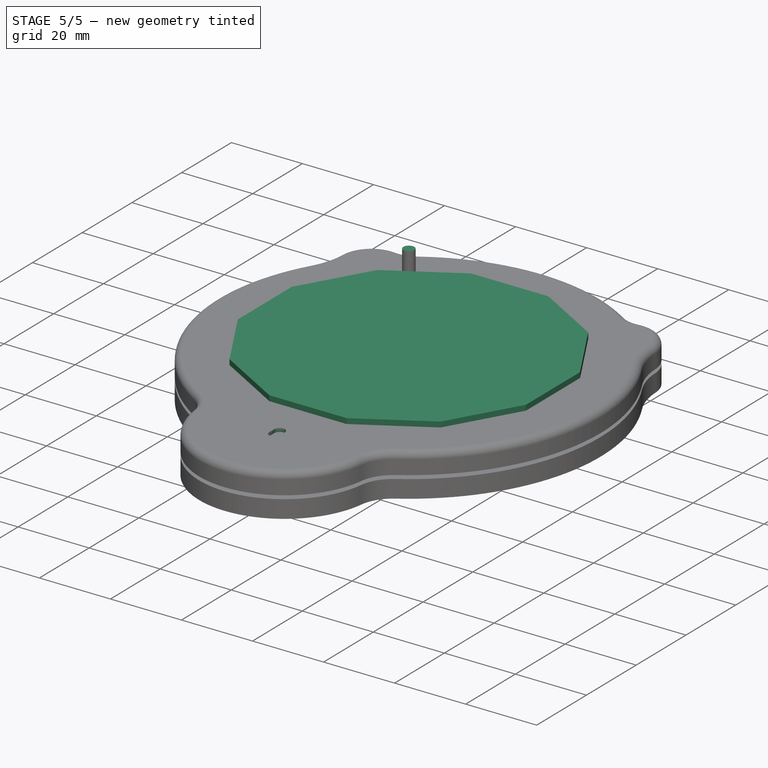
[diagram: stage 5 of 5 — iso view after this stage's code; geometry added in this stage tinted green]
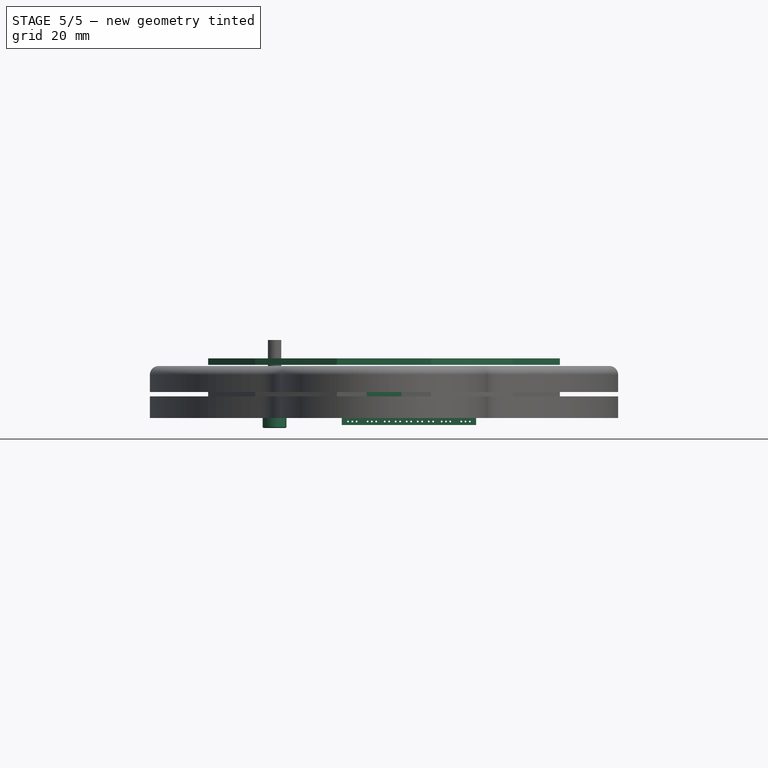
[diagram: stage 5 of 5 — front view after this stage's code; geometry added in this stage tinted green]
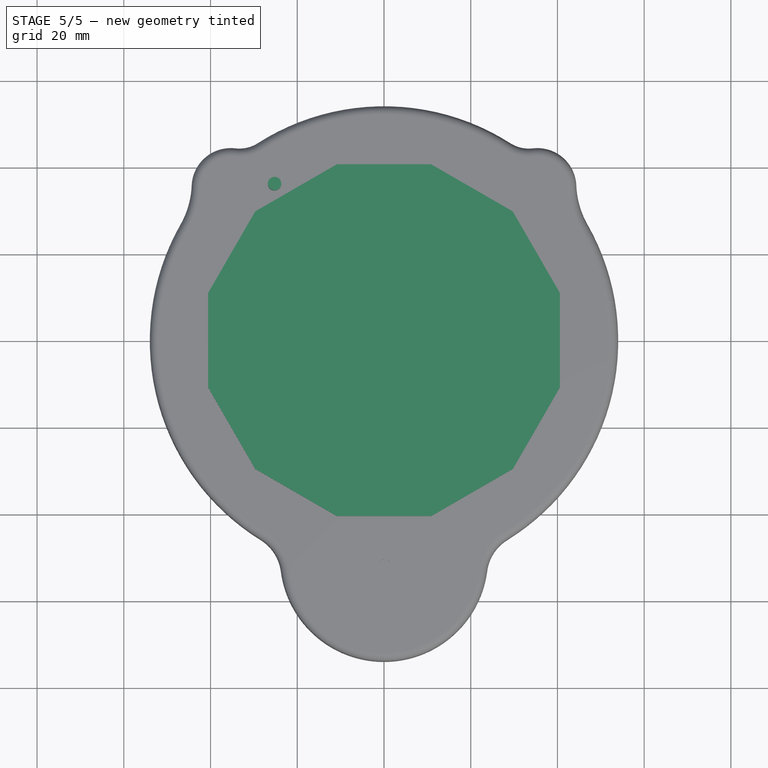
[diagram: stage 5 of 5 — top view after this stage's code; geometry added in this stage tinted green]
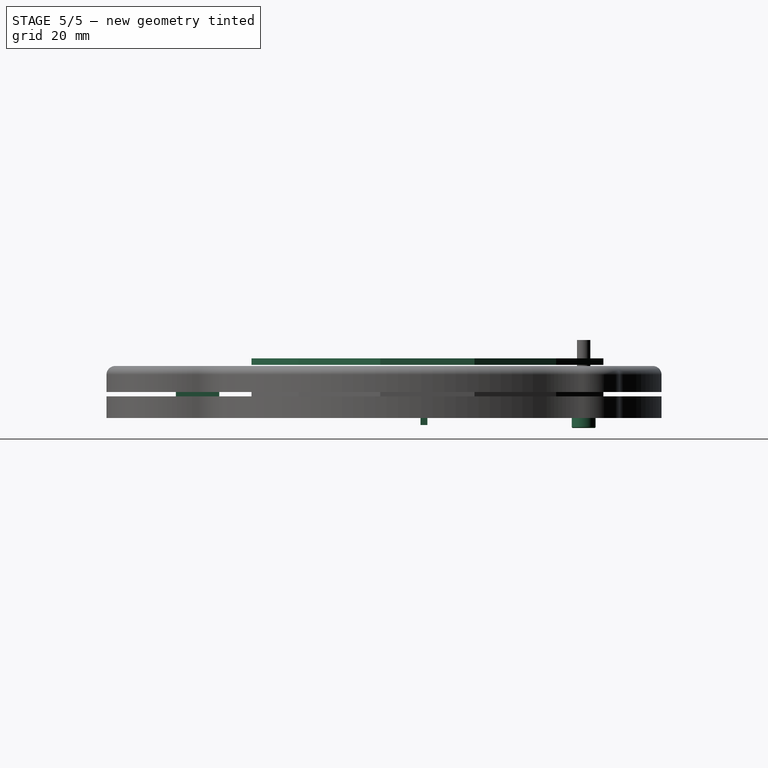
[diagram: stage 5 of 5 — right view after this stage's code; geometry added in this stage tinted green]
FEATURE [Sketcher::SketchObject] Sketch006  label="mounting_nut_Sketch"
  MapMode = 5
  Support = -> [XY_Plane001]
  expr: Constraints[23] = base_values.mounting_hole_angle
  expr: Constraints[22] = base_values.mounting_hole_radius
  sketch-geometry (9):
    g0: LineSegment StartX=-22.3594 StartY=34.7007 StartZ=0 EndX=-22.6362 EndY=37.864 EndZ=0
    g1: LineSegment StartX=-22.6362 StartY=37.864 StartZ=0 EndX=-25.5141 EndY=39.206 EndZ=0
    g2: LineSegment StartX=-25.5141 StartY=39.206 StartZ=0 EndX=-28.1153 EndY=37.3847 EndZ=0
    g3: LineSegment StartX=-28.1153 StartY=37.3847 StartZ=0 EndX=-27.8385 EndY=34.2213 EndZ=0
    g4: LineSegment StartX=-27.8385 StartY=34.2213 StartZ=0 EndX=-24.9606 EndY=32.8793 EndZ=0
    g5: LineSegment StartX=-24.9606 StartY=32.8793 StartZ=0 EndX=-22.3594 EndY=34.7007 EndZ=0
    g6: Circle [constr] CenterX=-25.2374 CenterY=36.0427 CenterZ=0 NormalX=0 NormalY=0 NormalZ=1 AngleXU=0 Radius=3.17543
    g7: LineSegment [constr] StartX=-25.5141 StartY=39.206 StartZ=0 EndX=-22.3594 EndY=34.7007 EndZ=0
    g8: LineSegment [constr] StartX=0 StartY=0 StartZ=0 EndX=-25.2374 EndY=36.0427 EndZ=0
  constraints (21):
    c: Coincident(g0,g1)
    c: Coincident(g1,g2)
    c: Coincident(g2,g3)
    c: Coincident(g3,g4)
    c: Coincident(g4,g5)
    c: Coincident(g5,g0)
    c: Equal(g0, g1-g5) x5
    c: PointOnObject(g0,g6)
    c: PointOnObject(g1,g6)
    c: PointOnObject(g2,g6)
    c: PointOnObject(g3,g6)
    c: PointOnObject(g4,g6)
    c: PointOnObject(g5,g6)
    c: Coincident(g7,g0)
    c: Distance(g7) = 5.5
    c: Coincident(g7,g1)
    c: Coincident(g6,g8)
    c: Perpendicular(g5,g8)
    c: Distance(g8) = 44
    c: Angle(g8,g-2) = -0.610865
    c: Coincident(g8,g-1)
FEATURE [Part::Feature] Part__Feature002  label="vl53l0x-time-of-flight-distance-sensor-carrier-with-voltage-regulator-200cm-max"
  Placement = pos=(-8.9,-46,9.25) rot=(0,0,-1;1.5708rad)
  shape: bbox 17.78 x 12.7 x 2.214 mm, 744 faces (baked)
FEATURE [Sketcher::SketchObject] Sketch009  label="bottom_tap_cutout_Sketch"
  MapMode = 5
  Support = -> [XY_Plane001]
  expr: Constraints[4] = base_values.pcb_radius + 4
  expr: Constraints[6] = base_values.bottom_tap_pos_radius
  expr: Constraints[5] = Spreadsheet.bottom_tap_radius - base_values.wall_thickness
  sketch-geometry (13):
    g0: LineSegment StartX=-19 StartY=-48 StartZ=0 EndX=19 EndY=-48 EndZ=0
    g1: LineSegment [constr] StartX=0 StartY=0 StartZ=0 EndX=0 EndY=-48 EndZ=0
    g2: ArcOfCircle CenterX=0 CenterY=-50 CenterZ=0 NormalX=0 NormalY=0 NormalZ=1 AngleXU=0 Radius=21 StartAngle=3.14159 EndAngle=6.28319
    g3: ArcOfCircle CenterX=-19 CenterY=-50 CenterZ=0 NormalX=0 NormalY=0 NormalZ=1 AngleXU=0 Radius=2 StartAngle=1.5708 EndAngle=3.14159
    g4: ArcOfCircle CenterX=19 CenterY=-50 CenterZ=0 NormalX=0 NormalY=0 NormalZ=1 AngleXU=0 Radius=2 StartAngle=-9e-16 EndAngle=1.5708
    g5: LineSegment [constr] StartX=-19 StartY=-48 StartZ=0 EndX=-19 EndY=-57 EndZ=0
    g6: LineSegment [constr] StartX=-19 StartY=-57 StartZ=0 EndX=-14 EndY=-65 EndZ=0
    g7: LineSegment [constr] StartX=14 StartY=-65 StartZ=0 EndX=19 EndY=-57 EndZ=0
    g8: LineSegment [constr] StartX=19 StartY=-57 StartZ=0 EndX=19 EndY=-48 EndZ=0
    g9: LineSegment [constr] StartX=-14 StartY=-65 StartZ=0 EndX=-5 EndY=-70 EndZ=0
    g10: LineSegment [constr] StartX=-5 StartY=-70 StartZ=0 EndX=5 EndY=-70 EndZ=0
    g11: LineSegment [constr] StartX=5 StartY=-70 StartZ=0 EndX=14 EndY=-65 EndZ=0
    g12: LineSegment [constr] StartX=-14 StartY=-65 StartZ=0 EndX=14 EndY=-65 EndZ=0
  constraints (36):
    c: Horizontal(g0)
    c: Coincident(g1,g-1)
    c: Vertical(g1)
    c: Symmetric(g0,g0,g1)
    c: DistanceY(g1,g1) = 48
    c: Radius(g2) = 21
    c: DistanceY(g2,g-1) = 50
    c: PointOnObject(g2,g-2)
    c: Tangent(g4,g0) = 1.5708
    c: Tangent(g4,g2) = -1.5708
    c: Tangent(g3,g2) = -1.5708
    c: Tangent(g3,g0) = 1.5708
    c: Radius(g3) = 2
    c: Coincident(g0,g5)
    c: Vertical(g5)
    c: Coincident(g5,g6)
    c: Coincident(g7,g8)
    c: Coincident(g8,g0)
    c: Vertical(g8)
    c: Equal(g7,g6)
    c: Equal(g5,g8)
    c: DistanceY(g8,g8) = 9
    c: Coincident(g6,g9)
    c: Coincident(g9,g10)
    c: Horizontal(g10)
    c: Coincident(g10,g11)
    c: Coincident(g11,g7)
    c: Equal(g11,g9)
    c: DistanceY(g10,g0) = 22
    c: DistanceY(g7,g0) = 17
    c: Coincident(g12,g6)
    c: Coincident(g12,g7)
    c: Horizontal(g12)
    c: DistanceX(g12,g12) = 28
    c: DistanceX(g0,g0) = 38
    c: DistanceX(g10,g10) = 10
FEATURE [Sketcher::SketchObject] Sketch010  label="sensor_fov_cutout_Sketch"
  MapMode = 5
  Support = -> [XY_Plane001]
  expr: Constraints[13] = base_values.sensor_radius
  sketch-geometry (6):
    g0: LineSegment [constr] StartX=0 StartY=0 StartZ=0 EndX=0 EndY=-53 EndZ=0
    g1: ArcOfCircle CenterX=-1e-16 CenterY=-52 CenterZ=0 NormalX=0 NormalY=0 NormalZ=1 AngleXU=0 Radius=1.5 StartAngle=-1.05231e-11 EndAngle=3.14159
    g2: ArcOfCircle CenterX=-1e-16 CenterY=-54 CenterZ=0 NormalX=0 NormalY=0 NormalZ=1 AngleXU=0 Radius=1.5 StartAngle=3.14159 EndAngle=6.28319
    g3: LineSegment StartX=-1.5 StartY=-52 StartZ=0 EndX=-1.5 EndY=-54 EndZ=0
    g4: LineSegment StartX=1.5 StartY=-52 StartZ=0 EndX=1.5 EndY=-54 EndZ=0
    g5: LineSegment [constr] StartX=5e-16 StartY=-50.5 StartZ=0 EndX=-5e-16 EndY=-55.5 EndZ=0
  constraints (14):
    c: Coincident(g0,g-1)
    c: Vertical(g0)
    c: Tangent(g1,g4) = 1.5708
    c: Tangent(g1,g3) = -1.5708
    c: Tangent(g3,g2) = -1.5708
    c: Tangent(g4,g2) = 1.5708
    c: Vertical(g3)
    c: Equal(g1,g2)
    c: DistanceX(g2,g2) = 3
    c: Perpendicular(g5,g2) = 1.5708
    c: Perpendicular(g5,g1) = 4.71239
    c: DistanceY(g5,g5) = 5
    c: Symmetric(g5,g5,g0)
    c: DistanceY(g0,g0) = 53
FEATURE [Sketcher::SketchObject] Sketch011  label="sensor_fov_window_cutout_Sketch"
  MapMode = 5
  Support = -> [XY_Plane001]
  expr: Constraints[12] = base_values.sensor_radius
  sketch-geometry (5):
    g0: LineSegment [constr] StartX=0 StartY=0 StartZ=0 EndX=0 EndY=-53 EndZ=0
    g1: LineSegment StartX=-4 StartY=-48 StartZ=0 EndX=4 EndY=-48 EndZ=0
    g2: LineSegment StartX=4 StartY=-48 StartZ=0 EndX=4 EndY=-58 EndZ=0
    g3: LineSegment StartX=4 StartY=-58 StartZ=0 EndX=-4 EndY=-58 EndZ=0
    g4: LineSegment StartX=-4 StartY=-58 StartZ=0 EndX=-4 EndY=-48 EndZ=0
  constraints (14):
    c: Coincident(g0,g-1)
    c: Vertical(g0)
    c: Coincident(g1,g2)
    c: Coincident(g2,g3)
    c: Coincident(g3,g4)
    c: Coincident(g4,g1)
    c: Horizontal(g1)
    c: Horizontal(g3)
    c: Vertical(g2)
    c: Vertical(g4)
    c: DistanceX(g3,g3) = 8
    c: DistanceY(g2,g2) = 10
    c: DistanceY(g0,g0) = 53
    c: Symmetric(g3,g1,g0)
FEATURE [PartDesign::Pad] Pad005
  Length = 1.5
  Length2 = 100
  Profile = -> Sketch011
  Reversed = true
  Type = 0
FEATURE [PartDesign::Body] Body006  label="plexiglas_sensor_fov_window_Body"
  Group = -> [Pad005]
  Origin = -> Origin010
  Placement = pos=(0,0,13) rot=(0,0,1;0rad)
  Tip = -> Pad005
FEATURE [Sketcher::SketchObject] Sketch012  label="rope_in_cutout_Sketch"
  MapMode = 5
  Support = -> [XY_Plane001]
  sketch-geometry (5):
    g0: LineSegment StartX=-39 StartY=51 StartZ=0 EndX=-33 EndY=51 EndZ=0
    g1: LineSegment StartX=-33 StartY=51 StartZ=0 EndX=-33 EndY=36 EndZ=0
    g2: LineSegment [constr] StartX=-33 StartY=36 StartZ=0 EndX=-39 EndY=36 EndZ=0
    g3: LineSegment StartX=-39 StartY=36 StartZ=0 EndX=-39 EndY=51 EndZ=0
    g4: ArcOfCircle CenterX=-36 CenterY=36 CenterZ=0 NormalX=0 NormalY=0 NormalZ=1 AngleXU=0 Radius=3 StartAngle=3.14159 EndAngle=6.28319
  constraints (13):
    c: Coincident(g0,g3)
    c: Coincident(g0,g1)
    c: Coincident(g2,g3)
    c: Coincident(g1,g2)
    c: Perpendicular(g3,g0)
    c: Distance(g0) = 6
    c: Perpendicular(g0,g1)
    c: Tangent(g4,g1) = 1.5708
    c: Tangent(g4,g3) = 1.5708
    c: Vertical(g1)
    c: Distance(g3) = 15
    c: DistanceX(g4) = -36
    c: DistanceY(g4) = 36
FEATURE [TechDraw::DrawSVGTemplate] Template
  Height = 210
  Orientation = 1
  Width = 297
FEATURE [TechDraw::DrawSVGTemplate] Template001 .. Template005  x5 (patterned run collapsed; names and placements below)
  Height = 210
  Orientation = 1
  Width = 297
FEATURE [TechDraw::DrawViewPart] View005
  CoarseView = false
  Direction = (0,0,1)
  Focus = 100
  HardHidden = false
  IsoCount = 0
  IsoHidden = false
  IsoVisible = false
  LockPosition = false
  Perspective = false
  Rotation = 0
  ScaleType = 0
  SeamHidden = false
  SeamVisible = false
  SmoothHidden = false
  SmoothVisible = false
  Source = -> [Body006]
  X = 148.5
  Y = 105
FEATURE [TechDraw::DrawPage] Page005  label="plexiglas_sensor_fov_window_Page"
  KeepUpdated = true
  ProjectionType = 0
  Template = -> Template005
  Views = -> [View005]
FEATURE [Sketcher::SketchObject] Sketch015  label="test_12eck_Sketch"
  MapMode = 5
  Support = -> [XY_Plane001]
  sketch-geometry (13):
    g0: LineSegment StartX=23.6881 StartY=23.6881 StartZ=0 EndX=8.67044 EndY=32.3585 EndZ=0
    g1: LineSegment StartX=8.67044 StartY=32.3585 StartZ=0 EndX=-8.67044 EndY=32.3585 EndZ=0
    g2: LineSegment StartX=-8.67044 StartY=32.3585 StartZ=0 EndX=-23.6881 EndY=23.6881 EndZ=0
    g3: LineSegment StartX=-23.6881 StartY=23.6881 StartZ=0 EndX=-32.3585 EndY=8.67044 EndZ=0
    g4: LineSegment StartX=-32.3585 StartY=8.67044 StartZ=0 EndX=-32.3585 EndY=-8.67044 EndZ=0
    g5: LineSegment StartX=-32.3585 StartY=-8.67044 StartZ=0 EndX=-23.6881 EndY=-23.6881 EndZ=0
    g6: LineSegment StartX=-23.6881 StartY=-23.6881 StartZ=0 EndX=-8.67044 EndY=-32.3585 EndZ=0
    g7: LineSegment StartX=-8.67044 StartY=-32.3585 StartZ=0 EndX=8.67044 EndY=-32.3585 EndZ=0
    g8: LineSegment StartX=8.67044 StartY=-32.3585 StartZ=0 EndX=23.6881 EndY=-23.6881 EndZ=0
    g9: LineSegment StartX=23.6881 StartY=-23.6881 StartZ=0 EndX=32.3585 EndY=-8.67044 EndZ=0
    g10: LineSegment StartX=32.3585 StartY=-8.67044 StartZ=0 EndX=32.3585 EndY=8.67044 EndZ=0
    g11: LineSegment StartX=32.3585 StartY=8.67044 StartZ=0 EndX=23.6881 EndY=23.6881 EndZ=0
    g12: Circle [constr] CenterX=0 CenterY=0 CenterZ=0 NormalX=0 NormalY=0 NormalZ=1 AngleXU=0 Radius=33.5
  constraints (29):
    c: Coincident(g0,g1)
    c: Coincident(g1,g2)
    c: Coincident(g2,g3)
    c: Coincident(g3,g4)
    c: Coincident(g4,g5)
    c: Coincident(g5,g6)
    c: Coincident(g6,g7)
    c: Coincident(g7,g8)
    c: Coincident(g8,g9)
    c: Coincident(g9,g10)
    c: Coincident(g10,g11)
    c: Coincident(g11,g0)
    c: Equal(g0, g1-g11) x11
    c: PointOnObject(g0,g12)
    c: PointOnObject(g1,g12)
    c: PointOnObject(g2,g12)
    c: PointOnObject(g3,g12)
    c: PointOnObject(g4,g12)
    c: PointOnObject(g5,g12)
    c: PointOnObject(g6,g12)
    c: PointOnObject(g7,g12)
    c: PointOnObject(g8,g12)
    c: PointOnObject(g9,g12)
    c: PointOnObject(g10,g12)
    c: PointOnObject(g11,g12)
    c: Radius(g12) = 33.5
    c: Horizontal(g1)
    c: Coincident(g12,g-1)
    c: Distance(g10) = 17.3409
FEATURE [Sketcher::SketchObject] Sketch016  label="electronic_pocket_Sketch"
  MapMode = 5
  Support = -> [XY_Plane001]
  expr: Constraints[39] = base_values.inner_cutout_diameter / 2
  expr: Constraints[37] = base_values.plexiglas_max_diameter / 2
  sketch-geometry (14):
    g0: LineSegment StartX=29.6985 StartY=-29.6985 StartZ=0 EndX=40.5689 EndY=-10.8704 EndZ=0
    g1: LineSegment StartX=40.5689 StartY=-10.8704 StartZ=0 EndX=40.5689 EndY=10.8704 EndZ=0
    g2: LineSegment StartX=40.5689 StartY=10.8704 StartZ=0 EndX=29.6985 EndY=29.6985 EndZ=0
    g3: LineSegment StartX=29.6985 StartY=29.6985 StartZ=0 EndX=10.8704 EndY=40.5689 EndZ=0
    g4: LineSegment StartX=10.8704 StartY=40.5689 StartZ=0 EndX=-10.8704 EndY=40.5689 EndZ=0
    g5: LineSegment StartX=-10.8704 StartY=40.5689 StartZ=0 EndX=-29.6985 EndY=29.6985 EndZ=0
    g6: LineSegment StartX=-29.6985 StartY=29.6985 StartZ=0 EndX=-40.5689 EndY=10.8704 EndZ=0
    g7: LineSegment StartX=-40.5689 StartY=10.8704 StartZ=0 EndX=-40.5689 EndY=-10.8704 EndZ=0
    g8: LineSegment StartX=-40.5689 StartY=-10.8704 StartZ=0 EndX=-29.6985 EndY=-29.6985 EndZ=0
    g9: LineSegment StartX=-29.6985 StartY=-29.6985 StartZ=0 EndX=-10.8704 EndY=-40.5689 EndZ=0
    g10: LineSegment StartX=-10.8704 StartY=-40.5689 StartZ=0 EndX=10.8704 EndY=-40.5689 EndZ=0
    g11: LineSegment StartX=10.8704 StartY=-40.5689 StartZ=0 EndX=29.6985 EndY=-29.6985 EndZ=0
    g12: Circle [constr] CenterX=0 CenterY=0 CenterZ=0 NormalX=0 NormalY=0 NormalZ=1 AngleXU=0 Radius=42
    g13: Circle CenterX=0 CenterY=0 CenterZ=0 NormalX=0 NormalY=0 NormalZ=1 AngleXU=0 Radius=51
  constraints (30):
    c: Coincident(g0,g1)
    c: Coincident(g1,g2)
    c: Coincident(g2,g3)
    c: Coincident(g3,g4)
    c: Coincident(g4,g5)
    c: Coincident(g5,g6)
    c: Coincident(g6,g7)
    c: Coincident(g7,g8)
    c: Coincident(g8,g9)
    c: Coincident(g9,g10)
    c: Coincident(g10,g11)
    c: Coincident(g11,g0)
    c: Equal(g0, g1-g11) x11
    c: PointOnObject(g0,g12)
    c: PointOnObject(g1,g12)
    c: PointOnObject(g2,g12)
    c: PointOnObject(g3,g12)
    c: PointOnObject(g4,g12)
    c: PointOnObject(g5,g12)
    c: PointOnObject(g6,g12)
    c: PointOnObject(g7,g12)
    c: PointOnObject(g8,g12)
    c: PointOnObject(g9,g12)
    c: PointOnObject(g10,g12)
    c: PointOnObject(g11,g12)
    c: Coincident(g12,g-1)
    c: Horizontal(g4)
    c: Radius(g12) = 42
    c: Coincident(g13,g-1)
    c: Radius(g13) = 51
FEATURE [Sketcher::SketchObject] Sketch017
  MapMode = 5
  Support = -> [XY_Plane017]
  sketch-geometry (16):
    g0: LineSegment StartX=11 StartY=-41.0526 StartZ=0 EndX=30.0526 EndY=-30.0526 EndZ=0
    g1: LineSegment StartX=30.0526 StartY=-30.0526 StartZ=0 EndX=41.0526 EndY=-11 EndZ=0
    g2: LineSegment StartX=41.0526 StartY=-11 StartZ=0 EndX=41.0526 EndY=11 EndZ=0
    g3: LineSegment StartX=41.0526 StartY=11 StartZ=0 EndX=30.0526 EndY=30.0526 EndZ=0
    g4: LineSegment StartX=30.0526 StartY=30.0526 StartZ=0 EndX=11 EndY=41.0526 EndZ=0
    g5: LineSegment StartX=11 StartY=41.0526 StartZ=0 EndX=-11 EndY=41.0526 EndZ=0
    g6: LineSegment StartX=-11 StartY=41.0526 StartZ=0 EndX=-30.0526 EndY=30.0526 EndZ=0
    g7: LineSegment StartX=-30.0526 StartY=30.0526 StartZ=0 EndX=-41.0526 EndY=11 EndZ=0
    g8: LineSegment StartX=-41.0526 StartY=11 StartZ=0 EndX=-41.0526 EndY=-11 EndZ=0
    g9: LineSegment StartX=-41.0526 StartY=-11 StartZ=0 EndX=-30.0526 EndY=-30.0526 EndZ=0
    g10: LineSegment StartX=-30.0526 StartY=-30.0526 StartZ=0 EndX=-11 EndY=-41.0526 EndZ=0
    g11: LineSegment StartX=-11 StartY=-41.0526 StartZ=0 EndX=11 EndY=-41.0526 EndZ=0
    g12: Circle [constr] CenterX=0 CenterY=0 CenterZ=0 NormalX=0 NormalY=0 NormalZ=1 AngleXU=0 Radius=42.5007
    g13: Circle CenterX=0 CenterY=0 CenterZ=0 NormalX=0 NormalY=0 NormalZ=1 AngleXU=0 Radius=52.5
    g14: Circle CenterX=0 CenterY=0 CenterZ=0 NormalX=0 NormalY=0 NormalZ=1 AngleXU=0 Radius=50
    g15: LineSegment StartX=20.5263 StartY=-35.5526 StartZ=0 EndX=25 EndY=-43.3013 EndZ=0
  constraints (37):
    c: Coincident(g0,g1)
    c: Coincident(g1,g2)
    c: Coincident(g2,g3)
    c: Coincident(g3,g4)
    c: Coincident(g4,g5)
    c: Coincident(g5,g6)
    c: Coincident(g6,g7)
    c: Coincident(g7,g8)
    c: Coincident(g8,g9)
    c: Coincident(g9,g10)
    c: Coincident(g10,g11)
    c: Coincident(g11,g0)
    c: Equal(g0, g1-g11) x11
    c: PointOnObject(g0,g12)
    c: PointOnObject(g1,g12)
    c: PointOnObject(g2,g12)
    c: PointOnObject(g3,g12)
    c: PointOnObject(g4,g12)
    c: PointOnObject(g5,g12)
    c: PointOnObject(g6,g12)
    c: PointOnObject(g7,g12)
    c: PointOnObject(g8,g12)
    c: PointOnObject(g9,g12)
    c: PointOnObject(g10,g12)
    c: PointOnObject(g11,g12)
    c: Coincident(g12,g-1)
    c: Horizontal(g11)
    c: DistanceX(g11,g11) = 22
    c: Diameter(g12) = 85.0015
    c: Coincident(g13,g-1)
    c: Diameter(g13) = 105
    c: Coincident(g14,g13)
    c: Radius(g14) = 50
    c: Symmetric(g0,g0,g15)
    c: Perpendicular(g0,g15)
    c: PointOnObject(g15,g14)
    c: Distance(g15) = 8.94744
FEATURE [PartDesign::Body] Body009  label="sketch_body"
  Group = -> [Sketch017]
  Origin = -> Origin017
FEATURE [Part::Feature] COMPOUND176_copy_mp_cp001  label="LEDBoard_4x4_HD_sp"
  Placement = pos=(0,0,0) rot=(0,1,0;3.14159rad)
  shape: bbox 33 x 2.65 x 13.6 mm, 1697 faces, 167 solids (baked)
FEATURE [PartDesign::FeatureBase] Clone014
  BaseFeature = -> COMPOUND176_copy_mp_cp001
FEATURE [PartDesign::Body] Body010
  BaseFeature = -> COMPOUND176_copy_mp_cp001
  Group = -> [Clone014]
  Origin = -> Origin026
  Placement = pos=(0,44,0) rot=(0,1,0;3.14159rad)
  Tip = -> Clone014
  expr: Placement.Base.y = base_values.pcb_radius
FEATURE [App::Part] Part004  label="Clone_1"
  Group = -> [Body010]
  License = CC BY 3.0
  LicenseURL = http://creativecommons.org/licenses/by/3.0/
  Origin = -> Origin020
  Placement = pos=(0,0,0) rot=(0,0,1;1.0472rad)
FEATURE [PartDesign::FeatureBase] Clone015
  BaseFeature = -> COMPOUND176_copy_mp_cp001
FEATURE [PartDesign::Body] Body011
  BaseFeature = -> COMPOUND176_copy_mp_cp001
  Group = -> [Clone015]
  Origin = -> Origin027
  Placement = pos=(0,44,0) rot=(0,1,0;3.14159rad)
  Tip = -> Clone015
  expr: Placement.Base.y = base_values.pcb_radius
FEATURE [App::Part] Part005  label="Clone_2"
  Group = -> [Body011]
  License = CC BY 3.0
  LicenseURL = http://creativecommons.org/licenses/by/3.0/
  Origin = -> Origin021
  Placement = pos=(0,0,0) rot=(0,0,1;2.0944rad)
FEATURE [App::Part] Part009  label="Orig_0"
  Group = -> [COMPOUND176_copy_mp_cp001]
  License = CC BY 3.0
  LicenseURL = http://creativecommons.org/licenses/by/3.0/
  Origin = -> Origin028
  Placement = pos=(0,44,0) rot=(0,0,1;0rad)
  expr: Placement.Base.y = base_values.pcb_radius
FEATURE [PartDesign::FeatureBase] Clone016
  BaseFeature = -> COMPOUND176_copy_mp_cp001
FEATURE [PartDesign::Body] Body012
  BaseFeature = -> COMPOUND176_copy_mp_cp001
  Group = -> [Clone016]
  Origin = -> Origin029
  Placement = pos=(0,44,0) rot=(0,1,0;3.14159rad)
  Tip = -> Clone016
  expr: Placement.Base.y = base_values.pcb_radius
FEATURE [App::Part] Part006  label="Clone_3"
  Group = -> [Body012]
  License = CC BY 3.0
  LicenseURL = http://creativecommons.org/licenses/by/3.0/
  Origin = -> Origin023
  Placement = pos=(0,0,0) rot=(0,0,1;3.14159rad)
FEATURE [PartDesign::FeatureBase] Clone017
  BaseFeature = -> COMPOUND176_copy_mp_cp001
FEATURE [PartDesign::Body] Body013
  BaseFeature = -> COMPOUND176_copy_mp_cp001
  Group = -> [Clone017]
  Origin = -> Origin030
  Placement = pos=(0,44,0) rot=(0,1,0;3.14159rad)
  Tip = -> Clone017
  expr: Placement.Base.y = base_values.pcb_radius
FEATURE [App::Part] Part007  label="Clone_4"
  Group = -> [Body013]
  License = CC BY 3.0
  LicenseURL = http://creativecommons.org/licenses/by/3.0/
  Origin = -> Origin024
  Placement = pos=(0,0,0) rot=(0,0,1;4.18879rad)
FEATURE [PartDesign::FeatureBase] Clone018
  BaseFeature = -> COMPOUND176_copy_mp_cp001
FEATURE [PartDesign::Pad] Pad006
  Length = 1.5
  Length2 = 100
  Midplane = true
  Profile = -> Sketch002
  Type = 0
  expr: Length = base_values.plexiglas_thickness
FEATURE [PartDesign::Body] Body005  label="plexiglas_Body"
  Group = -> [Pad006]
  Origin = -> Origin008
  Placement = pos=(0,0,1) rot=(0,0,1;0rad)
  Tip = -> Pad006
FEATURE [PartDesign::FeatureBase] Clone  label="plexiglas_L1_Clone"
  BaseFeature = -> Body005
  Placement = pos=(0,0,7) rot=(0,0,1;0rad)
FEATURE [PartDesign::FeatureBase] Clone009  label="plexiglas_L2_Clone"
  BaseFeature = -> Body005
  Placement = pos=(0,0,5) rot=(0,0,1;0rad)
FEATURE [TechDraw::DrawViewPart] View004
  CoarseView = false
  Direction = (0,0,1)
  Focus = 100
  HardHidden = false
  IsoCount = 0
  IsoHidden = false
  IsoVisible = false
  LockPosition = false
  Perspective = false
  Rotation = 0
  ScaleType = 0
  SeamHidden = false
  SeamVisible = false
  SmoothHidden = false
  SmoothVisible = false
  Source = -> [Body005]
  X = 148.5
  Y = 105
FEATURE [TechDraw::DrawPage] Page004  label="plexiglas_Page"
  KeepUpdated = true
  ProjectionType = 0
  Template = -> Template004
  Views = -> [View004]
FEATURE [PartDesign::FeatureBase] Clone013  label="plexiglas_L3_Clone"
  BaseFeature = -> Body005
  Placement = pos=(0,0,3) rot=(0,0,1;0rad)
FEATURE [PartDesign::Body] Body015  label="layer_separator_body"
  Group = -> [Pad007]
  Origin = -> Origin034
  Tip = -> Pad007
FEATURE [PartDesign::FeatureBase] Clone019
  BaseFeature = -> Body015
FEATURE [PartDesign::Body] Body016  label="layer_separator_L1_L2_Body"
  BaseFeature = -> Body015
  Group = -> [Clone019]
  Origin = -> Origin035
  Placement = pos=(0,0,6) rot=(0,0,1;0rad)
  Tip = -> Clone019
FEATURE [PartDesign::FeatureBase] Clone020
  BaseFeature = -> Body015
FEATURE [PartDesign::Body] Body017  label="layer_separator_L2_L3_Body"
  BaseFeature = -> Body015
  Group = -> [Clone020]
  Origin = -> Origin036
  Placement = pos=(0,0,4) rot=(0,0,1;0rad)
  Tip = -> Clone020
FEATURE [PartDesign::FeatureBase] Clone021
  BaseFeature = -> Body015
FEATURE [PartDesign::Body] Body018  label="layer_separator_L3_L4_Body"
  BaseFeature = -> Body015
  Group = -> [Clone021]
  Origin = -> Origin037
  Placement = pos=(0,0,2) rot=(0,0,1;0rad)
  Tip = -> Clone021
FEATURE [PartDesign::FeatureBase] Clone022
  BaseFeature = -> Body015
FEATURE [PartDesign::Pocket] Pocket039
  BaseFeature = -> PolarPattern014
  Length = 4
  Length2 = 100
  Profile = -> Sketch025
  Reversed = true
  Type = 0
FEATURE [PartDesign::PolarPattern] PolarPattern013
  Angle = 360
  Axis = -> Sketch025 [N_Axis]
  BaseFeature = -> Pocket039
  Occurrences = 6
  Originals = -> [Pocket039]
FEATURE [PartDesign::Pocket] Pocket032
  BaseFeature = -> PolarPattern013
  Length = 4
  Length2 = 100
  Profile = -> Sketch022
  Reversed = true
  Type = 0
FEATURE [PartDesign::Pocket] Pocket029
  BaseFeature = -> Pocket032
  Length = 1
  Length2 = 100
  Profile = -> Sketch021
  Reversed = true
  Type = 0
FEATURE [PartDesign::Pad] Pad011
  Length = 2.4
  Length2 = 100
  Profile = -> Sketch006
  Type = 0
FEATURE [PartDesign::Pocket] Pocket040
  BaseFeature = -> Pad011
  Length = 5
  Length2 = 100
  Profile = -> Sketch004
  Reversed = true
  Type = 1
FEATURE [PartDesign::Body] Body023  label="Nut_Body023"
  Group = -> [Pad011,Pocket040]
  Origin = -> Origin045
  Placement = pos=(0,0,10.1) rot=(0,0,1;0rad)
  Tip = -> Pocket040
FEATURE [PartDesign::Pad] Pad012
  Length = 12
  Length2 = 6
  Profile = -> Sketch004
  Type = 4
FEATURE [Sketcher::SketchObject] Sketch026
  ExternalGeometry = -> [Pad012]
  MapMode = 5
  Placement = pos=(0,0,-6) rot=(1,0,0;3.14159rad)
  Support = -> [Pad012]
  sketch-geometry (1):
    g0: Circle CenterX=-25.2374 CenterY=-36.0427 CenterZ=0 NormalX=0 NormalY=0 NormalZ=1 AngleXU=0 Radius=2.75
  constraints (2):
    c: Coincident(g0,g-3)
    c: Radius(g0) = 2.75
FEATURE [PartDesign::Pad] Pad013
  BaseFeature = -> Pad012
  Length = 2.3
  Length2 = 100
  Profile = -> Sketch026
  Type = 0
FEATURE [Sketcher::SketchObject] Sketch027
  ExternalGeometry = -> [Pad013]
  MapMode = 5
  Placement = pos=(0,0,-8.3) rot=(1,0,0;3.14159rad)
  Support = -> [Pad013]
  sketch-geometry (7):
    g0: LineSegment StartX=-24.3713 StartY=-36.5427 StartZ=0 EndX=-24.3713 EndY=-35.5427 EndZ=0
    g1: LineSegment StartX=-24.3713 StartY=-35.5427 StartZ=0 EndX=-25.2374 EndY=-35.0427 EndZ=0
    g2: LineSegment StartX=-25.2374 StartY=-35.0427 StartZ=0 EndX=-26.1034 EndY=-35.5427 EndZ=0
    g3: LineSegment StartX=-26.1034 StartY=-35.5427 StartZ=0 EndX=-26.1034 EndY=-36.5427 EndZ=0
    g4: LineSegment StartX=-26.1034 StartY=-36.5427 StartZ=0 EndX=-25.2374 EndY=-37.0427 EndZ=0
    g5: LineSegment StartX=-25.2374 StartY=-37.0427 StartZ=0 EndX=-24.3713 EndY=-36.5427 EndZ=0
    g6: Circle [constr] CenterX=-25.2374 CenterY=-36.0427 CenterZ=0 NormalX=0 NormalY=0 NormalZ=1 AngleXU=0 Radius=1
  constraints (16):
    c: Coincident(g0,g1)
    c: Coincident(g1,g2)
    c: Coincident(g2,g3)
    c: Coincident(g3,g4)
    c: Coincident(g4,g5)
    c: Coincident(g5,g0)
    c: Equal(g0, g1-g5) x5
    c: PointOnObject(g0,g6)
    c: PointOnObject(g1,g6)
    c: PointOnObject(g2,g6)
    c: PointOnObject(g3,g6)
    c: PointOnObject(g4,g6)
    c: PointOnObject(g5,g6)
    c: Coincident(g6,g-3)
    c: Vertical(g0)
    c: Radius(g6) = 1
FEATURE [PartDesign::Pocket] Pocket041
  BaseFeature = -> Pad013
  Length = 1.7
  Length2 = 100
  Profile = -> Sketch027
  Type = 0
FEATURE [PartDesign::Fillet] Fillet001
  Base = -> Pocket041 [Edge3]
  BaseFeature = -> Pocket041
  Radius = 0.3
FEATURE [PartDesign::Body] Body024  label="Screw_Body024"
  Group = -> [Pad012,Sketch026,Pad013,Sketch027,Pocket041,Fillet001]
  Origin = -> Origin046
  Tip = -> Fillet001
FEATURE [App::Part] Part013  label="Screw_And_Nut"
  Group = -> [Body023,Body024]
  Origin = -> Origin044
FEATURE [PartDesign::Pocket] Pocket042
  BaseFeature = -> Pocket029
  Length = 5
  Length2 = 100
  Profile = -> Sketch010
  Reversed = true
  Type = 1
FEATURE [PartDesign::Pocket] Pocket043
  BaseFeature = -> Pocket042
  Length = 5
  Length2 = 100
  Offset = -1
  Profile = -> Sketch011
  Reversed = true
  Type = 0
FEATURE [Sketcher::SketchObject] Sketch029  label="sensor_pcb_cutout_Sketch"
  MapMode = 5
  Support = -> [XY_Plane001]
  expr: Constraints[2] = base_values.sensor_radius
  sketch-geometry (5):
    g0: LineSegment [constr] StartX=0 StartY=0 StartZ=0 EndX=0 EndY=-53 EndZ=0
    g1: LineSegment StartX=-10 StartY=-48 StartZ=0 EndX=10 EndY=-48 EndZ=0
    g2: LineSegment StartX=10 StartY=-48 StartZ=0 EndX=10 EndY=-58 EndZ=0
    g3: LineSegment StartX=10 StartY=-58 StartZ=0 EndX=-10 EndY=-58 EndZ=0
    g4: LineSegment StartX=-10 StartY=-58 StartZ=0 EndX=-10 EndY=-48 EndZ=0
  constraints (14):
    c: Coincident(g0,g-1)
    c: Vertical(g0)
    c: DistanceY(g0,g0) = 53
    c: Coincident(g1,g2)
    c: Coincident(g2,g3)
    c: Coincident(g3,g4)
    c: Coincident(g4,g1)
    c: Horizontal(g1)
    c: Horizontal(g3)
    c: Vertical(g2)
    c: Vertical(g4)
    c: Symmetric(g3,g1,g0)
    c: DistanceX(g1,g1) = 20
    c: DistanceY(g2,g2) = 10
FEATURE [PartDesign::Pocket] Pocket048
  BaseFeature = -> Pocket043
  Length = 3.5
  Length2 = 100
  Profile = -> Sketch029
  Reversed = true
  Type = 0
FEATURE [PartDesign::Pocket] Pocket047
  BaseFeature = -> Pocket048
  Length = 2
  Length2 = 100
  Profile = -> Sketch028
  Refine = true
  Reversed = true
  Type = 0
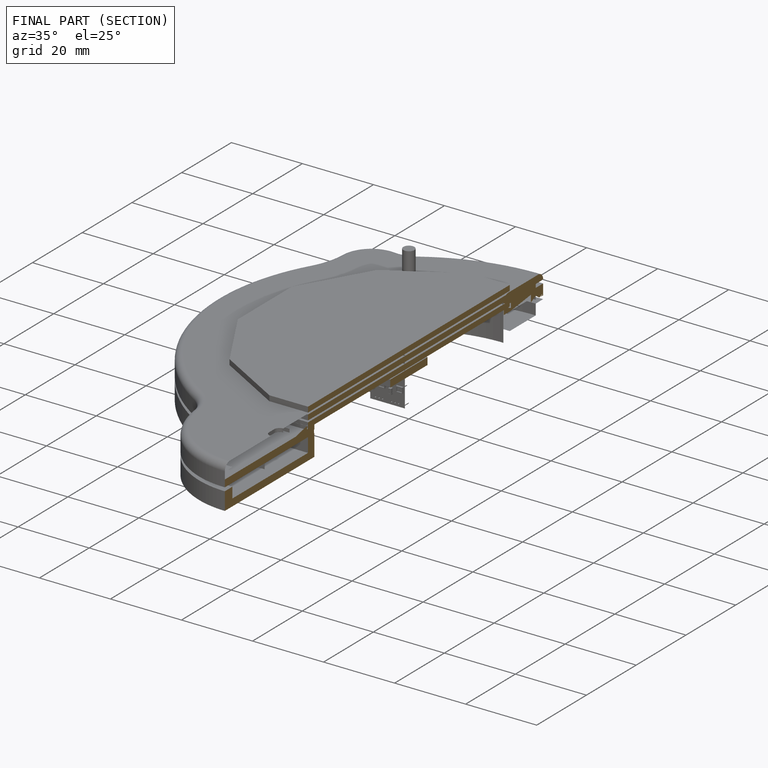
[diagram: finished part — half-section view (interior)]
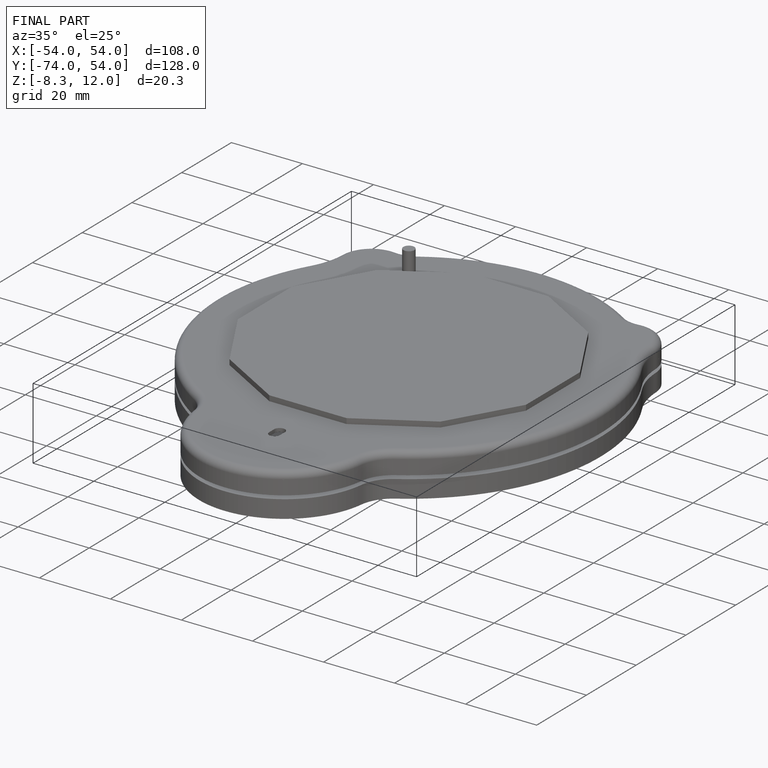
[diagram: finished part — iso view with bounding-box wireframe]
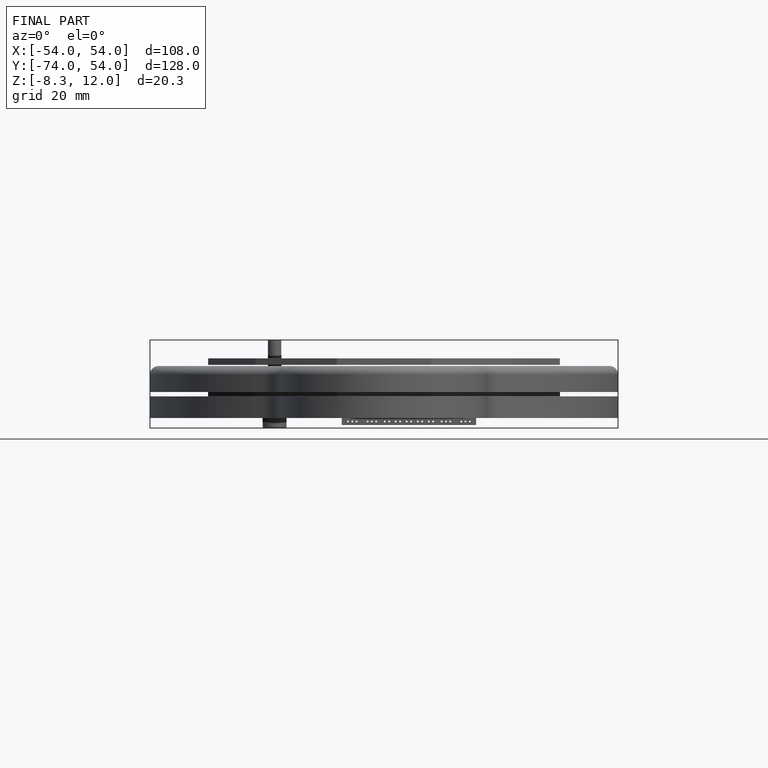
[diagram: finished part — front view with bounding-box wireframe]
